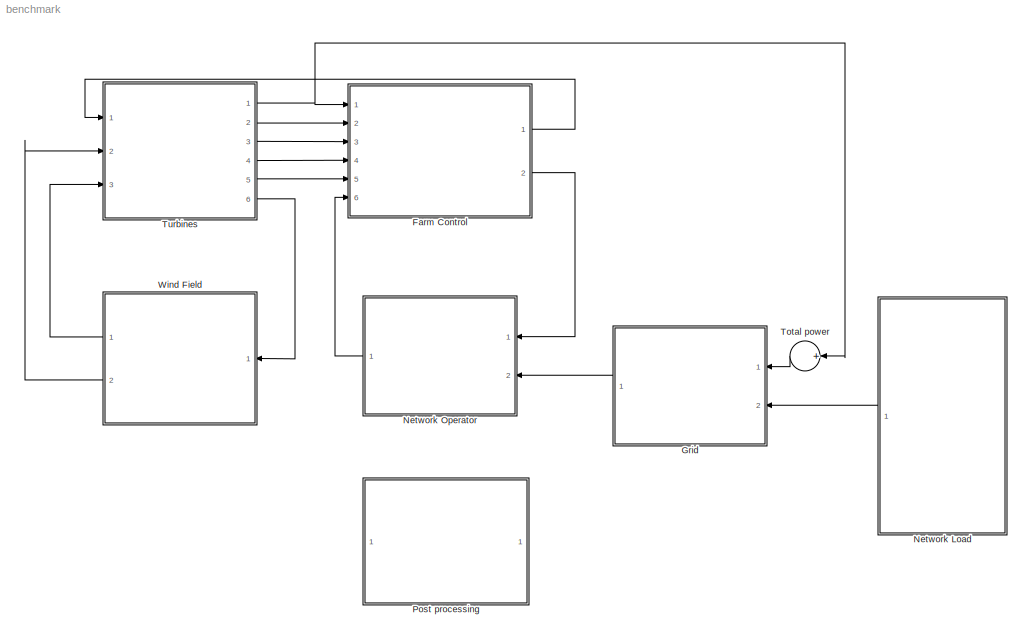
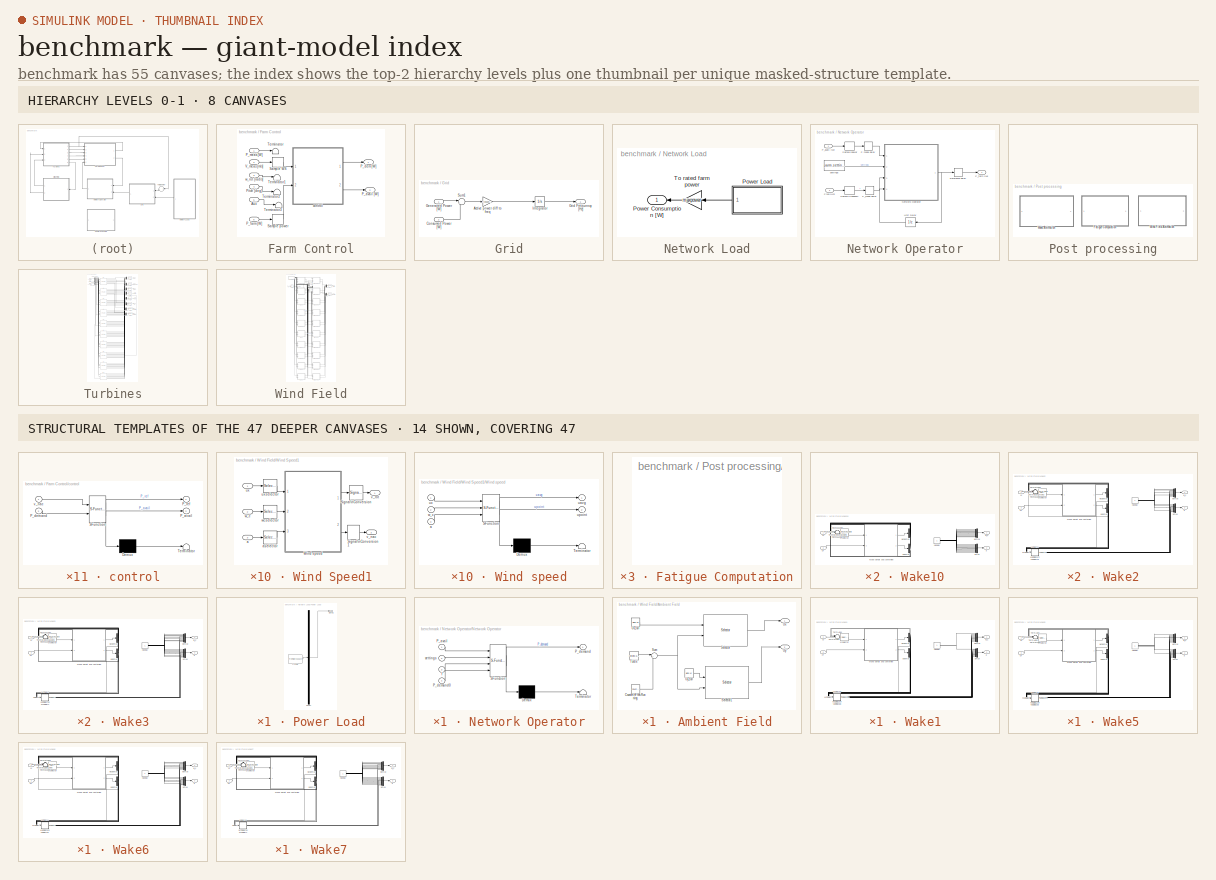
[diagram: thumbnail index - top-2 hierarchy levels (8 canvases) + 14 structural-template representatives of the remaining 47 canvases]
MODEL benchmark
KIND model
BLOCK [SubSystem] Farm Control
  Ports = [6, 2]
  RequestExecContextInheritance = off
  SID = 2
  UserData = DataTag0
  UserDataPersistent = on
BLOCK [Inport] Farm Control/ Aux
  IconDisplay = Port number
  Port = 5
  SID = 7
BLOCK [Outport] Farm Control/P_avail [W]
  IconDisplay = Port number
  Port = 2
  SID = 17
BLOCK [Outport] Farm Control/P_dem [W]
  IconDisplay = Port number
  SID = 16
BLOCK [Inport] Farm Control/P_farm [W]
  IconDisplay = Port number
  Port = 6
  SID = 8
BLOCK [Inport] Farm Control/P_meas [W]
  IconDisplay = Port number
  SID = 3
BLOCK [Inport] Farm Control/Pitch [deg]
  IconDisplay = Port number
  Port = 4
  SID = 6
BLOCK [ZeroOrderHold] Farm Control/Sample WS
  SID = 9
  SampleTime = CTs
BLOCK [ZeroOrderHold] Farm Control/Sample power
  SID = 10
  SampleTime = CTs
BLOCK [Terminator] Farm Control/Terminator
  SID = 11
BLOCK [Terminator] Farm Control/Terminator1
  SID = 12
BLOCK [Terminator] Farm Control/Terminator2
  SID = 13
BLOCK [Terminator] Farm Control/Terminator3
  SID = 14
BLOCK [Inport] Farm Control/V_meas [m//s]
  IconDisplay = Port number
  Port = 2
  SID = 4
BLOCK [SubSystem] Farm Control/control
  ErrorFcn = Stateflow.Translate.translate
  PermitHierarchicalResolution = ExplicitOnly
  Ports = [2, 2]
  RequestExecContextInheritance = off
  SFBlockType = MATLAB Function
  SID = 15
  TreatAsAtomicUnit = on
BLOCK [Demux] Farm Control/control/ Demux 
  Outputs = 1
  Ports = [1, 1]
  SID = 15::13
BLOCK [S-Function] Farm Control/control/ SFunction 
  EnableBusSupport = off
  FunctionName = sf_sfun
  Parameters = parm
  PortCounts = [2 3]
  Ports = [2, 3]
  SFcnIsStateOwnerBlock = off
  SFunctionDeploymentMode = off
  SID = 15::12
  Tag = Stateflow S-Function 21
BLOCK [Terminator] Farm Control/control/ Terminator 
  SID = 15::14
BLOCK [Outport] Farm Control/control/P_avail
  IconDisplay = Port number
  Port = 2
  SID = 15::7
BLOCK [Inport] Farm Control/control/P_demand
  IconDisplay = Port number
  Port = 2
  SID = 15::2
BLOCK [Outport] Farm Control/control/P_ref
  IconDisplay = Port number
  SID = 15::6
BLOCK [Inport] Farm Control/control/v_nac
  IconDisplay = Port number
  SID = 15::1
BLOCK [Inport] Farm Control/w_rot [rad//s]
  IconDisplay = Port number
  Port = 3
  SID = 5
BLOCK [SubSystem] Grid
  Ports = [2, 1]
  RequestExecContextInheritance = off
  SID = 18
BLOCK [Gain] Grid/Active power diff to freq
  Gain = frequencygain
  OutDataTypeStr = Inherit: Inherit via internal rule
  ParamDataTypeStr = Inherit: Inherit via internal rule
  SID = 21
  SaturateOnIntegerOverflow = off
BLOCK [Inport] Grid/Consumed Power [W]
  IconDisplay = Port number
  Port = 2
  SID = 20
BLOCK [Inport] Grid/Generated Power [W]
  IconDisplay = Port number
  SID = 19
BLOCK [Outport] Grid/Grid Frequency [Hz]
  IconDisplay = Port number
  SID = 24
BLOCK [Integrator] Grid/Integrator
  InitialCondition = 50
  LimitOutput = on
  LowerSaturationLimit = 0
  Ports = [1, 1]
  SID = 22
  UpperSaturationLimit = 100
BLOCK [Sum] Grid/Sum1
  IconShape = round
  InputSameDT = off
  Inputs = |+-
  OutDataTypeStr = Inherit: Inherit via internal rule
  Ports = [2, 1]
  SID = 23
  SaturateOnIntegerOverflow = off
BLOCK [SubSystem] Network Load
  Ports = [0, 1]
  RequestExecContextInheritance = off
  SID = 25
BLOCK [Outport] Network Load/Power Consumption [W]
  IconDisplay = Port number
  SID = 28
BLOCK [SubSystem] Network Load/Power Load
  ClipboardFcn = sigbuilder_block('clipboard');
  CloseFcn = sigbuilder_block('close');
  ContinueFcn = sigbuilder_block('continue')
  CopyFcn = sigbuilder_block('copy');
  DeleteFcn = sigbuilder_block('delete');
  LoadFcn = sigbuilder_block('load');
  MaskHideContents = on
  ModelCloseFcn = sigbuilder_block('modelClose');
  NameChangeFcn = sigbuilder_block('namechange');
  OpenFcn = sigbuilder_block('open',[437.6 199.2 550.4 400 ]);
  PauseFcn = sigbuilder_block('pause')
  Ports = [0, 1]
  PreSaveFcn = sigbuilder_block('preSave');
  RequestExecContextInheritance = off
  SID = 26
  StartFcn = sigbuilder_block('start');
  StopFcn = sigbuilder_block('stop');
  Tag = STV Subsys
BLOCK [Demux] Network Load/Power Load/Demux
  Outputs = 1
  Ports = [1, 1]
  SID = 26:1
  Tag = STV Demux
BLOCK [FromWorkspace] Network Load/Power Load/FromWs
  SID = 26:2
  SampleTime = 0
  SigBuilderData = DataTag1
  Tag = STV FromWs
  VariableName = tuvar
  VnvData = DataTag2
  ZeroCross = on
BLOCK [Outport] Network Load/Power Load/Signal 1
  IconDisplay = Port number
  SID = 26:3
  Tag = STV Outport
BLOCK [Gain] Network Load/To rated farm power
  Gain = maxpower
  OutDataTypeStr = Inherit: Inherit via internal rule
  ParamDataTypeStr = Inherit: Inherit via internal rule
  SID = 27
  SaturateOnIntegerOverflow = off
BLOCK [SubSystem] Network Operator
  Ports = [2, 1]
  RequestExecContextInheritance = off
  SID = 29
BLOCK [TransportDelay] Network Operator/F_meas delay
  DelayTime = parm.delay
  Ports = [1, 1]
  SID = 32
BLOCK [Inport] Network Operator/Freq [Hz]
  IconDisplay = Port number
  Port = 2
  SID = 31
BLOCK [SubSystem] Network Operator/Network Operator
  ErrorFcn = Stateflow.Translate.translate
  PermitHierarchicalResolution = ExplicitOnly
  Ports = [4, 1]
  RequestExecContextInheritance = off
  SFBlockType = MATLAB Function
  SID = 33
  TreatAsAtomicUnit = on
BLOCK [Demux] Network Operator/Network Operator/ Demux 
  Outputs = 1
  Ports = [1, 1]
  SID = 33::14
BLOCK [S-Function] Network Operator/Network Operator/ SFunction 
  EnableBusSupport = off
  FunctionName = sf_sfun
  Parameters = parm
  PortCounts = [4 2]
  Ports = [4, 2]
  SFcnIsStateOwnerBlock = off
  SFunctionDeploymentMode = off
  SID = 33::13
  Tag = Stateflow S-Function 22
BLOCK [Terminator] Network Operator/Network Operator/ Terminator 
  SID = 33::15
BLOCK [Inport] Network Operator/Network Operator/P_avail
  IconDisplay = Port number
  SID = 33::1
BLOCK [Outport] Network Operator/Network Operator/P_demand
  IconDisplay = Port number
  SID = 33::8
BLOCK [Inport] Network Operator/Network Operator/P_demand0
  IconDisplay = Port number
  Port = 4
  SID = 33::4
BLOCK [Inport] Network Operator/Network Operator/f
  IconDisplay = Port number
  Port = 3
  SID = 33::3
BLOCK [Inport] Network Operator/Network Operator/settings
  IconDisplay = Port number
  Port = 2
  SID = 33::2
BLOCK [TransportDelay] Network Operator/P meas delay
  DelayTime = parm.delay
  Ports = [1, 1]
  SID = 34
BLOCK [Inport] Network Operator/P_avail [W]
  IconDisplay = Port number
  SID = 30
BLOCK [Outport] Network Operator/P_farm [W]
  IconDisplay = Port number
  SID = 40
BLOCK [TransportDelay] Network Operator/Reference delay
  DelayTime = .01
  Ports = [1, 1]
  SID = 35
BLOCK [ZeroOrderHold] Network Operator/Sample frequency
  SID = 36
  SampleTime = parm.Ts
BLOCK [ZeroOrderHold] Network Operator/Sample power
  SID = 37
  SampleTime = parm.Ts
BLOCK [UnitDelay] Network Operator/Unit Delay
  HasFrameUpgradeWarning = on
  SID = 38
  SampleTime = parm.Ts
BLOCK [Constant] Network Operator/settings
  OutDataTypeStr = double
  SID = 39
  SampleTime = parm.Ts
  Value = parm.settings
BLOCK [SubSystem] Post processing
  Ports = []
  RequestExecContextInheritance = off
  SID = 41
BLOCK [SubSystem] Post processing/Fatigue Computation
  OpenFcn = fatigue=fatiguegui(logsout);
  Ports = []
  RequestExecContextInheritance = off
  SID = 42
BLOCK [SubSystem] Post processing/Wake Animation
  OpenFcn = sys=bdroot(gcb);             \ncreate_wakeanim(sys,logsout);
  Ports = []
  RequestExecContextInheritance = off
  SID = 43
BLOCK [SubSystem] Post processing/Wind Field Animation
  OpenFcn = sys=bdroot(gcb);\nwindanim(sys,logsout);
  Ports = []
  RequestExecContextInheritance = off
  SID = 44
BLOCK [Sum] Total power
  InputSameDT = off
  Inputs = +
  OutDataTypeStr = Inherit: Inherit via internal rule
  Ports = [1, 1]
  SID = 45
  SaturateOnIntegerOverflow = off
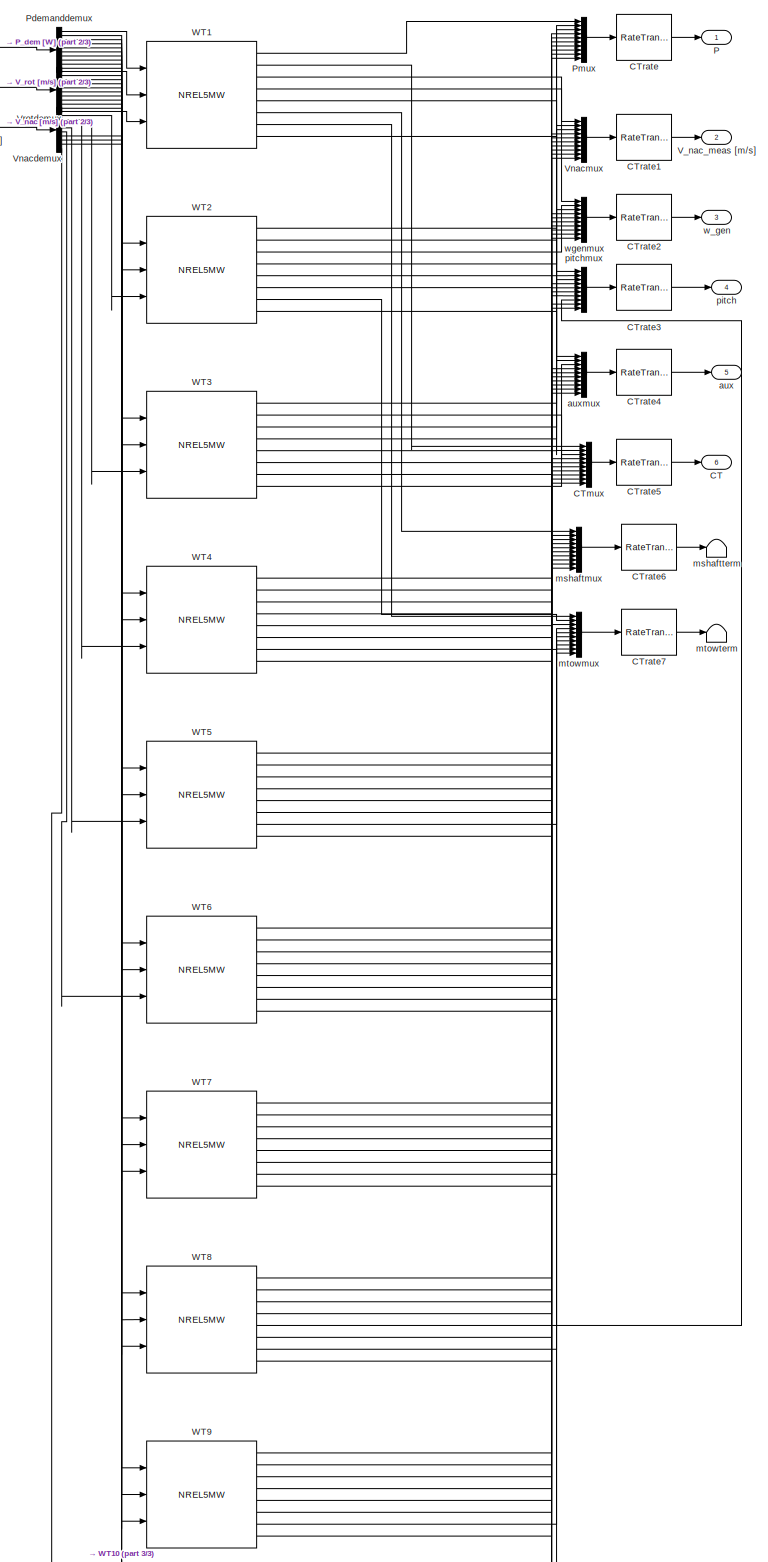
[diagram: Turbines - part 1/3, most of the canvas]
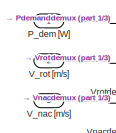
[diagram: Turbines - part 2/3, top left region]
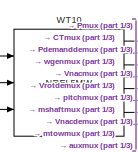
[diagram: Turbines - part 3/3, bottom left region]
BLOCK [SubSystem] Turbines
  LoadFcn = p=get_param(gcb,'UserData');                                                                                                                                            \n%If not compatible                                                                                                                                                      \n                                                            ...<+1133ch>
  Ports = [3, 6]
  RequestExecContextInheritance = off
  SID = 46
  UserData = DataTag3
  UserDataPersistent = on
BLOCK [Outport] Turbines/CT
  IconDisplay = Port number
  Port = 6
  SID = 76
BLOCK [Mux] Turbines/CTmux
  DisplayOption = bar
  Inputs = 10
  Ports = [10, 1]
  SID = 50
BLOCK [RateTransition] Turbines/CTrate
  Deterministic = off
  OutPortSampleTime = TTs
  SID = 51
BLOCK [RateTransition] Turbines/CTrate1
  Deterministic = off
  OutPortSampleTime = TTs
  SID = 52
BLOCK [RateTransition] Turbines/CTrate2
  Deterministic = off
  OutPortSampleTime = TTs
  SID = 53
BLOCK [RateTransition] Turbines/CTrate3
  Deterministic = off
  OutPortSampleTime = TTs
  SID = 54
BLOCK [RateTransition] Turbines/CTrate4
  Deterministic = off
  OutPortSampleTime = TTs
  SID = 55
BLOCK [RateTransition] Turbines/CTrate5
  Deterministic = off
  OutPortSampleTime = TTs
  SID = 56
BLOCK [RateTransition] Turbines/CTrate6
  Deterministic = off
  OutPortSampleTime = TTs
  SID = 57
BLOCK [RateTransition] Turbines/CTrate7
  Deterministic = off
  OutPortSampleTime = TTs
  SID = 58
BLOCK [Outport] Turbines/P
  IconDisplay = Port number
  SID = 71
BLOCK [Inport] Turbines/P_dem [W]
  IconDisplay = Port number
  SID = 47
BLOCK [Demux] Turbines/Pdemanddemux
  DisplayOption = bar
  Outputs = 10
  Ports = [1, 10]
  SID = 59
BLOCK [Mux] Turbines/Pmux
  DisplayOption = bar
  Inputs = 10
  Ports = [10, 1]
  SID = 60
BLOCK [Inport] Turbines/V_nac [m//s]
  IconDisplay = Port number
  Port = 3
  SID = 49
BLOCK [Outport] Turbines/V_nac_meas [m//s]
  IconDisplay = Port number
  Port = 2
  SID = 72
BLOCK [Inport] Turbines/V_rot [m//s]
  IconDisplay = Port number
  Port = 2
  SID = 48
BLOCK [Demux] Turbines/Vnacdemux
  DisplayOption = bar
  Outputs = 10
  Ports = [1, 10]
  SID = 61
BLOCK [Mux] Turbines/Vnacmux
  DisplayOption = bar
  Inputs = 10
  Ports = [10, 1]
  SID = 62
BLOCK [Demux] Turbines/Vrotdemux
  DisplayOption = bar
  Outputs = 10
  Ports = [1, 10]
  SID = 63
BLOCK [Reference] Turbines/WT1  REF=libturbines/NREL5MW  (lib defined in mdl_90190a676d21, slx_8b4198d95370)
  Ports = [3, 8]
  SID = 99
  SourceBlock = libturbines/NREL5MW
  SourceType = Wind Turbine
  UserData = DataTag4
  UserDataPersistent = on
  auto = off
  beta_ini = 0
  torq_ini = 0
  w_gen_ini = 50
BLOCK [Reference] Turbines/WT10  REF=libturbines/NREL5MW  (lib defined in mdl_90190a676d21, slx_8b4198d95370)
  Ports = [3, 8]
  SID = 108
  SourceBlock = libturbines/NREL5MW
  SourceType = Wind Turbine
  UserData = DataTag5
  UserDataPersistent = on
  auto = off
  beta_ini = 0
  torq_ini = 0
  w_gen_ini = 50
BLOCK [Reference] Turbines/WT2  REF=libturbines/NREL5MW  (lib defined in mdl_90190a676d21, slx_8b4198d95370)
  Ports = [3, 8]
  SID = 100
  SourceBlock = libturbines/NREL5MW
  SourceType = Wind Turbine
  UserData = DataTag6
  UserDataPersistent = on
  auto = off
  beta_ini = 0
  torq_ini = 0
  w_gen_ini = 50
BLOCK [Reference] Turbines/WT3  REF=libturbines/NREL5MW  (lib defined in mdl_90190a676d21, slx_8b4198d95370)
  Ports = [3, 8]
  SID = 101
  SourceBlock = libturbines/NREL5MW
  SourceType = Wind Turbine
  UserData = DataTag7
  UserDataPersistent = on
  auto = off
  beta_ini = 0
  torq_ini = 0
  w_gen_ini = 50
BLOCK [Reference] Turbines/WT4  REF=libturbines/NREL5MW  (lib defined in mdl_90190a676d21, slx_8b4198d95370)
  Ports = [3, 8]
  SID = 102
  SourceBlock = libturbines/NREL5MW
  SourceType = Wind Turbine
  UserData = DataTag8
  UserDataPersistent = on
  auto = off
  beta_ini = 0
  torq_ini = 0
  w_gen_ini = 50
BLOCK [Reference] Turbines/WT5  REF=libturbines/NREL5MW  (lib defined in mdl_90190a676d21, slx_8b4198d95370)
  Ports = [3, 8]
  SID = 103
  SourceBlock = libturbines/NREL5MW
  SourceType = Wind Turbine
  UserData = DataTag9
  UserDataPersistent = on
  auto = off
  beta_ini = 0
  torq_ini = 0
  w_gen_ini = 50
BLOCK [Reference] Turbines/WT6  REF=libturbines/NREL5MW  (lib defined in mdl_90190a676d21, slx_8b4198d95370)
  Ports = [3, 8]
  SID = 104
  SourceBlock = libturbines/NREL5MW
  SourceType = Wind Turbine
  UserData = DataTag10
  UserDataPersistent = on
  auto = off
  beta_ini = 0
  torq_ini = 0
  w_gen_ini = 50
BLOCK [Reference] Turbines/WT7  REF=libturbines/NREL5MW  (lib defined in mdl_90190a676d21, slx_8b4198d95370)
  Ports = [3, 8]
  SID = 105
  SourceBlock = libturbines/NREL5MW
  SourceType = Wind Turbine
  UserData = DataTag11
  UserDataPersistent = on
  auto = off
  beta_ini = 0
  torq_ini = 0
  w_gen_ini = 50
BLOCK [Reference] Turbines/WT8  REF=libturbines/NREL5MW  (lib defined in mdl_90190a676d21, slx_8b4198d95370)
  Ports = [3, 8]
  SID = 106
  SourceBlock = libturbines/NREL5MW
  SourceType = Wind Turbine
  UserData = DataTag12
  UserDataPersistent = on
  auto = off
  beta_ini = 0
  torq_ini = 0
  w_gen_ini = 50
BLOCK [Reference] Turbines/WT9  REF=libturbines/NREL5MW  (lib defined in mdl_90190a676d21, slx_8b4198d95370)
  Ports = [3, 8]
  SID = 107
  SourceBlock = libturbines/NREL5MW
  SourceType = Wind Turbine
  UserData = DataTag13
  UserDataPersistent = on
  auto = off
  beta_ini = 0
  torq_ini = 0
  w_gen_ini = 50
BLOCK [Outport] Turbines/aux
  IconDisplay = Port number
  Port = 5
  SID = 75
BLOCK [Mux] Turbines/auxmux
  DisplayOption = bar
  Inputs = 10
  Ports = [10, 1]
  SID = 64
BLOCK [Mux] Turbines/mshaftmux
  DisplayOption = bar
  Inputs = 10
  Ports = [10, 1]
  SID = 65
BLOCK [Terminator] Turbines/mshaftterm
  SID = 66
BLOCK [Mux] Turbines/mtowmux
  DisplayOption = bar
  Inputs = 10
  Ports = [10, 1]
  SID = 67
BLOCK [Terminator] Turbines/mtowterm
  SID = 68
BLOCK [Outport] Turbines/pitch
  IconDisplay = Port number
  Port = 4
  SID = 74
BLOCK [Mux] Turbines/pitchmux
  DisplayOption = bar
  Inputs = 10
  Ports = [10, 1]
  SID = 69
BLOCK [Outport] Turbines/w_gen
  IconDisplay = Port number
  Port = 3
  SID = 73
BLOCK [Mux] Turbines/wgenmux
  DisplayOption = bar
  Inputs = 10
  Ports = [10, 1]
  SID = 70
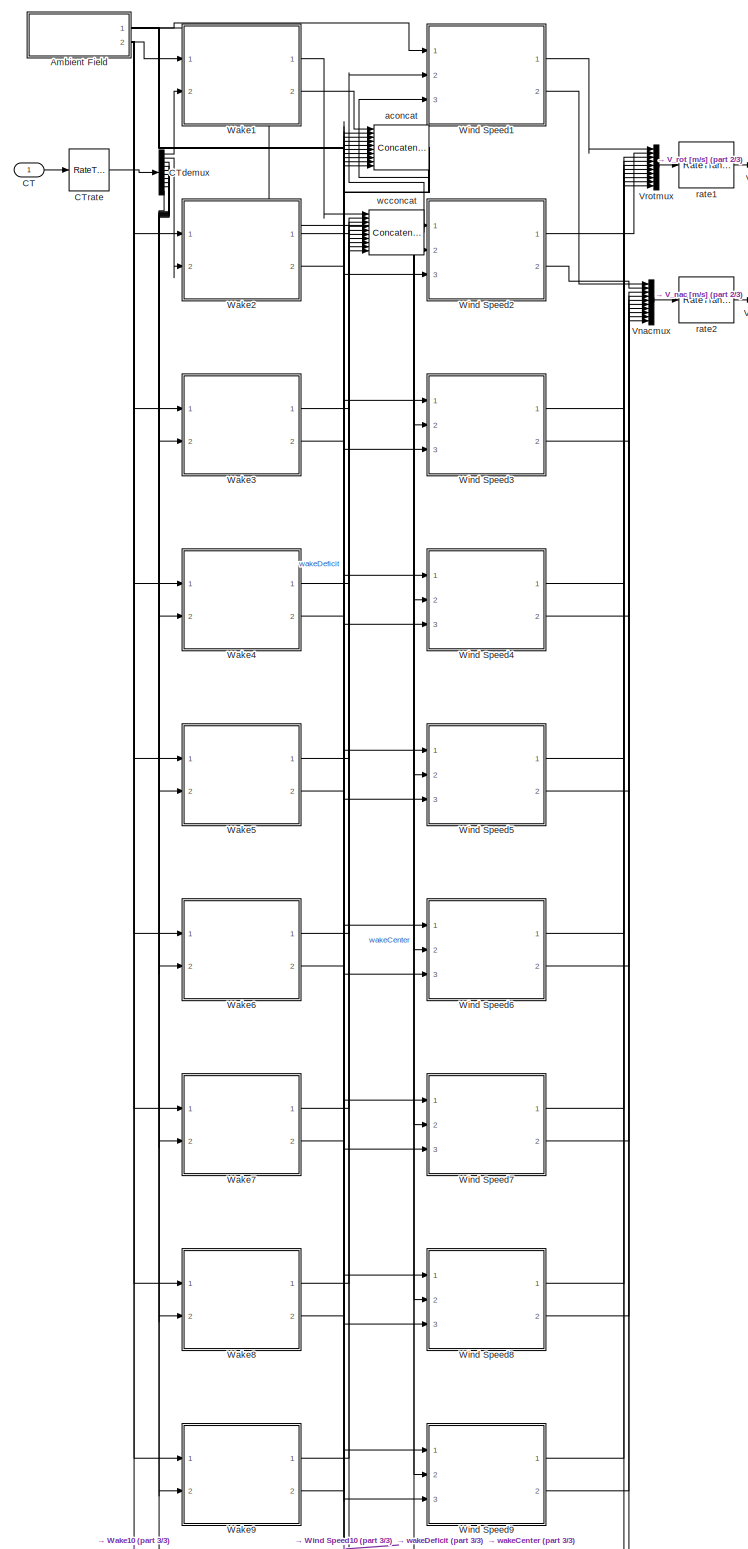
[diagram: Wind Field - part 1/3, most of the canvas]
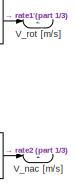
[diagram: Wind Field - part 2/3, top right region]
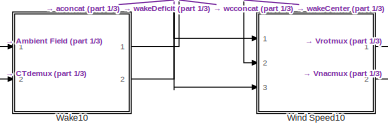
[diagram: Wind Field - part 3/3, bottom center region]
BLOCK [SubSystem] Wind Field
  OpenFcn = [wfile,wpath,wfidx]=uigetfile('*.mat','Select a Wind Data File');                                                                                                                                                                                                                                                                                              \nif isequal(wfile,0) || isequal(wpath,0)        ...<+15547ch>
  Ports = [1, 2]
  RequestExecContextInheritance = off
  SID = 77
BLOCK [SubSystem] Wind Field/Ambient Field
  Ports = [0, 2]
  RequestExecContextInheritance = off
  SID = 79
  UserData = DataTag14
  UserDataPersistent = on
BLOCK [Reference] Wind Field/Ambient Field/Counter\nFree-Running  REF=simulink/Sources/Counter\nFree-Running
  NumBits = 32
  Ports = [0, 1]
  SID = 80
  SourceBlock = simulink/Sources/Counter\nFree-Running
  SourceProductBaseCode = SL
  SourceProductName = Simulink
  SourceType = Counter Free-Running
  tsamp = wind.Ts
BLOCK [Selector] Wind Field/Ambient Field/Selector
  IndexOptions = Select all,Index vector (port)
  Indices = [1 3],1
  InputPortWidth = 3
  NumberOfDimensions = 2
  OutputSizes = 1,1
  Ports = [2, 1]
  SID = 81
BLOCK [Selector] Wind Field/Ambient Field/Selector1
  IndexOptions = Select all,Index vector (port)
  Indices = [1 3],1
  InputPortWidth = 3
  NumberOfDimensions = 2
  OutputSizes = 1,1
  Ports = [2, 1]
  SID = 82
BLOCK [Sum] Wind Field/Ambient Field/Sum
  IconShape = round
  InputSameDT = off
  Inputs = |++
  OutDataTypeStr = Inherit: Inherit via internal rule
  Ports = [2, 1]
  SID = 83
  SaturateOnIntegerOverflow = off
BLOCK [Constant] Wind Field/Ambient Field/Turb x
  SID = 84
  Value = ceil(wind.grid.xsize/wind.grid.size)-wind.xgrids
BLOCK [Outport] Wind Field/Ambient Field/Ux
  IconDisplay = Port number
  SID = 87
BLOCK [Constant] Wind Field/Ambient Field/Ux_full
  SID = 85
  Value = wind.Ux
BLOCK [Outport] Wind Field/Ambient Field/Uy
  IconDisplay = Port number
  Port = 2
  SID = 88
BLOCK [Constant] Wind Field/Ambient Field/Uy_full
  SID = 86
  Value = wind.Uy
BLOCK [Inport] Wind Field/CT
  IconDisplay = Port number
  SID = 78
BLOCK [Demux] Wind Field/CTdemux
  DisplayOption = bar
  Outputs = 10
  Ports = [1, 10]
  SID = 89
BLOCK [RateTransition] Wind Field/CTrate
  Deterministic = off
  OutPortSampleTime = 1
  SID = 90
BLOCK [Outport] Wind Field/V_nac [m//s]
  IconDisplay = Port number
  SID = 97
BLOCK [Outport] Wind Field/V_rot [m//s]
  IconDisplay = Port number
  Port = 2
  SID = 98
BLOCK [Mux] Wind Field/Vnacmux
  DisplayOption = bar
  Inputs = 10
  Ports = [10, 1]
  SID = 91
BLOCK [Mux] Wind Field/Vrotmux
  DisplayOption = bar
  Inputs = 10
  Ports = [10, 1]
  SID = 92
BLOCK [SubSystem] Wind Field/Wake1
  Ports = [2, 2]
  RequestExecContextInheritance = off
  SID = 109
  UserData = DataTag15
  UserDataPersistent = on
BLOCK [Inport] Wind Field/Wake1/CT
  IconDisplay = Port number
  Port = 2
  SID = 111
BLOCK [Constant] Wind Field/Wake1/Nodelay
  SID = 112
BLOCK [Terminator] Wind Field/Wake1/TermAde1
  SID = 133
BLOCK [Terminator] Wind Field/Wake1/TermWcde1
  SID = 134
BLOCK [Delay] Wind Field/Wake1/WCDelay10
  DelayLength = 120
  InitialCondition = 1000
  InputPortMap = u0
  Ports = [1, 1]
  SID = 152
  SampleTime = 1
BLOCK [Delay] Wind Field/Wake1/WCDelay2
  DelayLength = 40
  InitialCondition = 1000
  InputPortMap = u0
  Ports = [1, 1]
  SID = 136
  SampleTime = 1
BLOCK [Delay] Wind Field/Wake1/WCDelay3
  DelayLength = 80
  InitialCondition = 1000
  InputPortMap = u0
  Ports = [1, 1]
  SID = 138
  SampleTime = 1
BLOCK [Delay] Wind Field/Wake1/WCDelay4
  DelayLength = 120
  InitialCondition = 1000
  InputPortMap = u0
  Ports = [1, 1]
  SID = 140
  SampleTime = 1
BLOCK [Delay] Wind Field/Wake1/WCDelay5
  DelayLength = 20
  InitialCondition = 1000
  InputPortMap = u0
  Ports = [1, 1]
  SID = 142
  SampleTime = 1
BLOCK [Delay] Wind Field/Wake1/WCDelay6
  DelayLength = 60
  InitialCondition = 1000
  InputPortMap = u0
  Ports = [1, 1]
  SID = 144
  SampleTime = 1
BLOCK [Delay] Wind Field/Wake1/WCDelay7
  DelayLength = 100
  InitialCondition = 1000
  InputPortMap = u0
  Ports = [1, 1]
  SID = 146
  SampleTime = 1
BLOCK [Delay] Wind Field/Wake1/WCDelay8
  DelayLength = 40
  InitialCondition = 1000
  InputPortMap = u0
  Ports = [1, 1]
  SID = 148
  SampleTime = 1
BLOCK [Delay] Wind Field/Wake1/WCDelay9
  DelayLength = 80
  InitialCondition = 1000
  InputPortMap = u0
  Ports = [1, 1]
  SID = 150
  SampleTime = 1
BLOCK [SubSystem] Wind Field/Wake1/Wake deficit and centerline
  ErrorFcn = Stateflow.Translate.translate
  PermitHierarchicalResolution = ExplicitOnly
  Ports = [2, 2]
  RequestExecContextInheritance = off
  SFBlockType = MATLAB Function
  SID = 113
  TreatAsAtomicUnit = on
BLOCK [Demux] Wind Field/Wake1/Wake deficit and centerline/ Demux 
  Outputs = 1
  Ports = [1, 1]
  SID = 113::82
BLOCK [S-Function] Wind Field/Wake1/Wake deficit and centerline/ SFunction 
  EnableBusSupport = off
  FunctionName = sf_sfun
  Parameters = p
  PortCounts = [2 3]
  Ports = [2, 3]
  SFcnIsStateOwnerBlock = off
  SFunctionDeploymentMode = off
  SID = 113::81
  Tag = Stateflow S-Function 3
BLOCK [Terminator] Wind Field/Wake1/Wake deficit and centerline/ Terminator 
  SID = 113::83
BLOCK [Inport] Wind Field/Wake1/Wake deficit and centerline/CT
  IconDisplay = Port number
  Port = 2
  SID = 113::2
BLOCK [Outport] Wind Field/Wake1/Wake deficit and centerline/a
  IconDisplay = Port number
  Port = 2
  SID = 113::7
BLOCK [Inport] Wind Field/Wake1/Wake deficit and centerline/uy
  IconDisplay = Port number
  SID = 113::1
BLOCK [Outport] Wind Field/Wake1/Wake deficit and centerline/w_c
  IconDisplay = Port number
  SID = 113::6
BLOCK [Outport] Wind Field/Wake1/a
  IconDisplay = Port number
  Port = 2
  SID = 120
BLOCK [Delay] Wind Field/Wake1/aDelay10
  DelayLength = 120
  InitialCondition = 1
  InputPortMap = u0
  Ports = [1, 1]
  SID = 151
  SampleTime = 1
BLOCK [Delay] Wind Field/Wake1/aDelay2
  DelayLength = 40
  InitialCondition = 1
  InputPortMap = u0
  Ports = [1, 1]
  SID = 135
  SampleTime = 1
BLOCK [Delay] Wind Field/Wake1/aDelay3
  DelayLength = 80
  InitialCondition = 1
  InputPortMap = u0
  Ports = [1, 1]
  SID = 137
  SampleTime = 1
BLOCK [Delay] Wind Field/Wake1/aDelay4
  DelayLength = 120
  InitialCondition = 1
  InputPortMap = u0
  Ports = [1, 1]
  SID = 139
  SampleTime = 1
BLOCK [Delay] Wind Field/Wake1/aDelay5
  DelayLength = 20
  InitialCondition = 1
  InputPortMap = u0
  Ports = [1, 1]
  SID = 141
  SampleTime = 1
BLOCK [Delay] Wind Field/Wake1/aDelay6
  DelayLength = 60
  InitialCondition = 1
  InputPortMap = u0
  Ports = [1, 1]
  SID = 143
  SampleTime = 1
BLOCK [Delay] Wind Field/Wake1/aDelay7
  DelayLength = 100
  InitialCondition = 1
  InputPortMap = u0
  Ports = [1, 1]
  SID = 145
  SampleTime = 1
BLOCK [Delay] Wind Field/Wake1/aDelay8
  DelayLength = 40
  InitialCondition = 1
  InputPortMap = u0
  Ports = [1, 1]
  SID = 147
  SampleTime = 1
BLOCK [Delay] Wind Field/Wake1/aDelay9
  DelayLength = 80
  InitialCondition = 1
  InputPortMap = u0
  Ports = [1, 1]
  SID = 149
  SampleTime = 1
BLOCK [Demux] Wind Field/Wake1/ademux
  DisplayOption = bar
  Outputs = 10
  Ports = [1, 10]
  SID = 114
BLOCK [Mux] Wind Field/Wake1/amux
  DisplayOption = bar
  Inputs = 10
  Ports = [10, 1]
  SID = 115
BLOCK [Inport] Wind Field/Wake1/uy
  IconDisplay = Port number
  SID = 110
BLOCK [Selector] Wind Field/Wake1/uyselector
  IndexOptions = Select all,Index vector (dialog)
  Indices = [1 3],p.wt.num
  InputPortWidth = 3
  NumberOfDimensions = 2
  OutputSizes = 1,1
  Ports = [1, 1]
  SID = 116
BLOCK [Outport] Wind Field/Wake1/w_c
  IconDisplay = Port number
  SID = 119
BLOCK [Demux] Wind Field/Wake1/wcdemux
  DisplayOption = bar
  Outputs = 10
  Ports = [1, 10]
  SID = 117
BLOCK [Mux] Wind Field/Wake1/wcmux
  DisplayOption = bar
  Inputs = 10
  Ports = [10, 1]
  SID = 118
BLOCK [SubSystem] Wind Field/Wake10
  Ports = [2, 2]
  RequestExecContextInheritance = off
  SID = 505
  UserData = DataTag16
  UserDataPersistent = on
BLOCK [Inport] Wind Field/Wake10/CT
  IconDisplay = Port number
  Port = 2
  SID = 507
BLOCK [Constant] Wind Field/Wake10/Nodelay
  SID = 508
BLOCK [Terminator] Wind Field/Wake10/TermAde1
  SID = 529
BLOCK [Terminator] Wind Field/Wake10/TermAde10
  SID = 547
BLOCK [Terminator] Wind Field/Wake10/TermAde2
  SID = 531
BLOCK [Terminator] Wind Field/Wake10/TermAde3
  SID = 533
BLOCK [Terminator] Wind Field/Wake10/TermAde4
  SID = 535
BLOCK [Terminator] Wind Field/Wake10/TermAde5
  SID = 537
BLOCK [Terminator] Wind Field/Wake10/TermAde6
  SID = 539
BLOCK [Terminator] Wind Field/Wake10/TermAde7
  SID = 541
BLOCK [Terminator] Wind Field/Wake10/TermAde8
  SID = 543
BLOCK [Terminator] Wind Field/Wake10/TermAde9
  SID = 545
BLOCK [Terminator] Wind Field/Wake10/TermWcde1
  SID = 530
BLOCK [Terminator] Wind Field/Wake10/TermWcde10
  SID = 548
BLOCK [Terminator] Wind Field/Wake10/TermWcde2
  SID = 532
BLOCK [Terminator] Wind Field/Wake10/TermWcde3
  SID = 534
BLOCK [Terminator] Wind Field/Wake10/TermWcde4
  SID = 536
BLOCK [Terminator] Wind Field/Wake10/TermWcde5
  SID = 538
BLOCK [Terminator] Wind Field/Wake10/TermWcde6
  SID = 540
BLOCK [Terminator] Wind Field/Wake10/TermWcde7
  SID = 542
BLOCK [Terminator] Wind Field/Wake10/TermWcde8
  SID = 544
BLOCK [Terminator] Wind Field/Wake10/TermWcde9
  SID = 546
BLOCK [SubSystem] Wind Field/Wake10/Wake deficit and centerline
  ErrorFcn = Stateflow.Translate.translate
  PermitHierarchicalResolution = ExplicitOnly
  Ports = [2, 2]
  RequestExecContextInheritance = off
  SFBlockType = MATLAB Function
  SID = 509
  TreatAsAtomicUnit = on
BLOCK [Demux] Wind Field/Wake10/Wake deficit and centerline/ Demux 
  Outputs = 1
  Ports = [1, 1]
  SID = 509::82
BLOCK [S-Function] Wind Field/Wake10/Wake deficit and centerline/ SFunction 
  EnableBusSupport = off
  FunctionName = sf_sfun
  Parameters = p
  PortCounts = [2 3]
  Ports = [2, 3]
  SFcnIsStateOwnerBlock = off
  SFunctionDeploymentMode = off
  SID = 509::81
  Tag = Stateflow S-Function 19
BLOCK [Terminator] Wind Field/Wake10/Wake deficit and centerline/ Terminator 
  SID = 509::83
BLOCK [Inport] Wind Field/Wake10/Wake deficit and centerline/CT
  IconDisplay = Port number
  Port = 2
  SID = 509::2
BLOCK [Outport] Wind Field/Wake10/Wake deficit and centerline/a
  IconDisplay = Port number
  Port = 2
  SID = 509::7
BLOCK [Inport] Wind Field/Wake10/Wake deficit and centerline/uy
  IconDisplay = Port number
  SID = 509::1
BLOCK [Outport] Wind Field/Wake10/Wake deficit and centerline/w_c
  IconDisplay = Port number
  SID = 509::6
BLOCK [Outport] Wind Field/Wake10/a
  IconDisplay = Port number
  Port = 2
  SID = 516
BLOCK [Demux] Wind Field/Wake10/ademux
  DisplayOption = bar
  Outputs = 10
  Ports = [1, 10]
  SID = 510
BLOCK [Mux] Wind Field/Wake10/amux
  DisplayOption = bar
  Inputs = 10
  Ports = [10, 1]
  SID = 511
BLOCK [Inport] Wind Field/Wake10/uy
  IconDisplay = Port number
  SID = 506
BLOCK [Selector] Wind Field/Wake10/uyselector
  IndexOptions = Select all,Index vector (dialog)
  Indices = [1 3],p.wt.num
  InputPortWidth = 3
  NumberOfDimensions = 2
  OutputSizes = 1,1
  Ports = [1, 1]
  SID = 512
BLOCK [Outport] Wind Field/Wake10/w_c
  IconDisplay = Port number
  SID = 515
BLOCK [Demux] Wind Field/Wake10/wcdemux
  DisplayOption = bar
  Outputs = 10
  Ports = [1, 10]
  SID = 513
BLOCK [Mux] Wind Field/Wake10/wcmux
  DisplayOption = bar
  Inputs = 10
  Ports = [10, 1]
  SID = 514
BLOCK [SubSystem] Wind Field/Wake2
  Ports = [2, 2]
  RequestExecContextInheritance = off
  SID = 153
  UserData = DataTag17
  UserDataPersistent = on
BLOCK [Inport] Wind Field/Wake2/CT
  IconDisplay = Port number
  Port = 2
  SID = 155
BLOCK [Constant] Wind Field/Wake2/Nodelay
  SID = 156
BLOCK [Terminator] Wind Field/Wake2/TermAde1
  SID = 177
BLOCK [Terminator] Wind Field/Wake2/TermAde2
  SID = 179
BLOCK [Terminator] Wind Field/Wake2/TermAde5
  SID = 185
BLOCK [Terminator] Wind Field/Wake2/TermAde8
  SID = 191
BLOCK [Terminator] Wind Field/Wake2/TermWcde1
  SID = 178
BLOCK [Terminator] Wind Field/Wake2/TermWcde2
  SID = 180
BLOCK [Terminator] Wind Field/Wake2/TermWcde5
  SID = 186
BLOCK [Terminator] Wind Field/Wake2/TermWcde8
  SID = 192
BLOCK [Delay] Wind Field/Wake2/WCDelay10
  DelayLength = 80
  InitialCondition = 1000
  InputPortMap = u0
  Ports = [1, 1]
  SID = 196
  SampleTime = 1
BLOCK [Delay] Wind Field/Wake2/WCDelay3
  DelayLength = 40
  InitialCondition = 1000
  InputPortMap = u0
  Ports = [1, 1]
  SID = 182
  SampleTime = 1
BLOCK [Delay] Wind Field/Wake2/WCDelay4
  DelayLength = 80
  InitialCondition = 1000
  InputPortMap = u0
  Ports = [1, 1]
  SID = 184
  SampleTime = 1
BLOCK [Delay] Wind Field/Wake2/WCDelay6
  DelayLength = 20
  InitialCondition = 1000
  InputPortMap = u0
  Ports = [1, 1]
  SID = 188
  SampleTime = 1
BLOCK [Delay] Wind Field/Wake2/WCDelay7
  DelayLength = 60
  InitialCondition = 1000
  InputPortMap = u0
  Ports = [1, 1]
  SID = 190
  SampleTime = 1
BLOCK [Delay] Wind Field/Wake2/WCDelay9
  DelayLength = 40
  InitialCondition = 1000
  InputPortMap = u0
  Ports = [1, 1]
  SID = 194
  SampleTime = 1
BLOCK [SubSystem] Wind Field/Wake2/Wake deficit and centerline
  ErrorFcn = Stateflow.Translate.translate
  PermitHierarchicalResolution = ExplicitOnly
  Ports = [2, 2]
  RequestExecContextInheritance = off
  SFBlockType = MATLAB Function
  SID = 157
  TreatAsAtomicUnit = on
BLOCK [Demux] Wind Field/Wake2/Wake deficit and centerline/ Demux 
  Outputs = 1
  Ports = [1, 1]
  SID = 157::82
BLOCK [S-Function] Wind Field/Wake2/Wake deficit and centerline/ SFunction 
  EnableBusSupport = off
  FunctionName = sf_sfun
  Parameters = p
  PortCounts = [2 3]
  Ports = [2, 3]
  SFcnIsStateOwnerBlock = off
  SFunctionDeploymentMode = off
  SID = 157::81
  Tag = Stateflow S-Function 1
BLOCK [Terminator] Wind Field/Wake2/Wake deficit and centerline/ Terminator 
  SID = 157::83
BLOCK [Inport] Wind Field/Wake2/Wake deficit and centerline/CT
  IconDisplay = Port number
  Port = 2
  SID = 157::2
BLOCK [Outport] Wind Field/Wake2/Wake deficit and centerline/a
  IconDisplay = Port number
  Port = 2
  SID = 157::7
BLOCK [Inport] Wind Field/Wake2/Wake deficit and centerline/uy
  IconDisplay = Port number
  SID = 157::1
BLOCK [Outport] Wind Field/Wake2/Wake deficit and centerline/w_c
  IconDisplay = Port number
  SID = 157::6
BLOCK [Outport] Wind Field/Wake2/a
  IconDisplay = Port number
  Port = 2
  SID = 164
BLOCK [Delay] Wind Field/Wake2/aDelay10
  DelayLength = 80
  InitialCondition = 1
  InputPortMap = u0
  Ports = [1, 1]
  SID = 195
  SampleTime = 1
BLOCK [Delay] Wind Field/Wake2/aDelay3
  DelayLength = 40
  InitialCondition = 1
  InputPortMap = u0
  Ports = [1, 1]
  SID = 181
  SampleTime = 1
BLOCK [Delay] Wind Field/Wake2/aDelay4
  DelayLength = 80
  InitialCondition = 1
  InputPortMap = u0
  Ports = [1, 1]
  SID = 183
  SampleTime = 1
BLOCK [Delay] Wind Field/Wake2/aDelay6
  DelayLength = 20
  InitialCondition = 1
  InputPortMap = u0
  Ports = [1, 1]
  SID = 187
  SampleTime = 1
BLOCK [Delay] Wind Field/Wake2/aDelay7
  DelayLength = 60
  InitialCondition = 1
  InputPortMap = u0
  Ports = [1, 1]
  SID = 189
  SampleTime = 1
BLOCK [Delay] Wind Field/Wake2/aDelay9
  DelayLength = 40
  InitialCondition = 1
  InputPortMap = u0
  Ports = [1, 1]
  SID = 193
  SampleTime = 1
BLOCK [Demux] Wind Field/Wake2/ademux
  DisplayOption = bar
  Outputs = 10
  Ports = [1, 10]
  SID = 158
BLOCK [Mux] Wind Field/Wake2/amux
  DisplayOption = bar
  Inputs = 10
  Ports = [10, 1]
  SID = 159
BLOCK [Inport] Wind Field/Wake2/uy
  IconDisplay = Port number
  SID = 154
BLOCK [Selector] Wind Field/Wake2/uyselector
  IndexOptions = Select all,Index vector (dialog)
  Indices = [1 3],p.wt.num
  InputPortWidth = 3
  NumberOfDimensions = 2
  OutputSizes = 1,1
  Ports = [1, 1]
  SID = 160
BLOCK [Outport] Wind Field/Wake2/w_c
  IconDisplay = Port number
  SID = 163
BLOCK [Demux] Wind Field/Wake2/wcdemux
  DisplayOption = bar
  Outputs = 10
  Ports = [1, 10]
  SID = 161
BLOCK [Mux] Wind Field/Wake2/wcmux
  DisplayOption = bar
  Inputs = 10
  Ports = [10, 1]
  SID = 162
BLOCK [SubSystem] Wind Field/Wake3
  Ports = [2, 2]
  RequestExecContextInheritance = off
  SID = 197
  UserData = DataTag18
  UserDataPersistent = on
BLOCK [Inport] Wind Field/Wake3/CT
  IconDisplay = Port number
  Port = 2
  SID = 199
BLOCK [Constant] Wind Field/Wake3/Nodelay
  SID = 200
BLOCK [Terminator] Wind Field/Wake3/TermAde1
  SID = 221
BLOCK [Terminator] Wind Field/Wake3/TermAde2
  SID = 223
BLOCK [Terminator] Wind Field/Wake3/TermAde3
  SID = 225
BLOCK [Terminator] Wind Field/Wake3/TermAde5
  SID = 229
BLOCK [Terminator] Wind Field/Wake3/TermAde6
  SID = 231
BLOCK [Terminator] Wind Field/Wake3/TermAde8
  SID = 235
BLOCK [Terminator] Wind Field/Wake3/TermAde9
  SID = 237
BLOCK [Terminator] Wind Field/Wake3/TermWcde1
  SID = 222
BLOCK [Terminator] Wind Field/Wake3/TermWcde2
  SID = 224
BLOCK [Terminator] Wind Field/Wake3/TermWcde3
  SID = 226
BLOCK [Terminator] Wind Field/Wake3/TermWcde5
  SID = 230
BLOCK [Terminator] Wind Field/Wake3/TermWcde6
  SID = 232
BLOCK [Terminator] Wind Field/Wake3/TermWcde8
  SID = 236
BLOCK [Terminator] Wind Field/Wake3/TermWcde9
  SID = 238
BLOCK [Delay] Wind Field/Wake3/WCDelay10
  DelayLength = 40
  InitialCondition = 1000
  InputPortMap = u0
  Ports = [1, 1]
  SID = 240
  SampleTime = 1
BLOCK [Delay] Wind Field/Wake3/WCDelay4
  DelayLength = 40
  InitialCondition = 1000
  InputPortMap = u0
  Ports = [1, 1]
  SID = 228
  SampleTime = 1
BLOCK [Delay] Wind Field/Wake3/WCDelay7
  DelayLength = 20
  InitialCondition = 1000
  InputPortMap = u0
  Ports = [1, 1]
  SID = 234
  SampleTime = 1
BLOCK [SubSystem] Wind Field/Wake3/Wake deficit and centerline
  ErrorFcn = Stateflow.Translate.translate
  PermitHierarchicalResolution = ExplicitOnly
  Ports = [2, 2]
  RequestExecContextInheritance = off
  SFBlockType = MATLAB Function
  SID = 201
  TreatAsAtomicUnit = on
BLOCK [Demux] Wind Field/Wake3/Wake deficit and centerline/ Demux 
  Outputs = 1
  Ports = [1, 1]
  SID = 201::82
BLOCK [S-Function] Wind Field/Wake3/Wake deficit and centerline/ SFunction 
  EnableBusSupport = off
  FunctionName = sf_sfun
  Parameters = p
  PortCounts = [2 3]
  Ports = [2, 3]
  SFcnIsStateOwnerBlock = off
  SFunctionDeploymentMode = off
  SID = 201::81
  Tag = Stateflow S-Function 5
BLOCK [Terminator] Wind Field/Wake3/Wake deficit and centerline/ Terminator 
  SID = 201::83
BLOCK [Inport] Wind Field/Wake3/Wake deficit and centerline/CT
  IconDisplay = Port number
  Port = 2
  SID = 201::2
BLOCK [Outport] Wind Field/Wake3/Wake deficit and centerline/a
  IconDisplay = Port number
  Port = 2
  SID = 201::7
BLOCK [Inport] Wind Field/Wake3/Wake deficit and centerline/uy
  IconDisplay = Port number
  SID = 201::1
BLOCK [Outport] Wind Field/Wake3/Wake deficit and centerline/w_c
  IconDisplay = Port number
  SID = 201::6
BLOCK [Outport] Wind Field/Wake3/a
  IconDisplay = Port number
  Port = 2
  SID = 208
BLOCK [Delay] Wind Field/Wake3/aDelay10
  DelayLength = 40
  InitialCondition = 1
  InputPortMap = u0
  Ports = [1, 1]
  SID = 239
  SampleTime = 1
BLOCK [Delay] Wind Field/Wake3/aDelay4
  DelayLength = 40
  InitialCondition = 1
  InputPortMap = u0
  Ports = [1, 1]
  SID = 227
  SampleTime = 1
BLOCK [Delay] Wind Field/Wake3/aDelay7
  DelayLength = 20
  InitialCondition = 1
  InputPortMap = u0
  Ports = [1, 1]
  SID = 233
  SampleTime = 1
BLOCK [Demux] Wind Field/Wake3/ademux
  DisplayOption = bar
  Outputs = 10
  Ports = [1, 10]
  SID = 202
BLOCK [Mux] Wind Field/Wake3/amux
  DisplayOption = bar
  Inputs = 10
  Ports = [10, 1]
  SID = 203
BLOCK [Inport] Wind Field/Wake3/uy
  IconDisplay = Port number
  SID = 198
BLOCK [Selector] Wind Field/Wake3/uyselector
  IndexOptions = Select all,Index vector (dialog)
  Indices = [1 3],p.wt.num
  InputPortWidth = 3
  NumberOfDimensions = 2
  OutputSizes = 1,1
  Ports = [1, 1]
  SID = 204
BLOCK [Outport] Wind Field/Wake3/w_c
  IconDisplay = Port number
  SID = 207
BLOCK [Demux] Wind Field/Wake3/wcdemux
  DisplayOption = bar
  Outputs = 10
  Ports = [1, 10]
  SID = 205
BLOCK [Mux] Wind Field/Wake3/wcmux
  DisplayOption = bar
  Inputs = 10
  Ports = [10, 1]
  SID = 206
BLOCK [SubSystem] Wind Field/Wake4
  Ports = [2, 2]
  RequestExecContextInheritance = off
  SID = 241
  UserData = DataTag19
  UserDataPersistent = on
BLOCK [Inport] Wind Field/Wake4/CT
  IconDisplay = Port number
  Port = 2
  SID = 243
BLOCK [Constant] Wind Field/Wake4/Nodelay
  SID = 244
BLOCK [Terminator] Wind Field/Wake4/TermAde1
  SID = 265
BLOCK [Terminator] Wind Field/Wake4/TermAde10
  SID = 283
BLOCK [Terminator] Wind Field/Wake4/TermAde2
  SID = 267
BLOCK [Terminator] Wind Field/Wake4/TermAde3
  SID = 269
BLOCK [Terminator] Wind Field/Wake4/TermAde4
  SID = 271
BLOCK [Terminator] Wind Field/Wake4/TermAde5
  SID = 273
BLOCK [Terminator] Wind Field/Wake4/TermAde6
  SID = 275
BLOCK [Terminator] Wind Field/Wake4/TermAde7
  SID = 277
BLOCK [Terminator] Wind Field/Wake4/TermAde8
  SID = 279
BLOCK [Terminator] Wind Field/Wake4/TermAde9
  SID = 281
BLOCK [Terminator] Wind Field/Wake4/TermWcde1
  SID = 266
BLOCK [Terminator] Wind Field/Wake4/TermWcde10
  SID = 284
BLOCK [Terminator] Wind Field/Wake4/TermWcde2
  SID = 268
BLOCK [Terminator] Wind Field/Wake4/TermWcde3
  SID = 270
BLOCK [Terminator] Wind Field/Wake4/TermWcde4
  SID = 272
BLOCK [Terminator] Wind Field/Wake4/TermWcde5
  SID = 274
BLOCK [Terminator] Wind Field/Wake4/TermWcde6
  SID = 276
BLOCK [Terminator] Wind Field/Wake4/TermWcde7
  SID = 278
BLOCK [Terminator] Wind Field/Wake4/TermWcde8
  SID = 280
BLOCK [Terminator] Wind Field/Wake4/TermWcde9
  SID = 282
BLOCK [SubSystem] Wind Field/Wake4/Wake deficit and centerline
  ErrorFcn = Stateflow.Translate.translate
  PermitHierarchicalResolution = ExplicitOnly
  Ports = [2, 2]
  RequestExecContextInheritance = off
  SFBlockType = MATLAB Function
  SID = 245
  TreatAsAtomicUnit = on
BLOCK [Demux] Wind Field/Wake4/Wake deficit and centerline/ Demux 
  Outputs = 1
  Ports = [1, 1]
  SID = 245::82
BLOCK [S-Function] Wind Field/Wake4/Wake deficit and centerline/ SFunction 
  EnableBusSupport = off
  FunctionName = sf_sfun
  Parameters = p
  PortCounts = [2 3]
  Ports = [2, 3]
  SFcnIsStateOwnerBlock = off
  SFunctionDeploymentMode = off
  SID = 245::81
  Tag = Stateflow S-Function 7
BLOCK [Terminator] Wind Field/Wake4/Wake deficit and centerline/ Terminator 
  SID = 245::83
BLOCK [Inport] Wind Field/Wake4/Wake deficit and centerline/CT
  IconDisplay = Port number
  Port = 2
  SID = 245::2
BLOCK [Outport] Wind Field/Wake4/Wake deficit and centerline/a
  IconDisplay = Port number
  Port = 2
  SID = 245::7
BLOCK [Inport] Wind Field/Wake4/Wake deficit and centerline/uy
  IconDisplay = Port number
  SID = 245::1
BLOCK [Outport] Wind Field/Wake4/Wake deficit and centerline/w_c
  IconDisplay = Port number
  SID = 245::6
BLOCK [Outport] Wind Field/Wake4/a
  IconDisplay = Port number
  Port = 2
  SID = 252
BLOCK [Demux] Wind Field/Wake4/ademux
  DisplayOption = bar
  Outputs = 10
  Ports = [1, 10]
  SID = 246
BLOCK [Mux] Wind Field/Wake4/amux
  DisplayOption = bar
  Inputs = 10
  Ports = [10, 1]
  SID = 247
BLOCK [Inport] Wind Field/Wake4/uy
  IconDisplay = Port number
  SID = 242
BLOCK [Selector] Wind Field/Wake4/uyselector
  IndexOptions = Select all,Index vector (dialog)
  Indices = [1 3],p.wt.num
  InputPortWidth = 3
  NumberOfDimensions = 2
  OutputSizes = 1,1
  Ports = [1, 1]
  SID = 248
BLOCK [Outport] Wind Field/Wake4/w_c
  IconDisplay = Port number
  SID = 251
BLOCK [Demux] Wind Field/Wake4/wcdemux
  DisplayOption = bar
  Outputs = 10
  Ports = [1, 10]
  SID = 249
BLOCK [Mux] Wind Field/Wake4/wcmux
  DisplayOption = bar
  Inputs = 10
  Ports = [10, 1]
  SID = 250
BLOCK [SubSystem] Wind Field/Wake5
  Ports = [2, 2]
  RequestExecContextInheritance = off
  SID = 285
  UserData = DataTag20
  UserDataPersistent = on
BLOCK [Inport] Wind Field/Wake5/CT
  IconDisplay = Port number
  Port = 2
  SID = 287
BLOCK [Constant] Wind Field/Wake5/Nodelay
  SID = 288
BLOCK [Terminator] Wind Field/Wake5/TermAde1
  SID = 309
BLOCK [Terminator] Wind Field/Wake5/TermAde5
  SID = 317
BLOCK [Terminator] Wind Field/Wake5/TermWcde1
  SID = 310
BLOCK [Terminator] Wind Field/Wake5/TermWcde5
  SID = 318
BLOCK [Delay] Wind Field/Wake5/WCDelay10
  DelayLength = 100
  InitialCondition = 1500
  InputPortMap = u0
  Ports = [1, 1]
  SID = 328
  SampleTime = 1
BLOCK [Delay] Wind Field/Wake5/WCDelay2
  DelayLength = 20
  InitialCondition = 1500
  InputPortMap = u0
  Ports = [1, 1]
  SID = 312
  SampleTime = 1
BLOCK [Delay] Wind Field/Wake5/WCDelay3
  DelayLength = 60
  InitialCondition = 1500
  InputPortMap = u0
  Ports = [1, 1]
  SID = 314
  SampleTime = 1
BLOCK [Delay] Wind Field/Wake5/WCDelay4
  DelayLength = 100
  InitialCondition = 1500
  InputPortMap = u0
  Ports = [1, 1]
  SID = 316
  SampleTime = 1
BLOCK [Delay] Wind Field/Wake5/WCDelay6
  DelayLength = 40
  InitialCondition = 1500
  InputPortMap = u0
  Ports = [1, 1]
  SID = 320
  SampleTime = 1
BLOCK [Delay] Wind Field/Wake5/WCDelay7
  DelayLength = 80
  InitialCondition = 1500
  InputPortMap = u0
  Ports = [1, 1]
  SID = 322
  SampleTime = 1
BLOCK [Delay] Wind Field/Wake5/WCDelay8
  DelayLength = 20
  InitialCondition = 1500
  InputPortMap = u0
  Ports = [1, 1]
  SID = 324
  SampleTime = 1
BLOCK [Delay] Wind Field/Wake5/WCDelay9
  DelayLength = 60
  InitialCondition = 1500
  InputPortMap = u0
  Ports = [1, 1]
  SID = 326
  SampleTime = 1
BLOCK [SubSystem] Wind Field/Wake5/Wake deficit and centerline
  ErrorFcn = Stateflow.Translate.translate
  PermitHierarchicalResolution = ExplicitOnly
  Ports = [2, 2]
  RequestExecContextInheritance = off
  SFBlockType = MATLAB Function
  SID = 289
  TreatAsAtomicUnit = on
BLOCK [Demux] Wind Field/Wake5/Wake deficit and centerline/ Demux 
  Outputs = 1
  Ports = [1, 1]
  SID = 289::82
BLOCK [S-Function] Wind Field/Wake5/Wake deficit and centerline/ SFunction 
  EnableBusSupport = off
  FunctionName = sf_sfun
  Parameters = p
  PortCounts = [2 3]
  Ports = [2, 3]
  SFcnIsStateOwnerBlock = off
  SFunctionDeploymentMode = off
  SID = 289::81
  Tag = Stateflow S-Function 9
BLOCK [Terminator] Wind Field/Wake5/Wake deficit and centerline/ Terminator 
  SID = 289::83
BLOCK [Inport] Wind Field/Wake5/Wake deficit and centerline/CT
  IconDisplay = Port number
  Port = 2
  SID = 289::2
BLOCK [Outport] Wind Field/Wake5/Wake deficit and centerline/a
  IconDisplay = Port number
  Port = 2
  SID = 289::7
BLOCK [Inport] Wind Field/Wake5/Wake deficit and centerline/uy
  IconDisplay = Port number
  SID = 289::1
BLOCK [Outport] Wind Field/Wake5/Wake deficit and centerline/w_c
  IconDisplay = Port number
  SID = 289::6
BLOCK [Outport] Wind Field/Wake5/a
  IconDisplay = Port number
  Port = 2
  SID = 296
BLOCK [Delay] Wind Field/Wake5/aDelay10
  DelayLength = 100
  InitialCondition = 1
  InputPortMap = u0
  Ports = [1, 1]
  SID = 327
  SampleTime = 1
BLOCK [Delay] Wind Field/Wake5/aDelay2
  DelayLength = 20
  InitialCondition = 1
  InputPortMap = u0
  Ports = [1, 1]
  SID = 311
  SampleTime = 1
BLOCK [Delay] Wind Field/Wake5/aDelay3
  DelayLength = 60
  InitialCondition = 1
  InputPortMap = u0
  Ports = [1, 1]
  SID = 313
  SampleTime = 1
BLOCK [Delay] Wind Field/Wake5/aDelay4
  DelayLength = 100
  InitialCondition = 1
  InputPortMap = u0
  Ports = [1, 1]
  SID = 315
  SampleTime = 1
BLOCK [Delay] Wind Field/Wake5/aDelay6
  DelayLength = 40
  InitialCondition = 1
  InputPortMap = u0
  Ports = [1, 1]
  SID = 319
  SampleTime = 1
BLOCK [Delay] Wind Field/Wake5/aDelay7
  DelayLength = 80
  InitialCondition = 1
  InputPortMap = u0
  Ports = [1, 1]
  SID = 321
  SampleTime = 1
BLOCK [Delay] Wind Field/Wake5/aDelay8
  DelayLength = 20
  InitialCondition = 1
  InputPortMap = u0
  Ports = [1, 1]
  SID = 323
  SampleTime = 1
BLOCK [Delay] Wind Field/Wake5/aDelay9
  DelayLength = 60
  InitialCondition = 1
  InputPortMap = u0
  Ports = [1, 1]
  SID = 325
  SampleTime = 1
BLOCK [Demux] Wind Field/Wake5/ademux
  DisplayOption = bar
  Outputs = 10
  Ports = [1, 10]
  SID = 290
BLOCK [Mux] Wind Field/Wake5/amux
  DisplayOption = bar
  Inputs = 10
  Ports = [10, 1]
  SID = 291
BLOCK [Inport] Wind Field/Wake5/uy
  IconDisplay = Port number
  SID = 286
BLOCK [Selector] Wind Field/Wake5/uyselector
  IndexOptions = Select all,Index vector (dialog)
  Indices = [1 3],p.wt.num
  InputPortWidth = 3
  NumberOfDimensions = 2
  OutputSizes = 1,1
  Ports = [1, 1]
  SID = 292
BLOCK [Outport] Wind Field/Wake5/w_c
  IconDisplay = Port number
  SID = 295
BLOCK [Demux] Wind Field/Wake5/wcdemux
  DisplayOption = bar
  Outputs = 10
  Ports = [1, 10]
  SID = 293
BLOCK [Mux] Wind Field/Wake5/wcmux
  DisplayOption = bar
  Inputs = 10
  Ports = [10, 1]
  SID = 294
BLOCK [SubSystem] Wind Field/Wake6
  Ports = [2, 2]
  RequestExecContextInheritance = off
  SID = 329
  UserData = DataTag21
  UserDataPersistent = on
BLOCK [Inport] Wind Field/Wake6/CT
  IconDisplay = Port number
  Port = 2
  SID = 331
BLOCK [Constant] Wind Field/Wake6/Nodelay
  SID = 332
BLOCK [Terminator] Wind Field/Wake6/TermAde1
  SID = 353
BLOCK [Terminator] Wind Field/Wake6/TermAde2
  SID = 355
BLOCK [Terminator] Wind Field/Wake6/TermAde5
  SID = 361
BLOCK [Terminator] Wind Field/Wake6/TermAde6
  SID = 363
BLOCK [Terminator] Wind Field/Wake6/TermAde8
  SID = 367
BLOCK [Terminator] Wind Field/Wake6/TermWcde1
  SID = 354
BLOCK [Terminator] Wind Field/Wake6/TermWcde2
  SID = 356
BLOCK [Terminator] Wind Field/Wake6/TermWcde5
  SID = 362
BLOCK [Terminator] Wind Field/Wake6/TermWcde6
  SID = 364
BLOCK [Terminator] Wind Field/Wake6/TermWcde8
  SID = 368
BLOCK [Delay] Wind Field/Wake6/WCDelay10
  DelayLength = 60
  InitialCondition = 1500
  InputPortMap = u0
  Ports = [1, 1]
  SID = 372
  SampleTime = 1
BLOCK [Delay] Wind Field/Wake6/WCDelay3
  DelayLength = 20
  InitialCondition = 1500
  InputPortMap = u0
  Ports = [1, 1]
  SID = 358
  SampleTime = 1
BLOCK [Delay] Wind Field/Wake6/WCDelay4
  DelayLength = 60
  InitialCondition = 1500
  InputPortMap = u0
  Ports = [1, 1]
  SID = 360
  SampleTime = 1
BLOCK [Delay] Wind Field/Wake6/WCDelay7
  DelayLength = 40
  InitialCondition = 1500
  InputPortMap = u0
  Ports = [1, 1]
  SID = 366
  SampleTime = 1
BLOCK [Delay] Wind Field/Wake6/WCDelay9
  DelayLength = 20
  InitialCondition = 1500
  InputPortMap = u0
  Ports = [1, 1]
  SID = 370
  SampleTime = 1
BLOCK [SubSystem] Wind Field/Wake6/Wake deficit and centerline
  ErrorFcn = Stateflow.Translate.translate
  PermitHierarchicalResolution = ExplicitOnly
  Ports = [2, 2]
  RequestExecContextInheritance = off
  SFBlockType = MATLAB Function
  SID = 333
  TreatAsAtomicUnit = on
BLOCK [Demux] Wind Field/Wake6/Wake deficit and centerline/ Demux 
  Outputs = 1
  Ports = [1, 1]
  SID = 333::82
BLOCK [S-Function] Wind Field/Wake6/Wake deficit and centerline/ SFunction 
  EnableBusSupport = off
  FunctionName = sf_sfun
  Parameters = p
  PortCounts = [2 3]
  Ports = [2, 3]
  SFcnIsStateOwnerBlock = off
  SFunctionDeploymentMode = off
  SID = 333::81
  Tag = Stateflow S-Function 11
BLOCK [Terminator] Wind Field/Wake6/Wake deficit and centerline/ Terminator 
  SID = 333::83
BLOCK [Inport] Wind Field/Wake6/Wake deficit and centerline/CT
  IconDisplay = Port number
  Port = 2
  SID = 333::2
BLOCK [Outport] Wind Field/Wake6/Wake deficit and centerline/a
  IconDisplay = Port number
  Port = 2
  SID = 333::7
BLOCK [Inport] Wind Field/Wake6/Wake deficit and centerline/uy
  IconDisplay = Port number
  SID = 333::1
BLOCK [Outport] Wind Field/Wake6/Wake deficit and centerline/w_c
  IconDisplay = Port number
  SID = 333::6
BLOCK [Outport] Wind Field/Wake6/a
  IconDisplay = Port number
  Port = 2
  SID = 340
BLOCK [Delay] Wind Field/Wake6/aDelay10
  DelayLength = 60
  InitialCondition = 1
  InputPortMap = u0
  Ports = [1, 1]
  SID = 371
  SampleTime = 1
BLOCK [Delay] Wind Field/Wake6/aDelay3
  DelayLength = 20
  InitialCondition = 1
  InputPortMap = u0
  Ports = [1, 1]
  SID = 357
  SampleTime = 1
BLOCK [Delay] Wind Field/Wake6/aDelay4
  DelayLength = 60
  InitialCondition = 1
  InputPortMap = u0
  Ports = [1, 1]
  SID = 359
  SampleTime = 1
BLOCK [Delay] Wind Field/Wake6/aDelay7
  DelayLength = 40
  InitialCondition = 1
  InputPortMap = u0
  Ports = [1, 1]
  SID = 365
  SampleTime = 1
BLOCK [Delay] Wind Field/Wake6/aDelay9
  DelayLength = 20
  InitialCondition = 1
  InputPortMap = u0
  Ports = [1, 1]
  SID = 369
  SampleTime = 1
BLOCK [Demux] Wind Field/Wake6/ademux
  DisplayOption = bar
  Outputs = 10
  Ports = [1, 10]
  SID = 334
BLOCK [Mux] Wind Field/Wake6/amux
  DisplayOption = bar
  Inputs = 10
  Ports = [10, 1]
  SID = 335
BLOCK [Inport] Wind Field/Wake6/uy
  IconDisplay = Port number
  SID = 330
BLOCK [Selector] Wind Field/Wake6/uyselector
  IndexOptions = Select all,Index vector (dialog)
  Indices = [1 3],p.wt.num
  InputPortWidth = 3
  NumberOfDimensions = 2
  OutputSizes = 1,1
  Ports = [1, 1]
  SID = 336
BLOCK [Outport] Wind Field/Wake6/w_c
  IconDisplay = Port number
  SID = 339
BLOCK [Demux] Wind Field/Wake6/wcdemux
  DisplayOption = bar
  Outputs = 10
  Ports = [1, 10]
  SID = 337
BLOCK [Mux] Wind Field/Wake6/wcmux
  DisplayOption = bar
  Inputs = 10
  Ports = [10, 1]
  SID = 338
BLOCK [SubSystem] Wind Field/Wake7
  Ports = [2, 2]
  RequestExecContextInheritance = off
  SID = 373
  UserData = DataTag22
  UserDataPersistent = on
BLOCK [Inport] Wind Field/Wake7/CT
  IconDisplay = Port number
  Port = 2
  SID = 375
BLOCK [Constant] Wind Field/Wake7/Nodelay
  SID = 376
BLOCK [Terminator] Wind Field/Wake7/TermAde1
  SID = 397
BLOCK [Terminator] Wind Field/Wake7/TermAde2
  SID = 399
BLOCK [Terminator] Wind Field/Wake7/TermAde3
  SID = 401
BLOCK [Terminator] Wind Field/Wake7/TermAde5
  SID = 405
BLOCK [Terminator] Wind Field/Wake7/TermAde6
  SID = 407
BLOCK [Terminator] Wind Field/Wake7/TermAde7
  SID = 409
BLOCK [Terminator] Wind Field/Wake7/TermAde8
  SID = 411
BLOCK [Terminator] Wind Field/Wake7/TermAde9
  SID = 413
BLOCK [Terminator] Wind Field/Wake7/TermWcde1
  SID = 398
BLOCK [Terminator] Wind Field/Wake7/TermWcde2
  SID = 400
BLOCK [Terminator] Wind Field/Wake7/TermWcde3
  SID = 402
BLOCK [Terminator] Wind Field/Wake7/TermWcde5
  SID = 406
BLOCK [Terminator] Wind Field/Wake7/TermWcde6
  SID = 408
BLOCK [Terminator] Wind Field/Wake7/TermWcde7
  SID = 410
BLOCK [Terminator] Wind Field/Wake7/TermWcde8
  SID = 412
BLOCK [Terminator] Wind Field/Wake7/TermWcde9
  SID = 414
BLOCK [Delay] Wind Field/Wake7/WCDelay10
  DelayLength = 20
  InitialCondition = 1500
  InputPortMap = u0
  Ports = [1, 1]
  SID = 416
  SampleTime = 1
BLOCK [Delay] Wind Field/Wake7/WCDelay4
  DelayLength = 20
  InitialCondition = 1500
  InputPortMap = u0
  Ports = [1, 1]
  SID = 404
  SampleTime = 1
BLOCK [SubSystem] Wind Field/Wake7/Wake deficit and centerline
  ErrorFcn = Stateflow.Translate.translate
  PermitHierarchicalResolution = ExplicitOnly
  Ports = [2, 2]
  RequestExecContextInheritance = off
  SFBlockType = MATLAB Function
  SID = 377
  TreatAsAtomicUnit = on
BLOCK [Demux] Wind Field/Wake7/Wake deficit and centerline/ Demux 
  Outputs = 1
  Ports = [1, 1]
  SID = 377::82
BLOCK [S-Function] Wind Field/Wake7/Wake deficit and centerline/ SFunction 
  EnableBusSupport = off
  FunctionName = sf_sfun
  Parameters = p
  PortCounts = [2 3]
  Ports = [2, 3]
  SFcnIsStateOwnerBlock = off
  SFunctionDeploymentMode = off
  SID = 377::81
  Tag = Stateflow S-Function 13
BLOCK [Terminator] Wind Field/Wake7/Wake deficit and centerline/ Terminator 
  SID = 377::83
BLOCK [Inport] Wind Field/Wake7/Wake deficit and centerline/CT
  IconDisplay = Port number
  Port = 2
  SID = 377::2
BLOCK [Outport] Wind Field/Wake7/Wake deficit and centerline/a
  IconDisplay = Port number
  Port = 2
  SID = 377::7
BLOCK [Inport] Wind Field/Wake7/Wake deficit and centerline/uy
  IconDisplay = Port number
  SID = 377::1
BLOCK [Outport] Wind Field/Wake7/Wake deficit and centerline/w_c
  IconDisplay = Port number
  SID = 377::6
BLOCK [Outport] Wind Field/Wake7/a
  IconDisplay = Port number
  Port = 2
  SID = 384
BLOCK [Delay] Wind Field/Wake7/aDelay10
  DelayLength = 20
  InitialCondition = 1
  InputPortMap = u0
  Ports = [1, 1]
  SID = 415
  SampleTime = 1
BLOCK [Delay] Wind Field/Wake7/aDelay4
  DelayLength = 20
  InitialCondition = 1
  InputPortMap = u0
  Ports = [1, 1]
  SID = 403
  SampleTime = 1
BLOCK [Demux] Wind Field/Wake7/ademux
  DisplayOption = bar
  Outputs = 10
  Ports = [1, 10]
  SID = 378
BLOCK [Mux] Wind Field/Wake7/amux
  DisplayOption = bar
  Inputs = 10
  Ports = [10, 1]
  SID = 379
BLOCK [Inport] Wind Field/Wake7/uy
  IconDisplay = Port number
  SID = 374
BLOCK [Selector] Wind Field/Wake7/uyselector
  IndexOptions = Select all,Index vector (dialog)
  Indices = [1 3],p.wt.num
  InputPortWidth = 3
  NumberOfDimensions = 2
  OutputSizes = 1,1
  Ports = [1, 1]
  SID = 380
BLOCK [Outport] Wind Field/Wake7/w_c
  IconDisplay = Port number
  SID = 383
BLOCK [Demux] Wind Field/Wake7/wcdemux
  DisplayOption = bar
  Outputs = 10
  Ports = [1, 10]
  SID = 381
BLOCK [Mux] Wind Field/Wake7/wcmux
  DisplayOption = bar
  Inputs = 10
  Ports = [10, 1]
  SID = 382
BLOCK [SubSystem] Wind Field/Wake8
  Ports = [2, 2]
  RequestExecContextInheritance = off
  SID = 417
  UserData = DataTag23
  UserDataPersistent = on
BLOCK [Inport] Wind Field/Wake8/CT
  IconDisplay = Port number
  Port = 2
  SID = 419
BLOCK [Constant] Wind Field/Wake8/Nodelay
  SID = 420
BLOCK [Terminator] Wind Field/Wake8/TermAde1
  SID = 441
BLOCK [Terminator] Wind Field/Wake8/TermAde2
  SID = 443
BLOCK [Terminator] Wind Field/Wake8/TermAde5
  SID = 449
BLOCK [Terminator] Wind Field/Wake8/TermAde8
  SID = 455
BLOCK [Terminator] Wind Field/Wake8/TermWcde1
  SID = 442
BLOCK [Terminator] Wind Field/Wake8/TermWcde2
  SID = 444
BLOCK [Terminator] Wind Field/Wake8/TermWcde5
  SID = 450
BLOCK [Terminator] Wind Field/Wake8/TermWcde8
  SID = 456
BLOCK [Delay] Wind Field/Wake8/WCDelay10
  DelayLength = 80
  InitialCondition = 2000
  InputPortMap = u0
  Ports = [1, 1]
  SID = 460
  SampleTime = 1
BLOCK [Delay] Wind Field/Wake8/WCDelay3
  DelayLength = 40
  InitialCondition = 2000
  InputPortMap = u0
  Ports = [1, 1]
  SID = 446
  SampleTime = 1
BLOCK [Delay] Wind Field/Wake8/WCDelay4
  DelayLength = 80
  InitialCondition = 2000
  InputPortMap = u0
  Ports = [1, 1]
  SID = 448
  SampleTime = 1
BLOCK [Delay] Wind Field/Wake8/WCDelay6
  DelayLength = 20
  InitialCondition = 2000
  InputPortMap = u0
  Ports = [1, 1]
  SID = 452
  SampleTime = 1
BLOCK [Delay] Wind Field/Wake8/WCDelay7
  DelayLength = 60
  InitialCondition = 2000
  InputPortMap = u0
  Ports = [1, 1]
  SID = 454
  SampleTime = 1
BLOCK [Delay] Wind Field/Wake8/WCDelay9
  DelayLength = 40
  InitialCondition = 2000
  InputPortMap = u0
  Ports = [1, 1]
  SID = 458
  SampleTime = 1
BLOCK [SubSystem] Wind Field/Wake8/Wake deficit and centerline
  ErrorFcn = Stateflow.Translate.translate
  PermitHierarchicalResolution = ExplicitOnly
  Ports = [2, 2]
  RequestExecContextInheritance = off
  SFBlockType = MATLAB Function
  SID = 421
  TreatAsAtomicUnit = on
BLOCK [Demux] Wind Field/Wake8/Wake deficit and centerline/ Demux 
  Outputs = 1
  Ports = [1, 1]
  SID = 421::82
BLOCK [S-Function] Wind Field/Wake8/Wake deficit and centerline/ SFunction 
  EnableBusSupport = off
  FunctionName = sf_sfun
  Parameters = p
  PortCounts = [2 3]
  Ports = [2, 3]
  SFcnIsStateOwnerBlock = off
  SFunctionDeploymentMode = off
  SID = 421::81
  Tag = Stateflow S-Function 15
BLOCK [Terminator] Wind Field/Wake8/Wake deficit and centerline/ Terminator 
  SID = 421::83
BLOCK [Inport] Wind Field/Wake8/Wake deficit and centerline/CT
  IconDisplay = Port number
  Port = 2
  SID = 421::2
BLOCK [Outport] Wind Field/Wake8/Wake deficit and centerline/a
  IconDisplay = Port number
  Port = 2
  SID = 421::7
BLOCK [Inport] Wind Field/Wake8/Wake deficit and centerline/uy
  IconDisplay = Port number
  SID = 421::1
BLOCK [Outport] Wind Field/Wake8/Wake deficit and centerline/w_c
  IconDisplay = Port number
  SID = 421::6
BLOCK [Outport] Wind Field/Wake8/a
  IconDisplay = Port number
  Port = 2
  SID = 428
BLOCK [Delay] Wind Field/Wake8/aDelay10
  DelayLength = 80
  InitialCondition = 1
  InputPortMap = u0
  Ports = [1, 1]
  SID = 459
  SampleTime = 1
BLOCK [Delay] Wind Field/Wake8/aDelay3
  DelayLength = 40
  InitialCondition = 1
  InputPortMap = u0
  Ports = [1, 1]
  SID = 445
  SampleTime = 1
BLOCK [Delay] Wind Field/Wake8/aDelay4
  DelayLength = 80
  InitialCondition = 1
  InputPortMap = u0
  Ports = [1, 1]
  SID = 447
  SampleTime = 1
BLOCK [Delay] Wind Field/Wake8/aDelay6
  DelayLength = 20
  InitialCondition = 1
  InputPortMap = u0
  Ports = [1, 1]
  SID = 451
  SampleTime = 1
BLOCK [Delay] Wind Field/Wake8/aDelay7
  DelayLength = 60
  InitialCondition = 1
  InputPortMap = u0
  Ports = [1, 1]
  SID = 453
  SampleTime = 1
BLOCK [Delay] Wind Field/Wake8/aDelay9
  DelayLength = 40
  InitialCondition = 1
  InputPortMap = u0
  Ports = [1, 1]
  SID = 457
  SampleTime = 1
BLOCK [Demux] Wind Field/Wake8/ademux
  DisplayOption = bar
  Outputs = 10
  Ports = [1, 10]
  SID = 422
BLOCK [Mux] Wind Field/Wake8/amux
  DisplayOption = bar
  Inputs = 10
  Ports = [10, 1]
  SID = 423
BLOCK [Inport] Wind Field/Wake8/uy
  IconDisplay = Port number
  SID = 418
BLOCK [Selector] Wind Field/Wake8/uyselector
  IndexOptions = Select all,Index vector (dialog)
  Indices = [1 3],p.wt.num
  InputPortWidth = 3
  NumberOfDimensions = 2
  OutputSizes = 1,1
  Ports = [1, 1]
  SID = 424
BLOCK [Outport] Wind Field/Wake8/w_c
  IconDisplay = Port number
  SID = 427
BLOCK [Demux] Wind Field/Wake8/wcdemux
  DisplayOption = bar
  Outputs = 10
  Ports = [1, 10]
  SID = 425
BLOCK [Mux] Wind Field/Wake8/wcmux
  DisplayOption = bar
  Inputs = 10
  Ports = [10, 1]
  SID = 426
BLOCK [SubSystem] Wind Field/Wake9
  Ports = [2, 2]
  RequestExecContextInheritance = off
  SID = 461
  UserData = DataTag24
  UserDataPersistent = on
BLOCK [Inport] Wind Field/Wake9/CT
  IconDisplay = Port number
  Port = 2
  SID = 463
BLOCK [Constant] Wind Field/Wake9/Nodelay
  SID = 464
BLOCK [Terminator] Wind Field/Wake9/TermAde1
  SID = 485
BLOCK [Terminator] Wind Field/Wake9/TermAde2
  SID = 487
BLOCK [Terminator] Wind Field/Wake9/TermAde3
  SID = 489
BLOCK [Terminator] Wind Field/Wake9/TermAde5
  SID = 493
BLOCK [Terminator] Wind Field/Wake9/TermAde6
  SID = 495
BLOCK [Terminator] Wind Field/Wake9/TermAde8
  SID = 499
BLOCK [Terminator] Wind Field/Wake9/TermAde9
  SID = 501
BLOCK [Terminator] Wind Field/Wake9/TermWcde1
  SID = 486
BLOCK [Terminator] Wind Field/Wake9/TermWcde2
  SID = 488
BLOCK [Terminator] Wind Field/Wake9/TermWcde3
  SID = 490
BLOCK [Terminator] Wind Field/Wake9/TermWcde5
  SID = 494
BLOCK [Terminator] Wind Field/Wake9/TermWcde6
  SID = 496
BLOCK [Terminator] Wind Field/Wake9/TermWcde8
  SID = 500
BLOCK [Terminator] Wind Field/Wake9/TermWcde9
  SID = 502
BLOCK [Delay] Wind Field/Wake9/WCDelay10
  DelayLength = 40
  InitialCondition = 2000
  InputPortMap = u0
  Ports = [1, 1]
  SID = 504
  SampleTime = 1
BLOCK [Delay] Wind Field/Wake9/WCDelay4
  DelayLength = 40
  InitialCondition = 2000
  InputPortMap = u0
  Ports = [1, 1]
  SID = 492
  SampleTime = 1
BLOCK [Delay] Wind Field/Wake9/WCDelay7
  DelayLength = 20
  InitialCondition = 2000
  InputPortMap = u0
  Ports = [1, 1]
  SID = 498
  SampleTime = 1
BLOCK [SubSystem] Wind Field/Wake9/Wake deficit and centerline
  ErrorFcn = Stateflow.Translate.translate
  PermitHierarchicalResolution = ExplicitOnly
  Ports = [2, 2]
  RequestExecContextInheritance = off
  SFBlockType = MATLAB Function
  SID = 465
  TreatAsAtomicUnit = on
BLOCK [Demux] Wind Field/Wake9/Wake deficit and centerline/ Demux 
  Outputs = 1
  Ports = [1, 1]
  SID = 465::82
BLOCK [S-Function] Wind Field/Wake9/Wake deficit and centerline/ SFunction 
  EnableBusSupport = off
  FunctionName = sf_sfun
  Parameters = p
  PortCounts = [2 3]
  Ports = [2, 3]
  SFcnIsStateOwnerBlock = off
  SFunctionDeploymentMode = off
  SID = 465::81
  Tag = Stateflow S-Function 17
BLOCK [Terminator] Wind Field/Wake9/Wake deficit and centerline/ Terminator 
  SID = 465::83
BLOCK [Inport] Wind Field/Wake9/Wake deficit and centerline/CT
  IconDisplay = Port number
  Port = 2
  SID = 465::2
BLOCK [Outport] Wind Field/Wake9/Wake deficit and centerline/a
  IconDisplay = Port number
  Port = 2
  SID = 465::7
BLOCK [Inport] Wind Field/Wake9/Wake deficit and centerline/uy
  IconDisplay = Port number
  SID = 465::1
BLOCK [Outport] Wind Field/Wake9/Wake deficit and centerline/w_c
  IconDisplay = Port number
  SID = 465::6
BLOCK [Outport] Wind Field/Wake9/a
  IconDisplay = Port number
  Port = 2
  SID = 472
BLOCK [Delay] Wind Field/Wake9/aDelay10
  DelayLength = 40
  InitialCondition = 1
  InputPortMap = u0
  Ports = [1, 1]
  SID = 503
  SampleTime = 1
BLOCK [Delay] Wind Field/Wake9/aDelay4
  DelayLength = 40
  InitialCondition = 1
  InputPortMap = u0
  Ports = [1, 1]
  SID = 491
  SampleTime = 1
BLOCK [Delay] Wind Field/Wake9/aDelay7
  DelayLength = 20
  InitialCondition = 1
  InputPortMap = u0
  Ports = [1, 1]
  SID = 497
  SampleTime = 1
BLOCK [Demux] Wind Field/Wake9/ademux
  DisplayOption = bar
  Outputs = 10
  Ports = [1, 10]
  SID = 466
BLOCK [Mux] Wind Field/Wake9/amux
  DisplayOption = bar
  Inputs = 10
  Ports = [10, 1]
  SID = 467
BLOCK [Inport] Wind Field/Wake9/uy
  IconDisplay = Port number
  SID = 462
BLOCK [Selector] Wind Field/Wake9/uyselector
  IndexOptions = Select all,Index vector (dialog)
  Indices = [1 3],p.wt.num
  InputPortWidth = 3
  NumberOfDimensions = 2
  OutputSizes = 1,1
  Ports = [1, 1]
  SID = 468
BLOCK [Outport] Wind Field/Wake9/w_c
  IconDisplay = Port number
  SID = 471
BLOCK [Demux] Wind Field/Wake9/wcdemux
  DisplayOption = bar
  Outputs = 10
  Ports = [1, 10]
  SID = 469
BLOCK [Mux] Wind Field/Wake9/wcmux
  DisplayOption = bar
  Inputs = 10
  Ports = [10, 1]
  SID = 470
BLOCK [SubSystem] Wind Field/Wind Speed1
  Ports = [3, 2]
  RequestExecContextInheritance = off
  SID = 121
  UserData = DataTag25
  UserDataPersistent = on
BLOCK [SignalConversion] Wind Field/Wind Speed1/Signal\nConversion
  ConversionOutput = Contiguous copy
  OverrideOpt = off
  SID = 125
BLOCK [SignalConversion] Wind Field/Wind Speed1/Signal\nConversion1
  ConversionOutput = Contiguous copy
  OverrideOpt = off
  SID = 126
BLOCK [SubSystem] Wind Field/Wind Speed1/Wind speed
  ErrorFcn = Stateflow.Translate.translate
  PermitHierarchicalResolution = ExplicitOnly
  Ports = [3, 2]
  RequestExecContextInheritance = off
  SFBlockType = MATLAB Function
  SID = 127
  TreatAsAtomicUnit = on
BLOCK [Demux] Wind Field/Wind Speed1/Wind speed/ Demux 
  Outputs = 1
  Ports = [1, 1]
  SID = 127::82
BLOCK [S-Function] Wind Field/Wind Speed1/Wind speed/ SFunction 
  EnableBusSupport = off
  FunctionName = sf_sfun
  Parameters = p
  PortCounts = [3 3]
  Ports = [3, 3]
  SFcnIsStateOwnerBlock = off
  SFunctionDeploymentMode = off
  SID = 127::81
  Tag = Stateflow S-Function 4
BLOCK [Terminator] Wind Field/Wind Speed1/Wind speed/ Terminator 
  SID = 127::83
BLOCK [Inport] Wind Field/Wind Speed1/Wind speed/a
  IconDisplay = Port number
  Port = 3
  SID = 127::3
BLOCK [Outport] Wind Field/Wind Speed1/Wind speed/uavg
  IconDisplay = Port number
  SID = 127::7
BLOCK [Outport] Wind Field/Wind Speed1/Wind speed/upoint
  IconDisplay = Port number
  Port = 2
  SID = 127::8
BLOCK [Inport] Wind Field/Wind Speed1/Wind speed/ux
  IconDisplay = Port number
  SID = 127::1
BLOCK [Inport] Wind Field/Wind Speed1/Wind speed/w_c
  IconDisplay = Port number
  Port = 2
  SID = 127::2
BLOCK [Inport] Wind Field/Wind Speed1/a
  IconDisplay = Port number
  Port = 3
  SID = 124
BLOCK [Selector] Wind Field/Wind Speed1/aselector
  IndexOptions = Index vector (dialog),Select all
  Indices = p.wt.num,p.wt.num
  InputPortWidth = 3
  NumberOfDimensions = 2
  OutputSizes = 1,1
  Ports = [1, 1]
  SID = 128
BLOCK [Inport] Wind Field/Wind Speed1/ux
  IconDisplay = Port number
  SID = 122
BLOCK [Selector] Wind Field/Wind Speed1/uxselector
  IndexOptions = Select all,Index vector (dialog)
  Indices = [1 3],p.wt.num
  InputPortWidth = 3
  NumberOfDimensions = 2
  OutputSizes = 1,1
  Ports = [1, 1]
  SID = 129
BLOCK [Outport] Wind Field/Wind Speed1/v_nac
  IconDisplay = Port number
  Port = 2
  SID = 132
BLOCK [Outport] Wind Field/Wind Speed1/v_rot
  IconDisplay = Port number
  SID = 131
BLOCK [Inport] Wind Field/Wind Speed1/w_c
  IconDisplay = Port number
  Port = 2
  SID = 123
BLOCK [Selector] Wind Field/Wind Speed1/wcselector
  IndexOptions = Index vector (dialog),Select all
  Indices = p.wt.num,p.wt.num
  InputPortWidth = 3
  NumberOfDimensions = 2
  OutputSizes = 1,1
  Ports = [1, 1]
  SID = 130
BLOCK [SubSystem] Wind Field/Wind Speed10
  Ports = [3, 2]
  RequestExecContextInheritance = off
  SID = 517
  UserData = DataTag26
  UserDataPersistent = on
BLOCK [SignalConversion] Wind Field/Wind Speed10/Signal\nConversion
  ConversionOutput = Contiguous copy
  OverrideOpt = off
  SID = 521
BLOCK [SignalConversion] Wind Field/Wind Speed10/Signal\nConversion1
  ConversionOutput = Contiguous copy
  OverrideOpt = off
  SID = 522
BLOCK [SubSystem] Wind Field/Wind Speed10/Wind speed
  ErrorFcn = Stateflow.Translate.translate
  PermitHierarchicalResolution = ExplicitOnly
  Ports = [3, 2]
  RequestExecContextInheritance = off
  SFBlockType = MATLAB Function
  SID = 523
  TreatAsAtomicUnit = on
BLOCK [Demux] Wind Field/Wind Speed10/Wind speed/ Demux 
  Outputs = 1
  Ports = [1, 1]
  SID = 523::82
BLOCK [S-Function] Wind Field/Wind Speed10/Wind speed/ SFunction 
  EnableBusSupport = off
  FunctionName = sf_sfun
  Parameters = p
  PortCounts = [3 3]
  Ports = [3, 3]
  SFcnIsStateOwnerBlock = off
  SFunctionDeploymentMode = off
  SID = 523::81
  Tag = Stateflow S-Function 20
BLOCK [Terminator] Wind Field/Wind Speed10/Wind speed/ Terminator 
  SID = 523::83
BLOCK [Inport] Wind Field/Wind Speed10/Wind speed/a
  IconDisplay = Port number
  Port = 3
  SID = 523::3
BLOCK [Outport] Wind Field/Wind Speed10/Wind speed/uavg
  IconDisplay = Port number
  SID = 523::7
BLOCK [Outport] Wind Field/Wind Speed10/Wind speed/upoint
  IconDisplay = Port number
  Port = 2
  SID = 523::8
BLOCK [Inport] Wind Field/Wind Speed10/Wind speed/ux
  IconDisplay = Port number
  SID = 523::1
BLOCK [Inport] Wind Field/Wind Speed10/Wind speed/w_c
  IconDisplay = Port number
  Port = 2
  SID = 523::2
BLOCK [Inport] Wind Field/Wind Speed10/a
  IconDisplay = Port number
  Port = 3
  SID = 520
BLOCK [Selector] Wind Field/Wind Speed10/aselector
  IndexOptions = Index vector (dialog),Select all
  Indices = p.wt.num,p.wt.num
  InputPortWidth = 3
  NumberOfDimensions = 2
  OutputSizes = 1,1
  Ports = [1, 1]
  SID = 524
BLOCK [Inport] Wind Field/Wind Speed10/ux
  IconDisplay = Port number
  SID = 518
BLOCK [Selector] Wind Field/Wind Speed10/uxselector
  IndexOptions = Select all,Index vector (dialog)
  Indices = [1 3],p.wt.num
  InputPortWidth = 3
  NumberOfDimensions = 2
  OutputSizes = 1,1
  Ports = [1, 1]
  SID = 525
BLOCK [Outport] Wind Field/Wind Speed10/v_nac
  IconDisplay = Port number
  Port = 2
  SID = 528
BLOCK [Outport] Wind Field/Wind Speed10/v_rot
  IconDisplay = Port number
  SID = 527
BLOCK [Inport] Wind Field/Wind Speed10/w_c
  IconDisplay = Port number
  Port = 2
  SID = 519
BLOCK [Selector] Wind Field/Wind Speed10/wcselector
  IndexOptions = Index vector (dialog),Select all
  Indices = p.wt.num,p.wt.num
  InputPortWidth = 3
  NumberOfDimensions = 2
  OutputSizes = 1,1
  Ports = [1, 1]
  SID = 526
BLOCK [SubSystem] Wind Field/Wind Speed2
  Ports = [3, 2]
  RequestExecContextInheritance = off
  SID = 165
  UserData = DataTag27
  UserDataPersistent = on
BLOCK [SignalConversion] Wind Field/Wind Speed2/Signal\nConversion
  ConversionOutput = Contiguous copy
  OverrideOpt = off
  SID = 169
BLOCK [SignalConversion] Wind Field/Wind Speed2/Signal\nConversion1
  ConversionOutput = Contiguous copy
  OverrideOpt = off
  SID = 170
BLOCK [SubSystem] Wind Field/Wind Speed2/Wind speed
  ErrorFcn = Stateflow.Translate.translate
  PermitHierarchicalResolution = ExplicitOnly
  Ports = [3, 2]
  RequestExecContextInheritance = off
  SFBlockType = MATLAB Function
  SID = 171
  TreatAsAtomicUnit = on
BLOCK [Demux] Wind Field/Wind Speed2/Wind speed/ Demux 
  Outputs = 1
  Ports = [1, 1]
  SID = 171::82
BLOCK [S-Function] Wind Field/Wind Speed2/Wind speed/ SFunction 
  EnableBusSupport = off
  FunctionName = sf_sfun
  Parameters = p
  PortCounts = [3 3]
  Ports = [3, 3]
  SFcnIsStateOwnerBlock = off
  SFunctionDeploymentMode = off
  SID = 171::81
  Tag = Stateflow S-Function 2
BLOCK [Terminator] Wind Field/Wind Speed2/Wind speed/ Terminator 
  SID = 171::83
BLOCK [Inport] Wind Field/Wind Speed2/Wind speed/a
  IconDisplay = Port number
  Port = 3
  SID = 171::3
BLOCK [Outport] Wind Field/Wind Speed2/Wind speed/uavg
  IconDisplay = Port number
  SID = 171::7
BLOCK [Outport] Wind Field/Wind Speed2/Wind speed/upoint
  IconDisplay = Port number
  Port = 2
  SID = 171::8
BLOCK [Inport] Wind Field/Wind Speed2/Wind speed/ux
  IconDisplay = Port number
  SID = 171::1
BLOCK [Inport] Wind Field/Wind Speed2/Wind speed/w_c
  IconDisplay = Port number
  Port = 2
  SID = 171::2
BLOCK [Inport] Wind Field/Wind Speed2/a
  IconDisplay = Port number
  Port = 3
  SID = 168
BLOCK [Selector] Wind Field/Wind Speed2/aselector
  IndexOptions = Index vector (dialog),Select all
  Indices = p.wt.num,p.wt.num
  InputPortWidth = 3
  NumberOfDimensions = 2
  OutputSizes = 1,1
  Ports = [1, 1]
  SID = 172
BLOCK [Inport] Wind Field/Wind Speed2/ux
  IconDisplay = Port number
  SID = 166
BLOCK [Selector] Wind Field/Wind Speed2/uxselector
  IndexOptions = Select all,Index vector (dialog)
  Indices = [1 3],p.wt.num
  InputPortWidth = 3
  NumberOfDimensions = 2
  OutputSizes = 1,1
  Ports = [1, 1]
  SID = 173
BLOCK [Outport] Wind Field/Wind Speed2/v_nac
  IconDisplay = Port number
  Port = 2
  SID = 176
BLOCK [Outport] Wind Field/Wind Speed2/v_rot
  IconDisplay = Port number
  SID = 175
BLOCK [Inport] Wind Field/Wind Speed2/w_c
  IconDisplay = Port number
  Port = 2
  SID = 167
BLOCK [Selector] Wind Field/Wind Speed2/wcselector
  IndexOptions = Index vector (dialog),Select all
  Indices = p.wt.num,p.wt.num
  InputPortWidth = 3
  NumberOfDimensions = 2
  OutputSizes = 1,1
  Ports = [1, 1]
  SID = 174
BLOCK [SubSystem] Wind Field/Wind Speed3
  Ports = [3, 2]
  RequestExecContextInheritance = off
  SID = 209
  UserData = DataTag28
  UserDataPersistent = on
BLOCK [SignalConversion] Wind Field/Wind Speed3/Signal\nConversion
  ConversionOutput = Contiguous copy
  OverrideOpt = off
  SID = 213
BLOCK [SignalConversion] Wind Field/Wind Speed3/Signal\nConversion1
  ConversionOutput = Contiguous copy
  OverrideOpt = off
  SID = 214
BLOCK [SubSystem] Wind Field/Wind Speed3/Wind speed
  ErrorFcn = Stateflow.Translate.translate
  PermitHierarchicalResolution = ExplicitOnly
  Ports = [3, 2]
  RequestExecContextInheritance = off
  SFBlockType = MATLAB Function
  SID = 215
  TreatAsAtomicUnit = on
BLOCK [Demux] Wind Field/Wind Speed3/Wind speed/ Demux 
  Outputs = 1
  Ports = [1, 1]
  SID = 215::82
BLOCK [S-Function] Wind Field/Wind Speed3/Wind speed/ SFunction 
  EnableBusSupport = off
  FunctionName = sf_sfun
  Parameters = p
  PortCounts = [3 3]
  Ports = [3, 3]
  SFcnIsStateOwnerBlock = off
  SFunctionDeploymentMode = off
  SID = 215::81
  Tag = Stateflow S-Function 6
BLOCK [Terminator] Wind Field/Wind Speed3/Wind speed/ Terminator 
  SID = 215::83
BLOCK [Inport] Wind Field/Wind Speed3/Wind speed/a
  IconDisplay = Port number
  Port = 3
  SID = 215::3
BLOCK [Outport] Wind Field/Wind Speed3/Wind speed/uavg
  IconDisplay = Port number
  SID = 215::7
BLOCK [Outport] Wind Field/Wind Speed3/Wind speed/upoint
  IconDisplay = Port number
  Port = 2
  SID = 215::8
BLOCK [Inport] Wind Field/Wind Speed3/Wind speed/ux
  IconDisplay = Port number
  SID = 215::1
BLOCK [Inport] Wind Field/Wind Speed3/Wind speed/w_c
  IconDisplay = Port number
  Port = 2
  SID = 215::2
BLOCK [Inport] Wind Field/Wind Speed3/a
  IconDisplay = Port number
  Port = 3
  SID = 212
BLOCK [Selector] Wind Field/Wind Speed3/aselector
  IndexOptions = Index vector (dialog),Select all
  Indices = p.wt.num,p.wt.num
  InputPortWidth = 3
  NumberOfDimensions = 2
  OutputSizes = 1,1
  Ports = [1, 1]
  SID = 216
BLOCK [Inport] Wind Field/Wind Speed3/ux
  IconDisplay = Port number
  SID = 210
BLOCK [Selector] Wind Field/Wind Speed3/uxselector
  IndexOptions = Select all,Index vector (dialog)
  Indices = [1 3],p.wt.num
  InputPortWidth = 3
  NumberOfDimensions = 2
  OutputSizes = 1,1
  Ports = [1, 1]
  SID = 217
BLOCK [Outport] Wind Field/Wind Speed3/v_nac
  IconDisplay = Port number
  Port = 2
  SID = 220
BLOCK [Outport] Wind Field/Wind Speed3/v_rot
  IconDisplay = Port number
  SID = 219
BLOCK [Inport] Wind Field/Wind Speed3/w_c
  IconDisplay = Port number
  Port = 2
  SID = 211
BLOCK [Selector] Wind Field/Wind Speed3/wcselector
  IndexOptions = Index vector (dialog),Select all
  Indices = p.wt.num,p.wt.num
  InputPortWidth = 3
  NumberOfDimensions = 2
  OutputSizes = 1,1
  Ports = [1, 1]
  SID = 218
BLOCK [SubSystem] Wind Field/Wind Speed4
  Ports = [3, 2]
  RequestExecContextInheritance = off
  SID = 253
  UserData = DataTag29
  UserDataPersistent = on
BLOCK [SignalConversion] Wind Field/Wind Speed4/Signal\nConversion
  ConversionOutput = Contiguous copy
  OverrideOpt = off
  SID = 257
BLOCK [SignalConversion] Wind Field/Wind Speed4/Signal\nConversion1
  ConversionOutput = Contiguous copy
  OverrideOpt = off
  SID = 258
BLOCK [SubSystem] Wind Field/Wind Speed4/Wind speed
  ErrorFcn = Stateflow.Translate.translate
  PermitHierarchicalResolution = ExplicitOnly
  Ports = [3, 2]
  RequestExecContextInheritance = off
  SFBlockType = MATLAB Function
  SID = 259
  TreatAsAtomicUnit = on
BLOCK [Demux] Wind Field/Wind Speed4/Wind speed/ Demux 
  Outputs = 1
  Ports = [1, 1]
  SID = 259::82
BLOCK [S-Function] Wind Field/Wind Speed4/Wind speed/ SFunction 
  EnableBusSupport = off
  FunctionName = sf_sfun
  Parameters = p
  PortCounts = [3 3]
  Ports = [3, 3]
  SFcnIsStateOwnerBlock = off
  SFunctionDeploymentMode = off
  SID = 259::81
  Tag = Stateflow S-Function 8
BLOCK [Terminator] Wind Field/Wind Speed4/Wind speed/ Terminator 
  SID = 259::83
BLOCK [Inport] Wind Field/Wind Speed4/Wind speed/a
  IconDisplay = Port number
  Port = 3
  SID = 259::3
BLOCK [Outport] Wind Field/Wind Speed4/Wind speed/uavg
  IconDisplay = Port number
  SID = 259::7
BLOCK [Outport] Wind Field/Wind Speed4/Wind speed/upoint
  IconDisplay = Port number
  Port = 2
  SID = 259::8
BLOCK [Inport] Wind Field/Wind Speed4/Wind speed/ux
  IconDisplay = Port number
  SID = 259::1
BLOCK [Inport] Wind Field/Wind Speed4/Wind speed/w_c
  IconDisplay = Port number
  Port = 2
  SID = 259::2
BLOCK [Inport] Wind Field/Wind Speed4/a
  IconDisplay = Port number
  Port = 3
  SID = 256
BLOCK [Selector] Wind Field/Wind Speed4/aselector
  IndexOptions = Index vector (dialog),Select all
  Indices = p.wt.num,p.wt.num
  InputPortWidth = 3
  NumberOfDimensions = 2
  OutputSizes = 1,1
  Ports = [1, 1]
  SID = 260
BLOCK [Inport] Wind Field/Wind Speed4/ux
  IconDisplay = Port number
  SID = 254
BLOCK [Selector] Wind Field/Wind Speed4/uxselector
  IndexOptions = Select all,Index vector (dialog)
  Indices = [1 3],p.wt.num
  InputPortWidth = 3
  NumberOfDimensions = 2
  OutputSizes = 1,1
  Ports = [1, 1]
  SID = 261
BLOCK [Outport] Wind Field/Wind Speed4/v_nac
  IconDisplay = Port number
  Port = 2
  SID = 264
BLOCK [Outport] Wind Field/Wind Speed4/v_rot
  IconDisplay = Port number
  SID = 263
BLOCK [Inport] Wind Field/Wind Speed4/w_c
  IconDisplay = Port number
  Port = 2
  SID = 255
BLOCK [Selector] Wind Field/Wind Speed4/wcselector
  IndexOptions = Index vector (dialog),Select all
  Indices = p.wt.num,p.wt.num
  InputPortWidth = 3
  NumberOfDimensions = 2
  OutputSizes = 1,1
  Ports = [1, 1]
  SID = 262
BLOCK [SubSystem] Wind Field/Wind Speed5
  Ports = [3, 2]
  RequestExecContextInheritance = off
  SID = 297
  UserData = DataTag30
  UserDataPersistent = on
BLOCK [SignalConversion] Wind Field/Wind Speed5/Signal\nConversion
  ConversionOutput = Contiguous copy
  OverrideOpt = off
  SID = 301
BLOCK [SignalConversion] Wind Field/Wind Speed5/Signal\nConversion1
  ConversionOutput = Contiguous copy
  OverrideOpt = off
  SID = 302
BLOCK [SubSystem] Wind Field/Wind Speed5/Wind speed
  ErrorFcn = Stateflow.Translate.translate
  PermitHierarchicalResolution = ExplicitOnly
  Ports = [3, 2]
  RequestExecContextInheritance = off
  SFBlockType = MATLAB Function
  SID = 303
  TreatAsAtomicUnit = on
BLOCK [Demux] Wind Field/Wind Speed5/Wind speed/ Demux 
  Outputs = 1
  Ports = [1, 1]
  SID = 303::82
BLOCK [S-Function] Wind Field/Wind Speed5/Wind speed/ SFunction 
  EnableBusSupport = off
  FunctionName = sf_sfun
  Parameters = p
  PortCounts = [3 3]
  Ports = [3, 3]
  SFcnIsStateOwnerBlock = off
  SFunctionDeploymentMode = off
  SID = 303::81
  Tag = Stateflow S-Function 10
BLOCK [Terminator] Wind Field/Wind Speed5/Wind speed/ Terminator 
  SID = 303::83
BLOCK [Inport] Wind Field/Wind Speed5/Wind speed/a
  IconDisplay = Port number
  Port = 3
  SID = 303::3
BLOCK [Outport] Wind Field/Wind Speed5/Wind speed/uavg
  IconDisplay = Port number
  SID = 303::7
BLOCK [Outport] Wind Field/Wind Speed5/Wind speed/upoint
  IconDisplay = Port number
  Port = 2
  SID = 303::8
BLOCK [Inport] Wind Field/Wind Speed5/Wind speed/ux
  IconDisplay = Port number
  SID = 303::1
BLOCK [Inport] Wind Field/Wind Speed5/Wind speed/w_c
  IconDisplay = Port number
  Port = 2
  SID = 303::2
BLOCK [Inport] Wind Field/Wind Speed5/a
  IconDisplay = Port number
  Port = 3
  SID = 300
BLOCK [Selector] Wind Field/Wind Speed5/aselector
  IndexOptions = Index vector (dialog),Select all
  Indices = p.wt.num,p.wt.num
  InputPortWidth = 3
  NumberOfDimensions = 2
  OutputSizes = 1,1
  Ports = [1, 1]
  SID = 304
BLOCK [Inport] Wind Field/Wind Speed5/ux
  IconDisplay = Port number
  SID = 298
BLOCK [Selector] Wind Field/Wind Speed5/uxselector
  IndexOptions = Select all,Index vector (dialog)
  Indices = [1 3],p.wt.num
  InputPortWidth = 3
  NumberOfDimensions = 2
  OutputSizes = 1,1
  Ports = [1, 1]
  SID = 305
BLOCK [Outport] Wind Field/Wind Speed5/v_nac
  IconDisplay = Port number
  Port = 2
  SID = 308
BLOCK [Outport] Wind Field/Wind Speed5/v_rot
  IconDisplay = Port number
  SID = 307
BLOCK [Inport] Wind Field/Wind Speed5/w_c
  IconDisplay = Port number
  Port = 2
  SID = 299
BLOCK [Selector] Wind Field/Wind Speed5/wcselector
  IndexOptions = Index vector (dialog),Select all
  Indices = p.wt.num,p.wt.num
  InputPortWidth = 3
  NumberOfDimensions = 2
  OutputSizes = 1,1
  Ports = [1, 1]
  SID = 306
BLOCK [SubSystem] Wind Field/Wind Speed6
  Ports = [3, 2]
  RequestExecContextInheritance = off
  SID = 341
  UserData = DataTag31
  UserDataPersistent = on
BLOCK [SignalConversion] Wind Field/Wind Speed6/Signal\nConversion
  ConversionOutput = Contiguous copy
  OverrideOpt = off
  SID = 345
BLOCK [SignalConversion] Wind Field/Wind Speed6/Signal\nConversion1
  ConversionOutput = Contiguous copy
  OverrideOpt = off
  SID = 346
BLOCK [SubSystem] Wind Field/Wind Speed6/Wind speed
  ErrorFcn = Stateflow.Translate.translate
  PermitHierarchicalResolution = ExplicitOnly
  Ports = [3, 2]
  RequestExecContextInheritance = off
  SFBlockType = MATLAB Function
  SID = 347
  TreatAsAtomicUnit = on
BLOCK [Demux] Wind Field/Wind Speed6/Wind speed/ Demux 
  Outputs = 1
  Ports = [1, 1]
  SID = 347::82
BLOCK [S-Function] Wind Field/Wind Speed6/Wind speed/ SFunction 
  EnableBusSupport = off
  FunctionName = sf_sfun
  Parameters = p
  PortCounts = [3 3]
  Ports = [3, 3]
  SFcnIsStateOwnerBlock = off
  SFunctionDeploymentMode = off
  SID = 347::81
  Tag = Stateflow S-Function 12
BLOCK [Terminator] Wind Field/Wind Speed6/Wind speed/ Terminator 
  SID = 347::83
BLOCK [Inport] Wind Field/Wind Speed6/Wind speed/a
  IconDisplay = Port number
  Port = 3
  SID = 347::3
BLOCK [Outport] Wind Field/Wind Speed6/Wind speed/uavg
  IconDisplay = Port number
  SID = 347::7
BLOCK [Outport] Wind Field/Wind Speed6/Wind speed/upoint
  IconDisplay = Port number
  Port = 2
  SID = 347::8
BLOCK [Inport] Wind Field/Wind Speed6/Wind speed/ux
  IconDisplay = Port number
  SID = 347::1
BLOCK [Inport] Wind Field/Wind Speed6/Wind speed/w_c
  IconDisplay = Port number
  Port = 2
  SID = 347::2
BLOCK [Inport] Wind Field/Wind Speed6/a
  IconDisplay = Port number
  Port = 3
  SID = 344
BLOCK [Selector] Wind Field/Wind Speed6/aselector
  IndexOptions = Index vector (dialog),Select all
  Indices = p.wt.num,p.wt.num
  InputPortWidth = 3
  NumberOfDimensions = 2
  OutputSizes = 1,1
  Ports = [1, 1]
  SID = 348
BLOCK [Inport] Wind Field/Wind Speed6/ux
  IconDisplay = Port number
  SID = 342
BLOCK [Selector] Wind Field/Wind Speed6/uxselector
  IndexOptions = Select all,Index vector (dialog)
  Indices = [1 3],p.wt.num
  InputPortWidth = 3
  NumberOfDimensions = 2
  OutputSizes = 1,1
  Ports = [1, 1]
  SID = 349
BLOCK [Outport] Wind Field/Wind Speed6/v_nac
  IconDisplay = Port number
  Port = 2
  SID = 352
BLOCK [Outport] Wind Field/Wind Speed6/v_rot
  IconDisplay = Port number
  SID = 351
BLOCK [Inport] Wind Field/Wind Speed6/w_c
  IconDisplay = Port number
  Port = 2
  SID = 343
BLOCK [Selector] Wind Field/Wind Speed6/wcselector
  IndexOptions = Index vector (dialog),Select all
  Indices = p.wt.num,p.wt.num
  InputPortWidth = 3
  NumberOfDimensions = 2
  OutputSizes = 1,1
  Ports = [1, 1]
  SID = 350
BLOCK [SubSystem] Wind Field/Wind Speed7
  Ports = [3, 2]
  RequestExecContextInheritance = off
  SID = 385
  UserData = DataTag32
  UserDataPersistent = on
BLOCK [SignalConversion] Wind Field/Wind Speed7/Signal\nConversion
  ConversionOutput = Contiguous copy
  OverrideOpt = off
  SID = 389
BLOCK [SignalConversion] Wind Field/Wind Speed7/Signal\nConversion1
  ConversionOutput = Contiguous copy
  OverrideOpt = off
  SID = 390
BLOCK [SubSystem] Wind Field/Wind Speed7/Wind speed
  ErrorFcn = Stateflow.Translate.translate
  PermitHierarchicalResolution = ExplicitOnly
  Ports = [3, 2]
  RequestExecContextInheritance = off
  SFBlockType = MATLAB Function
  SID = 391
  TreatAsAtomicUnit = on
BLOCK [Demux] Wind Field/Wind Speed7/Wind speed/ Demux 
  Outputs = 1
  Ports = [1, 1]
  SID = 391::82
BLOCK [S-Function] Wind Field/Wind Speed7/Wind speed/ SFunction 
  EnableBusSupport = off
  FunctionName = sf_sfun
  Parameters = p
  PortCounts = [3 3]
  Ports = [3, 3]
  SFcnIsStateOwnerBlock = off
  SFunctionDeploymentMode = off
  SID = 391::81
  Tag = Stateflow S-Function 14
BLOCK [Terminator] Wind Field/Wind Speed7/Wind speed/ Terminator 
  SID = 391::83
BLOCK [Inport] Wind Field/Wind Speed7/Wind speed/a
  IconDisplay = Port number
  Port = 3
  SID = 391::3
BLOCK [Outport] Wind Field/Wind Speed7/Wind speed/uavg
  IconDisplay = Port number
  SID = 391::7
BLOCK [Outport] Wind Field/Wind Speed7/Wind speed/upoint
  IconDisplay = Port number
  Port = 2
  SID = 391::8
BLOCK [Inport] Wind Field/Wind Speed7/Wind speed/ux
  IconDisplay = Port number
  SID = 391::1
BLOCK [Inport] Wind Field/Wind Speed7/Wind speed/w_c
  IconDisplay = Port number
  Port = 2
  SID = 391::2
BLOCK [Inport] Wind Field/Wind Speed7/a
  IconDisplay = Port number
  Port = 3
  SID = 388
BLOCK [Selector] Wind Field/Wind Speed7/aselector
  IndexOptions = Index vector (dialog),Select all
  Indices = p.wt.num,p.wt.num
  InputPortWidth = 3
  NumberOfDimensions = 2
  OutputSizes = 1,1
  Ports = [1, 1]
  SID = 392
BLOCK [Inport] Wind Field/Wind Speed7/ux
  IconDisplay = Port number
  SID = 386
BLOCK [Selector] Wind Field/Wind Speed7/uxselector
  IndexOptions = Select all,Index vector (dialog)
  Indices = [1 3],p.wt.num
  InputPortWidth = 3
  NumberOfDimensions = 2
  OutputSizes = 1,1
  Ports = [1, 1]
  SID = 393
BLOCK [Outport] Wind Field/Wind Speed7/v_nac
  IconDisplay = Port number
  Port = 2
  SID = 396
BLOCK [Outport] Wind Field/Wind Speed7/v_rot
  IconDisplay = Port number
  SID = 395
BLOCK [Inport] Wind Field/Wind Speed7/w_c
  IconDisplay = Port number
  Port = 2
  SID = 387
BLOCK [Selector] Wind Field/Wind Speed7/wcselector
  IndexOptions = Index vector (dialog),Select all
  Indices = p.wt.num,p.wt.num
  InputPortWidth = 3
  NumberOfDimensions = 2
  OutputSizes = 1,1
  Ports = [1, 1]
  SID = 394
BLOCK [SubSystem] Wind Field/Wind Speed8
  Ports = [3, 2]
  RequestExecContextInheritance = off
  SID = 429
  UserData = DataTag33
  UserDataPersistent = on
BLOCK [SignalConversion] Wind Field/Wind Speed8/Signal\nConversion
  ConversionOutput = Contiguous copy
  OverrideOpt = off
  SID = 433
BLOCK [SignalConversion] Wind Field/Wind Speed8/Signal\nConversion1
  ConversionOutput = Contiguous copy
  OverrideOpt = off
  SID = 434
BLOCK [SubSystem] Wind Field/Wind Speed8/Wind speed
  ErrorFcn = Stateflow.Translate.translate
  PermitHierarchicalResolution = ExplicitOnly
  Ports = [3, 2]
  RequestExecContextInheritance = off
  SFBlockType = MATLAB Function
  SID = 435
  TreatAsAtomicUnit = on
BLOCK [Demux] Wind Field/Wind Speed8/Wind speed/ Demux 
  Outputs = 1
  Ports = [1, 1]
  SID = 435::82
BLOCK [S-Function] Wind Field/Wind Speed8/Wind speed/ SFunction 
  EnableBusSupport = off
  FunctionName = sf_sfun
  Parameters = p
  PortCounts = [3 3]
  Ports = [3, 3]
  SFcnIsStateOwnerBlock = off
  SFunctionDeploymentMode = off
  SID = 435::81
  Tag = Stateflow S-Function 16
BLOCK [Terminator] Wind Field/Wind Speed8/Wind speed/ Terminator 
  SID = 435::83
BLOCK [Inport] Wind Field/Wind Speed8/Wind speed/a
  IconDisplay = Port number
  Port = 3
  SID = 435::3
BLOCK [Outport] Wind Field/Wind Speed8/Wind speed/uavg
  IconDisplay = Port number
  SID = 435::7
BLOCK [Outport] Wind Field/Wind Speed8/Wind speed/upoint
  IconDisplay = Port number
  Port = 2
  SID = 435::8
BLOCK [Inport] Wind Field/Wind Speed8/Wind speed/ux
  IconDisplay = Port number
  SID = 435::1
BLOCK [Inport] Wind Field/Wind Speed8/Wind speed/w_c
  IconDisplay = Port number
  Port = 2
  SID = 435::2
BLOCK [Inport] Wind Field/Wind Speed8/a
  IconDisplay = Port number
  Port = 3
  SID = 432
BLOCK [Selector] Wind Field/Wind Speed8/aselector
  IndexOptions = Index vector (dialog),Select all
  Indices = p.wt.num,p.wt.num
  InputPortWidth = 3
  NumberOfDimensions = 2
  OutputSizes = 1,1
  Ports = [1, 1]
  SID = 436
BLOCK [Inport] Wind Field/Wind Speed8/ux
  IconDisplay = Port number
  SID = 430
BLOCK [Selector] Wind Field/Wind Speed8/uxselector
  IndexOptions = Select all,Index vector (dialog)
  Indices = [1 3],p.wt.num
  InputPortWidth = 3
  NumberOfDimensions = 2
  OutputSizes = 1,1
  Ports = [1, 1]
  SID = 437
BLOCK [Outport] Wind Field/Wind Speed8/v_nac
  IconDisplay = Port number
  Port = 2
  SID = 440
BLOCK [Outport] Wind Field/Wind Speed8/v_rot
  IconDisplay = Port number
  SID = 439
BLOCK [Inport] Wind Field/Wind Speed8/w_c
  IconDisplay = Port number
  Port = 2
  SID = 431
BLOCK [Selector] Wind Field/Wind Speed8/wcselector
  IndexOptions = Index vector (dialog),Select all
  Indices = p.wt.num,p.wt.num
  InputPortWidth = 3
  NumberOfDimensions = 2
  OutputSizes = 1,1
  Ports = [1, 1]
  SID = 438
BLOCK [SubSystem] Wind Field/Wind Speed9
  Ports = [3, 2]
  RequestExecContextInheritance = off
  SID = 473
  UserData = DataTag34
  UserDataPersistent = on
BLOCK [SignalConversion] Wind Field/Wind Speed9/Signal\nConversion
  ConversionOutput = Contiguous copy
  OverrideOpt = off
  SID = 477
BLOCK [SignalConversion] Wind Field/Wind Speed9/Signal\nConversion1
  ConversionOutput = Contiguous copy
  OverrideOpt = off
  SID = 478
BLOCK [SubSystem] Wind Field/Wind Speed9/Wind speed
  ErrorFcn = Stateflow.Translate.translate
  PermitHierarchicalResolution = ExplicitOnly
  Ports = [3, 2]
  RequestExecContextInheritance = off
  SFBlockType = MATLAB Function
  SID = 479
  TreatAsAtomicUnit = on
BLOCK [Demux] Wind Field/Wind Speed9/Wind speed/ Demux 
  Outputs = 1
  Ports = [1, 1]
  SID = 479::82
BLOCK [S-Function] Wind Field/Wind Speed9/Wind speed/ SFunction 
  EnableBusSupport = off
  FunctionName = sf_sfun
  Parameters = p
  PortCounts = [3 3]
  Ports = [3, 3]
  SFcnIsStateOwnerBlock = off
  SFunctionDeploymentMode = off
  SID = 479::81
  Tag = Stateflow S-Function 18
BLOCK [Terminator] Wind Field/Wind Speed9/Wind speed/ Terminator 
  SID = 479::83
BLOCK [Inport] Wind Field/Wind Speed9/Wind speed/a
  IconDisplay = Port number
  Port = 3
  SID = 479::3
BLOCK [Outport] Wind Field/Wind Speed9/Wind speed/uavg
  IconDisplay = Port number
  SID = 479::7
BLOCK [Outport] Wind Field/Wind Speed9/Wind speed/upoint
  IconDisplay = Port number
  Port = 2
  SID = 479::8
BLOCK [Inport] Wind Field/Wind Speed9/Wind speed/ux
  IconDisplay = Port number
  SID = 479::1
BLOCK [Inport] Wind Field/Wind Speed9/Wind speed/w_c
  IconDisplay = Port number
  Port = 2
  SID = 479::2
BLOCK [Inport] Wind Field/Wind Speed9/a
  IconDisplay = Port number
  Port = 3
  SID = 476
BLOCK [Selector] Wind Field/Wind Speed9/aselector
  IndexOptions = Index vector (dialog),Select all
  Indices = p.wt.num,p.wt.num
  InputPortWidth = 3
  NumberOfDimensions = 2
  OutputSizes = 1,1
  Ports = [1, 1]
  SID = 480
BLOCK [Inport] Wind Field/Wind Speed9/ux
  IconDisplay = Port number
  SID = 474
BLOCK [Selector] Wind Field/Wind Speed9/uxselector
  IndexOptions = Select all,Index vector (dialog)
  Indices = [1 3],p.wt.num
  InputPortWidth = 3
  NumberOfDimensions = 2
  OutputSizes = 1,1
  Ports = [1, 1]
  SID = 481
BLOCK [Outport] Wind Field/Wind Speed9/v_nac
  IconDisplay = Port number
  Port = 2
  SID = 484
BLOCK [Outport] Wind Field/Wind Speed9/v_rot
  IconDisplay = Port number
  SID = 483
BLOCK [Inport] Wind Field/Wind Speed9/w_c
  IconDisplay = Port number
  Port = 2
  SID = 475
BLOCK [Selector] Wind Field/Wind Speed9/wcselector
  IndexOptions = Index vector (dialog),Select all
  Indices = p.wt.num,p.wt.num
  InputPortWidth = 3
  NumberOfDimensions = 2
  OutputSizes = 1,1
  Ports = [1, 1]
  SID = 482
BLOCK [Concatenate] Wind Field/aconcat
  ConcatenateDimension = 2
  Mode = Multidimensional array
  NumInputs = 10
  Ports = [10, 1]
  SID = 93
BLOCK [RateTransition] Wind Field/rate1
  Deterministic = off
  OutPortSampleTime = SWFTTs
  SID = 94
BLOCK [RateTransition] Wind Field/rate2
  Deterministic = off
  OutPortSampleTime = SWFTTs
  SID = 95
BLOCK [Concatenate] Wind Field/wcconcat
  ConcatenateDimension = 2
  Mode = Multidimensional array
  NumInputs = 10
  Ports = [10, 1]
  SID = 96
LINE Farm Control/ Aux:1 -> Farm Control/Terminator3:1
LINE Farm Control/P_farm [W]:1 -> Farm Control/Sample power:1
LINE Farm Control/P_meas [W]:1 -> Farm Control/Terminator:1
LINE Farm Control/Pitch [deg]:1 -> Farm Control/Terminator2:1
LINE Farm Control/Sample WS:1 -> Farm Control/control:1
LINE Farm Control/Sample power:1 -> Farm Control/control:2
LINE Farm Control/V_meas [m//s]:1 -> Farm Control/Sample WS:1
LINE Farm Control/control/ Demux :1 -> Farm Control/control/ Terminator :1
LINE Farm Control/control/ SFunction :1 -> Farm Control/control/ Demux :1
LINE Farm Control/control/ SFunction :2 -> Farm Control/control/P_ref:1
LINE Farm Control/control/ SFunction :3 -> Farm Control/control/P_avail:1
LINE Farm Control/control/P_demand:1 -> Farm Control/control/ SFunction :2
LINE Farm Control/control/v_nac:1 -> Farm Control/control/ SFunction :1
LINE Farm Control/control:1 -> Farm Control/P_dem [W]:1
LINE Farm Control/control:2 -> Farm Control/P_avail [W]:1
LINE Farm Control/w_rot [rad//s]:1 -> Farm Control/Terminator1:1
LINE Farm Control:1 -> Turbines:1
LINE Farm Control:2 -> Network Operator:1
LINE Grid/Active power diff to freq:1 -> Grid/Integrator:1
LINE Grid/Consumed Power [W]:1 -> Grid/Sum1:2
LINE Grid/Generated Power [W]:1 -> Grid/Sum1:1
LINE Grid/Integrator:1 -> Grid/Grid Frequency [Hz]:1
LINE Grid/Sum1:1 -> Grid/Active power diff to freq:1
LINE Grid:1 -> Network Operator:2
LINE Network Load/Power Load/Demux:1 -> Network Load/Power Load/Signal 1:1
LINE Network Load/Power Load/FromWs:1 -> Network Load/Power Load/Demux:1
LINE Network Load/Power Load:1 -> Network Load/To rated farm power:1
LINE Network Load/To rated farm power:1 -> Network Load/Power Consumption [W]:1
LINE Network Load:1 -> Grid:2
LINE Network Operator/F_meas delay:1 -> Network Operator/Network Operator:3
LINE Network Operator/Freq [Hz]:1 -> Network Operator/Sample frequency:1
LINE Network Operator/Network Operator/ Demux :1 -> Network Operator/Network Operator/ Terminator :1
LINE Network Operator/Network Operator/ SFunction :1 -> Network Operator/Network Operator/ Demux :1
LINE Network Operator/Network Operator/ SFunction :2 -> Network Operator/Network Operator/P_demand:1
LINE Network Operator/Network Operator/P_avail:1 -> Network Operator/Network Operator/ SFunction :1
LINE Network Operator/Network Operator/P_demand0:1 -> Network Operator/Network Operator/ SFunction :4
LINE Network Operator/Network Operator/f:1 -> Network Operator/Network Operator/ SFunction :3
LINE Network Operator/Network Operator/settings:1 -> Network Operator/Network Operator/ SFunction :2
NET Network Operator/Network Operator:1 -> Network Operator/Reference delay:1, Network Operator/Unit Delay:1
LINE Network Operator/P meas delay:1 -> Network Operator/Network Operator:1
LINE Network Operator/P_avail [W]:1 -> Network Operator/Sample power:1
LINE Network Operator/Reference delay:1 -> Network Operator/P_farm [W]:1
LINE Network Operator/Sample frequency:1 -> Network Operator/F_meas delay:1
LINE Network Operator/Sample power:1 -> Network Operator/P meas delay:1
LINE Network Operator/Unit Delay:1 -> Network Operator/Network Operator:4
LINE Network Operator/settings:1 -> Network Operator/Network Operator:2
LINE Network Operator:1 -> Farm Control:6
LINE Total power:1 -> Grid:1
LINE Turbines/CTmux:1 -> Turbines/CTrate5:1
LINE Turbines/CTrate1:1 -> Turbines/V_nac_meas [m//s]:1
LINE Turbines/CTrate2:1 -> Turbines/w_gen:1
LINE Turbines/CTrate3:1 -> Turbines/pitch:1
LINE Turbines/CTrate4:1 -> Turbines/aux:1
LINE Turbines/CTrate5:1 -> Turbines/CT:1
LINE Turbines/CTrate6:1 -> Turbines/mshaftterm:1
LINE Turbines/CTrate7:1 -> Turbines/mtowterm:1
LINE Turbines/CTrate:1 -> Turbines/P:1
LINE Turbines/P_dem [W]:1 -> Turbines/Pdemanddemux:1
LINE Turbines/Pdemanddemux:1 -> Turbines/WT1:1
LINE Turbines/Pdemanddemux:10 -> Turbines/WT10:1
LINE Turbines/Pdemanddemux:2 -> Turbines/WT2:1
LINE Turbines/Pdemanddemux:3 -> Turbines/WT3:1
LINE Turbines/Pdemanddemux:4 -> Turbines/WT4:1
LINE Turbines/Pdemanddemux:5 -> Turbines/WT5:1
LINE Turbines/Pdemanddemux:6 -> Turbines/WT6:1
LINE Turbines/Pdemanddemux:7 -> Turbines/WT7:1
LINE Turbines/Pdemanddemux:8 -> Turbines/WT8:1
LINE Turbines/Pdemanddemux:9 -> Turbines/WT9:1
LINE Turbines/Pmux:1 -> Turbines/CTrate:1
LINE Turbines/V_nac [m//s]:1 -> Turbines/Vnacdemux:1
LINE Turbines/V_rot [m//s]:1 -> Turbines/Vrotdemux:1
LINE Turbines/Vnacdemux:1 -> Turbines/WT1:3
LINE Turbines/Vnacdemux:10 -> Turbines/WT10:3
LINE Turbines/Vnacdemux:2 -> Turbines/WT2:3
LINE Turbines/Vnacdemux:3 -> Turbines/WT3:3
LINE Turbines/Vnacdemux:4 -> Turbines/WT4:3
LINE Turbines/Vnacdemux:5 -> Turbines/WT5:3
LINE Turbines/Vnacdemux:6 -> Turbines/WT6:3
LINE Turbines/Vnacdemux:7 -> Turbines/WT7:3
LINE Turbines/Vnacdemux:8 -> Turbines/WT8:3
LINE Turbines/Vnacdemux:9 -> Turbines/WT9:3
LINE Turbines/Vnacmux:1 -> Turbines/CTrate1:1
LINE Turbines/Vrotdemux:1 -> Turbines/WT1:2
LINE Turbines/Vrotdemux:10 -> Turbines/WT10:2
LINE Turbines/Vrotdemux:2 -> Turbines/WT2:2
LINE Turbines/Vrotdemux:3 -> Turbines/WT3:2
LINE Turbines/Vrotdemux:4 -> Turbines/WT4:2
LINE Turbines/Vrotdemux:5 -> Turbines/WT5:2
LINE Turbines/Vrotdemux:6 -> Turbines/WT6:2
LINE Turbines/Vrotdemux:7 -> Turbines/WT7:2
LINE Turbines/Vrotdemux:8 -> Turbines/WT8:2
LINE Turbines/Vrotdemux:9 -> Turbines/WT9:2
LINE Turbines/WT10:1 -> Turbines/Pmux:10
LINE Turbines/WT10:2 -> Turbines/CTmux:10
LINE Turbines/WT10:3 -> Turbines/wgenmux:10
LINE Turbines/WT10:4 -> Turbines/Vnacmux:10
LINE Turbines/WT10:5 -> Turbines/pitchmux:10
LINE Turbines/WT10:6 -> Turbines/mshaftmux:10
LINE Turbines/WT10:7 -> Turbines/mtowmux:10
LINE Turbines/WT10:8 -> Turbines/auxmux:10
LINE Turbines/WT1:1 -> Turbines/Pmux:1
LINE Turbines/WT1:2 -> Turbines/CTmux:1
LINE Turbines/WT1:3 -> Turbines/wgenmux:1
LINE Turbines/WT1:4 -> Turbines/Vnacmux:1
LINE Turbines/WT1:5 -> Turbines/pitchmux:1
LINE Turbines/WT1:6 -> Turbines/mshaftmux:1
LINE Turbines/WT1:7 -> Turbines/mtowmux:1
LINE Turbines/WT1:8 -> Turbines/auxmux:1
LINE Turbines/WT2:1 -> Turbines/Pmux:2
LINE Turbines/WT2:2 -> Turbines/CTmux:2
LINE Turbines/WT2:3 -> Turbines/wgenmux:2
LINE Turbines/WT2:4 -> Turbines/Vnacmux:2
LINE Turbines/WT2:5 -> Turbines/pitchmux:2
LINE Turbines/WT2:6 -> Turbines/mshaftmux:2
LINE Turbines/WT2:7 -> Turbines/mtowmux:2
LINE Turbines/WT2:8 -> Turbines/auxmux:2
LINE Turbines/WT3:1 -> Turbines/Pmux:3
LINE Turbines/WT3:2 -> Turbines/CTmux:3
LINE Turbines/WT3:3 -> Turbines/wgenmux:3
LINE Turbines/WT3:4 -> Turbines/Vnacmux:3
LINE Turbines/WT3:5 -> Turbines/pitchmux:3
LINE Turbines/WT3:6 -> Turbines/mshaftmux:3
LINE Turbines/WT3:7 -> Turbines/mtowmux:3
LINE Turbines/WT3:8 -> Turbines/auxmux:3
LINE Turbines/WT4:1 -> Turbines/Pmux:4
LINE Turbines/WT4:2 -> Turbines/CTmux:4
LINE Turbines/WT4:3 -> Turbines/wgenmux:4
LINE Turbines/WT4:4 -> Turbines/Vnacmux:4
LINE Turbines/WT4:5 -> Turbines/pitchmux:4
LINE Turbines/WT4:6 -> Turbines/mshaftmux:4
LINE Turbines/WT4:7 -> Turbines/mtowmux:4
LINE Turbines/WT4:8 -> Turbines/auxmux:4
LINE Turbines/WT5:1 -> Turbines/Pmux:5
LINE Turbines/WT5:2 -> Turbines/CTmux:5
LINE Turbines/WT5:3 -> Turbines/wgenmux:5
LINE Turbines/WT5:4 -> Turbines/Vnacmux:5
LINE Turbines/WT5:5 -> Turbines/pitchmux:5
LINE Turbines/WT5:6 -> Turbines/mshaftmux:5
LINE Turbines/WT5:7 -> Turbines/mtowmux:5
LINE Turbines/WT5:8 -> Turbines/auxmux:5
LINE Turbines/WT6:1 -> Turbines/Pmux:6
LINE Turbines/WT6:2 -> Turbines/CTmux:6
LINE Turbines/WT6:3 -> Turbines/wgenmux:6
LINE Turbines/WT6:4 -> Turbines/Vnacmux:6
LINE Turbines/WT6:5 -> Turbines/pitchmux:6
LINE Turbines/WT6:6 -> Turbines/mshaftmux:6
LINE Turbines/WT6:7 -> Turbines/mtowmux:6
LINE Turbines/WT6:8 -> Turbines/auxmux:6
LINE Turbines/WT7:1 -> Turbines/Pmux:7
LINE Turbines/WT7:2 -> Turbines/CTmux:7
LINE Turbines/WT7:3 -> Turbines/wgenmux:7
LINE Turbines/WT7:4 -> Turbines/Vnacmux:7
LINE Turbines/WT7:5 -> Turbines/pitchmux:7
LINE Turbines/WT7:6 -> Turbines/mshaftmux:7
LINE Turbines/WT7:7 -> Turbines/mtowmux:7
LINE Turbines/WT7:8 -> Turbines/auxmux:7
LINE Turbines/WT8:1 -> Turbines/Pmux:8
LINE Turbines/WT8:2 -> Turbines/CTmux:8
LINE Turbines/WT8:3 -> Turbines/wgenmux:8
LINE Turbines/WT8:4 -> Turbines/Vnacmux:8
LINE Turbines/WT8:5 -> Turbines/pitchmux:8
LINE Turbines/WT8:6 -> Turbines/mshaftmux:8
LINE Turbines/WT8:7 -> Turbines/mtowmux:8
LINE Turbines/WT8:8 -> Turbines/auxmux:8
LINE Turbines/WT9:1 -> Turbines/Pmux:9
LINE Turbines/WT9:2 -> Turbines/CTmux:9
LINE Turbines/WT9:3 -> Turbines/wgenmux:9
LINE Turbines/WT9:4 -> Turbines/Vnacmux:9
LINE Turbines/WT9:5 -> Turbines/pitchmux:9
LINE Turbines/WT9:6 -> Turbines/mshaftmux:9
LINE Turbines/WT9:7 -> Turbines/mtowmux:9
LINE Turbines/WT9:8 -> Turbines/auxmux:9
LINE Turbines/auxmux:1 -> Turbines/CTrate4:1
LINE Turbines/mshaftmux:1 -> Turbines/CTrate6:1
LINE Turbines/mtowmux:1 -> Turbines/CTrate7:1
LINE Turbines/pitchmux:1 -> Turbines/CTrate3:1
LINE Turbines/wgenmux:1 -> Turbines/CTrate2:1
NET Turbines:1 -> Farm Control:1, Total power:1
LINE Turbines:2 -> Farm Control:2
LINE Turbines:3 -> Farm Control:3
LINE Turbines:4 -> Farm Control:4
LINE Turbines:5 -> Farm Control:5
LINE Turbines:6 -> Wind Field:1
LINE Wind Field/Ambient Field/Counter\nFree-Running:1 -> Wind Field/Ambient Field/Sum:2
LINE Wind Field/Ambient Field/Selector1:1 -> Wind Field/Ambient Field/Uy:1
LINE Wind Field/Ambient Field/Selector:1 -> Wind Field/Ambient Field/Ux:1
NET Wind Field/Ambient Field/Sum:1 -> Wind Field/Ambient Field/Selector1:2, Wind Field/Ambient Field/Selector:2
LINE Wind Field/Ambient Field/Turb x:1 -> Wind Field/Ambient Field/Sum:1
LINE Wind Field/Ambient Field/Ux_full:1 -> Wind Field/Ambient Field/Selector:1
LINE Wind Field/Ambient Field/Uy_full:1 -> Wind Field/Ambient Field/Selector1:1
NET Wind Field/Ambient Field:1 -> Wind Field/Wind Speed10:1, Wind Field/Wind Speed1:1, Wind Field/Wind Speed2:1, Wind Field/Wind Speed3:1, Wind Field/Wind Speed4:1, Wind Field/Wind Speed5:1, Wind Field/Wind Speed6:1, Wind Field/Wind Speed7:1, Wind Field/Wind Speed8:1, Wind Field/Wind Speed9:1
NET Wind Field/Ambient Field:2 -> Wind Field/Wake10:1, Wind Field/Wake1:1, Wind Field/Wake2:1, Wind Field/Wake3:1, Wind Field/Wake4:1, Wind Field/Wake5:1, Wind Field/Wake6:1, Wind Field/Wake7:1, Wind Field/Wake8:1, Wind Field/Wake9:1
LINE Wind Field/CT:1 -> Wind Field/CTrate:1
LINE Wind Field/CTdemux:1 -> Wind Field/Wake1:2
LINE Wind Field/CTdemux:10 -> Wind Field/Wake10:2
LINE Wind Field/CTdemux:2 -> Wind Field/Wake2:2
LINE Wind Field/CTdemux:3 -> Wind Field/Wake3:2
LINE Wind Field/CTdemux:4 -> Wind Field/Wake4:2
LINE Wind Field/CTdemux:5 -> Wind Field/Wake5:2
LINE Wind Field/CTdemux:6 -> Wind Field/Wake6:2
LINE Wind Field/CTdemux:7 -> Wind Field/Wake7:2
LINE Wind Field/CTdemux:8 -> Wind Field/Wake8:2
LINE Wind Field/CTdemux:9 -> Wind Field/Wake9:2
LINE Wind Field/CTrate:1 -> Wind Field/CTdemux:1
LINE Wind Field/Vnacmux:1 -> Wind Field/rate2:1
LINE Wind Field/Vrotmux:1 -> Wind Field/rate1:1
LINE Wind Field/Wake1/CT:1 -> Wind Field/Wake1/Wake deficit and centerline:2
NET Wind Field/Wake1/Nodelay:1 -> Wind Field/Wake1/amux:1, Wind Field/Wake1/wcmux:1
LINE Wind Field/Wake1/WCDelay10:1 -> Wind Field/Wake1/wcmux:10
LINE Wind Field/Wake1/WCDelay2:1 -> Wind Field/Wake1/wcmux:2
LINE Wind Field/Wake1/WCDelay3:1 -> Wind Field/Wake1/wcmux:3
LINE Wind Field/Wake1/WCDelay4:1 -> Wind Field/Wake1/wcmux:4
LINE Wind Field/Wake1/WCDelay5:1 -> Wind Field/Wake1/wcmux:5
LINE Wind Field/Wake1/WCDelay6:1 -> Wind Field/Wake1/wcmux:6
LINE Wind Field/Wake1/WCDelay7:1 -> Wind Field/Wake1/wcmux:7
LINE Wind Field/Wake1/WCDelay8:1 -> Wind Field/Wake1/wcmux:8
LINE Wind Field/Wake1/WCDelay9:1 -> Wind Field/Wake1/wcmux:9
LINE Wind Field/Wake1/Wake deficit and centerline/ Demux :1 -> Wind Field/Wake1/Wake deficit and centerline/ Terminator :1
LINE Wind Field/Wake1/Wake deficit and centerline/ SFunction :1 -> Wind Field/Wake1/Wake deficit and centerline/ Demux :1
LINE Wind Field/Wake1/Wake deficit and centerline/ SFunction :2 -> Wind Field/Wake1/Wake deficit and centerline/w_c:1
LINE Wind Field/Wake1/Wake deficit and centerline/ SFunction :3 -> Wind Field/Wake1/Wake deficit and centerline/a:1
LINE Wind Field/Wake1/Wake deficit and centerline/CT:1 -> Wind Field/Wake1/Wake deficit and centerline/ SFunction :2
LINE Wind Field/Wake1/Wake deficit and centerline/uy:1 -> Wind Field/Wake1/Wake deficit and centerline/ SFunction :1
LINE Wind Field/Wake1/Wake deficit and centerline:1 -> Wind Field/Wake1/wcdemux:1
LINE Wind Field/Wake1/Wake deficit and centerline:2 -> Wind Field/Wake1/ademux:1
LINE Wind Field/Wake1/aDelay10:1 -> Wind Field/Wake1/amux:10
LINE Wind Field/Wake1/aDelay2:1 -> Wind Field/Wake1/amux:2
LINE Wind Field/Wake1/aDelay3:1 -> Wind Field/Wake1/amux:3
LINE Wind Field/Wake1/aDelay4:1 -> Wind Field/Wake1/amux:4
LINE Wind Field/Wake1/aDelay5:1 -> Wind Field/Wake1/amux:5
LINE Wind Field/Wake1/aDelay6:1 -> Wind Field/Wake1/amux:6
LINE Wind Field/Wake1/aDelay7:1 -> Wind Field/Wake1/amux:7
LINE Wind Field/Wake1/aDelay8:1 -> Wind Field/Wake1/amux:8
LINE Wind Field/Wake1/aDelay9:1 -> Wind Field/Wake1/amux:9
LINE Wind Field/Wake1/ademux:1 -> Wind Field/Wake1/TermAde1:1
LINE Wind Field/Wake1/ademux:10 -> Wind Field/Wake1/aDelay10:1
LINE Wind Field/Wake1/ademux:2 -> Wind Field/Wake1/aDelay2:1
LINE Wind Field/Wake1/ademux:3 -> Wind Field/Wake1/aDelay3:1
LINE Wind Field/Wake1/ademux:4 -> Wind Field/Wake1/aDelay4:1
LINE Wind Field/Wake1/ademux:5 -> Wind Field/Wake1/aDelay5:1
LINE Wind Field/Wake1/ademux:6 -> Wind Field/Wake1/aDelay6:1
LINE Wind Field/Wake1/ademux:7 -> Wind Field/Wake1/aDelay7:1
LINE Wind Field/Wake1/ademux:8 -> Wind Field/Wake1/aDelay8:1
LINE Wind Field/Wake1/ademux:9 -> Wind Field/Wake1/aDelay9:1
LINE Wind Field/Wake1/amux:1 -> Wind Field/Wake1/a:1
LINE Wind Field/Wake1/uy:1 -> Wind Field/Wake1/uyselector:1
LINE Wind Field/Wake1/uyselector:1 -> Wind Field/Wake1/Wake deficit and centerline:1
LINE Wind Field/Wake1/wcdemux:1 -> Wind Field/Wake1/TermWcde1:1
LINE Wind Field/Wake1/wcdemux:10 -> Wind Field/Wake1/WCDelay10:1
LINE Wind Field/Wake1/wcdemux:2 -> Wind Field/Wake1/WCDelay2:1
LINE Wind Field/Wake1/wcdemux:3 -> Wind Field/Wake1/WCDelay3:1
LINE Wind Field/Wake1/wcdemux:4 -> Wind Field/Wake1/WCDelay4:1
LINE Wind Field/Wake1/wcdemux:5 -> Wind Field/Wake1/WCDelay5:1
LINE Wind Field/Wake1/wcdemux:6 -> Wind Field/Wake1/WCDelay6:1
LINE Wind Field/Wake1/wcdemux:7 -> Wind Field/Wake1/WCDelay7:1
LINE Wind Field/Wake1/wcdemux:8 -> Wind Field/Wake1/WCDelay8:1
LINE Wind Field/Wake1/wcdemux:9 -> Wind Field/Wake1/WCDelay9:1
LINE Wind Field/Wake1/wcmux:1 -> Wind Field/Wake1/w_c:1
LINE Wind Field/Wake10/CT:1 -> Wind Field/Wake10/Wake deficit and centerline:2
NET Wind Field/Wake10/Nodelay:1 -> Wind Field/Wake10/amux:1, Wind Field/Wake10/amux:10, Wind Field/Wake10/amux:2, Wind Field/Wake10/amux:3, Wind Field/Wake10/amux:4, Wind Field/Wake10/amux:5, Wind Field/Wake10/amux:6, Wind Field/Wake10/amux:7, Wind Field/Wake10/amux:8, Wind Field/Wake10/amux:9, Wind Field/Wake10/wcmux:1, Wind Field/Wake10/wcmux:10, Wind Field/Wake10/wcmux:2, Wind Field/Wake10/wcmux:3, Wind Field/Wake10/wcmux:4, Wind Field/Wake10/wcmux:5, Wind Field/Wake10/wcmux:6, Wind Field/Wake10/wcmux:7, Wind Field/Wake10/wcmux:8, Wind Field/Wake10/wcmux:9
LINE Wind Field/Wake10/Wake deficit and centerline/ Demux :1 -> Wind Field/Wake10/Wake deficit and centerline/ Terminator :1
LINE Wind Field/Wake10/Wake deficit and centerline/ SFunction :1 -> Wind Field/Wake10/Wake deficit and centerline/ Demux :1
LINE Wind Field/Wake10/Wake deficit and centerline/ SFunction :2 -> Wind Field/Wake10/Wake deficit and centerline/w_c:1
LINE Wind Field/Wake10/Wake deficit and centerline/ SFunction :3 -> Wind Field/Wake10/Wake deficit and centerline/a:1
LINE Wind Field/Wake10/Wake deficit and centerline/CT:1 -> Wind Field/Wake10/Wake deficit and centerline/ SFunction :2
LINE Wind Field/Wake10/Wake deficit and centerline/uy:1 -> Wind Field/Wake10/Wake deficit and centerline/ SFunction :1
LINE Wind Field/Wake10/Wake deficit and centerline:1 -> Wind Field/Wake10/wcdemux:1
LINE Wind Field/Wake10/Wake deficit and centerline:2 -> Wind Field/Wake10/ademux:1
LINE Wind Field/Wake10/ademux:1 -> Wind Field/Wake10/TermAde1:1
LINE Wind Field/Wake10/ademux:10 -> Wind Field/Wake10/TermAde10:1
LINE Wind Field/Wake10/ademux:2 -> Wind Field/Wake10/TermAde2:1
LINE Wind Field/Wake10/ademux:3 -> Wind Field/Wake10/TermAde3:1
LINE Wind Field/Wake10/ademux:4 -> Wind Field/Wake10/TermAde4:1
LINE Wind Field/Wake10/ademux:5 -> Wind Field/Wake10/TermAde5:1
LINE Wind Field/Wake10/ademux:6 -> Wind Field/Wake10/TermAde6:1
LINE Wind Field/Wake10/ademux:7 -> Wind Field/Wake10/TermAde7:1
LINE Wind Field/Wake10/ademux:8 -> Wind Field/Wake10/TermAde8:1
LINE Wind Field/Wake10/ademux:9 -> Wind Field/Wake10/TermAde9:1
LINE Wind Field/Wake10/amux:1 -> Wind Field/Wake10/a:1
LINE Wind Field/Wake10/uy:1 -> Wind Field/Wake10/uyselector:1
LINE Wind Field/Wake10/uyselector:1 -> Wind Field/Wake10/Wake deficit and centerline:1
LINE Wind Field/Wake10/wcdemux:1 -> Wind Field/Wake10/TermWcde1:1
LINE Wind Field/Wake10/wcdemux:10 -> Wind Field/Wake10/TermWcde10:1
LINE Wind Field/Wake10/wcdemux:2 -> Wind Field/Wake10/TermWcde2:1
LINE Wind Field/Wake10/wcdemux:3 -> Wind Field/Wake10/TermWcde3:1
LINE Wind Field/Wake10/wcdemux:4 -> Wind Field/Wake10/TermWcde4:1
LINE Wind Field/Wake10/wcdemux:5 -> Wind Field/Wake10/TermWcde5:1
LINE Wind Field/Wake10/wcdemux:6 -> Wind Field/Wake10/TermWcde6:1
LINE Wind Field/Wake10/wcdemux:7 -> Wind Field/Wake10/TermWcde7:1
LINE Wind Field/Wake10/wcdemux:8 -> Wind Field/Wake10/TermWcde8:1
LINE Wind Field/Wake10/wcdemux:9 -> Wind Field/Wake10/TermWcde9:1
LINE Wind Field/Wake10/wcmux:1 -> Wind Field/Wake10/w_c:1
LINE Wind Field/Wake10:1 -> Wind Field/wcconcat:10
LINE Wind Field/Wake10:2 -> Wind Field/aconcat:10
LINE Wind Field/Wake1:1 -> Wind Field/wcconcat:1
LINE Wind Field/Wake1:2 -> Wind Field/aconcat:1
LINE Wind Field/Wake2/CT:1 -> Wind Field/Wake2/Wake deficit and centerline:2
NET Wind Field/Wake2/Nodelay:1 -> Wind Field/Wake2/amux:1, Wind Field/Wake2/amux:2, Wind Field/Wake2/amux:5, Wind Field/Wake2/amux:8, Wind Field/Wake2/wcmux:1, Wind Field/Wake2/wcmux:2, Wind Field/Wake2/wcmux:5, Wind Field/Wake2/wcmux:8
LINE Wind Field/Wake2/WCDelay10:1 -> Wind Field/Wake2/wcmux:10
LINE Wind Field/Wake2/WCDelay3:1 -> Wind Field/Wake2/wcmux:3
LINE Wind Field/Wake2/WCDelay4:1 -> Wind Field/Wake2/wcmux:4
LINE Wind Field/Wake2/WCDelay6:1 -> Wind Field/Wake2/wcmux:6
LINE Wind Field/Wake2/WCDelay7:1 -> Wind Field/Wake2/wcmux:7
LINE Wind Field/Wake2/WCDelay9:1 -> Wind Field/Wake2/wcmux:9
LINE Wind Field/Wake2/Wake deficit and centerline/ Demux :1 -> Wind Field/Wake2/Wake deficit and centerline/ Terminator :1
LINE Wind Field/Wake2/Wake deficit and centerline/ SFunction :1 -> Wind Field/Wake2/Wake deficit and centerline/ Demux :1
LINE Wind Field/Wake2/Wake deficit and centerline/ SFunction :2 -> Wind Field/Wake2/Wake deficit and centerline/w_c:1
LINE Wind Field/Wake2/Wake deficit and centerline/ SFunction :3 -> Wind Field/Wake2/Wake deficit and centerline/a:1
LINE Wind Field/Wake2/Wake deficit and centerline/CT:1 -> Wind Field/Wake2/Wake deficit and centerline/ SFunction :2
LINE Wind Field/Wake2/Wake deficit and centerline/uy:1 -> Wind Field/Wake2/Wake deficit and centerline/ SFunction :1
LINE Wind Field/Wake2/Wake deficit and centerline:1 -> Wind Field/Wake2/wcdemux:1
LINE Wind Field/Wake2/Wake deficit and centerline:2 -> Wind Field/Wake2/ademux:1
LINE Wind Field/Wake2/aDelay10:1 -> Wind Field/Wake2/amux:10
LINE Wind Field/Wake2/aDelay3:1 -> Wind Field/Wake2/amux:3
LINE Wind Field/Wake2/aDelay4:1 -> Wind Field/Wake2/amux:4
LINE Wind Field/Wake2/aDelay6:1 -> Wind Field/Wake2/amux:6
LINE Wind Field/Wake2/aDelay7:1 -> Wind Field/Wake2/amux:7
LINE Wind Field/Wake2/aDelay9:1 -> Wind Field/Wake2/amux:9
LINE Wind Field/Wake2/ademux:1 -> Wind Field/Wake2/TermAde1:1
LINE Wind Field/Wake2/ademux:10 -> Wind Field/Wake2/aDelay10:1
LINE Wind Field/Wake2/ademux:2 -> Wind Field/Wake2/TermAde2:1
LINE Wind Field/Wake2/ademux:3 -> Wind Field/Wake2/aDelay3:1
LINE Wind Field/Wake2/ademux:4 -> Wind Field/Wake2/aDelay4:1
LINE Wind Field/Wake2/ademux:5 -> Wind Field/Wake2/TermAde5:1
LINE Wind Field/Wake2/ademux:6 -> Wind Field/Wake2/aDelay6:1
LINE Wind Field/Wake2/ademux:7 -> Wind Field/Wake2/aDelay7:1
LINE Wind Field/Wake2/ademux:8 -> Wind Field/Wake2/TermAde8:1
LINE Wind Field/Wake2/ademux:9 -> Wind Field/Wake2/aDelay9:1
LINE Wind Field/Wake2/amux:1 -> Wind Field/Wake2/a:1
LINE Wind Field/Wake2/uy:1 -> Wind Field/Wake2/uyselector:1
LINE Wind Field/Wake2/uyselector:1 -> Wind Field/Wake2/Wake deficit and centerline:1
LINE Wind Field/Wake2/wcdemux:1 -> Wind Field/Wake2/TermWcde1:1
LINE Wind Field/Wake2/wcdemux:10 -> Wind Field/Wake2/WCDelay10:1
LINE Wind Field/Wake2/wcdemux:2 -> Wind Field/Wake2/TermWcde2:1
LINE Wind Field/Wake2/wcdemux:3 -> Wind Field/Wake2/WCDelay3:1
LINE Wind Field/Wake2/wcdemux:4 -> Wind Field/Wake2/WCDelay4:1
LINE Wind Field/Wake2/wcdemux:5 -> Wind Field/Wake2/TermWcde5:1
LINE Wind Field/Wake2/wcdemux:6 -> Wind Field/Wake2/WCDelay6:1
LINE Wind Field/Wake2/wcdemux:7 -> Wind Field/Wake2/WCDelay7:1
LINE Wind Field/Wake2/wcdemux:8 -> Wind Field/Wake2/TermWcde8:1
LINE Wind Field/Wake2/wcdemux:9 -> Wind Field/Wake2/WCDelay9:1
LINE Wind Field/Wake2/wcmux:1 -> Wind Field/Wake2/w_c:1
LINE Wind Field/Wake2:1 -> Wind Field/wcconcat:2
LINE Wind Field/Wake2:2 -> Wind Field/aconcat:2
LINE Wind Field/Wake3/CT:1 -> Wind Field/Wake3/Wake deficit and centerline:2
NET Wind Field/Wake3/Nodelay:1 -> Wind Field/Wake3/amux:1, Wind Field/Wake3/amux:2, Wind Field/Wake3/amux:3, Wind Field/Wake3/amux:5, Wind Field/Wake3/amux:6, Wind Field/Wake3/amux:8, Wind Field/Wake3/amux:9, Wind Field/Wake3/wcmux:1, Wind Field/Wake3/wcmux:2, Wind Field/Wake3/wcmux:3, Wind Field/Wake3/wcmux:5, Wind Field/Wake3/wcmux:6, Wind Field/Wake3/wcmux:8, Wind Field/Wake3/wcmux:9
LINE Wind Field/Wake3/WCDelay10:1 -> Wind Field/Wake3/wcmux:10
LINE Wind Field/Wake3/WCDelay4:1 -> Wind Field/Wake3/wcmux:4
LINE Wind Field/Wake3/WCDelay7:1 -> Wind Field/Wake3/wcmux:7
LINE Wind Field/Wake3/Wake deficit and centerline/ Demux :1 -> Wind Field/Wake3/Wake deficit and centerline/ Terminator :1
LINE Wind Field/Wake3/Wake deficit and centerline/ SFunction :1 -> Wind Field/Wake3/Wake deficit and centerline/ Demux :1
LINE Wind Field/Wake3/Wake deficit and centerline/ SFunction :2 -> Wind Field/Wake3/Wake deficit and centerline/w_c:1
LINE Wind Field/Wake3/Wake deficit and centerline/ SFunction :3 -> Wind Field/Wake3/Wake deficit and centerline/a:1
LINE Wind Field/Wake3/Wake deficit and centerline/CT:1 -> Wind Field/Wake3/Wake deficit and centerline/ SFunction :2
LINE Wind Field/Wake3/Wake deficit and centerline/uy:1 -> Wind Field/Wake3/Wake deficit and centerline/ SFunction :1
LINE Wind Field/Wake3/Wake deficit and centerline:1 -> Wind Field/Wake3/wcdemux:1
LINE Wind Field/Wake3/Wake deficit and centerline:2 -> Wind Field/Wake3/ademux:1
LINE Wind Field/Wake3/aDelay10:1 -> Wind Field/Wake3/amux:10
LINE Wind Field/Wake3/aDelay4:1 -> Wind Field/Wake3/amux:4
LINE Wind Field/Wake3/aDelay7:1 -> Wind Field/Wake3/amux:7
LINE Wind Field/Wake3/ademux:1 -> Wind Field/Wake3/TermAde1:1
LINE Wind Field/Wake3/ademux:10 -> Wind Field/Wake3/aDelay10:1
LINE Wind Field/Wake3/ademux:2 -> Wind Field/Wake3/TermAde2:1
LINE Wind Field/Wake3/ademux:3 -> Wind Field/Wake3/TermAde3:1
LINE Wind Field/Wake3/ademux:4 -> Wind Field/Wake3/aDelay4:1
LINE Wind Field/Wake3/ademux:5 -> Wind Field/Wake3/TermAde5:1
LINE Wind Field/Wake3/ademux:6 -> Wind Field/Wake3/TermAde6:1
LINE Wind Field/Wake3/ademux:7 -> Wind Field/Wake3/aDelay7:1
LINE Wind Field/Wake3/ademux:8 -> Wind Field/Wake3/TermAde8:1
LINE Wind Field/Wake3/ademux:9 -> Wind Field/Wake3/TermAde9:1
LINE Wind Field/Wake3/amux:1 -> Wind Field/Wake3/a:1
LINE Wind Field/Wake3/uy:1 -> Wind Field/Wake3/uyselector:1
LINE Wind Field/Wake3/uyselector:1 -> Wind Field/Wake3/Wake deficit and centerline:1
LINE Wind Field/Wake3/wcdemux:1 -> Wind Field/Wake3/TermWcde1:1
LINE Wind Field/Wake3/wcdemux:10 -> Wind Field/Wake3/WCDelay10:1
LINE Wind Field/Wake3/wcdemux:2 -> Wind Field/Wake3/TermWcde2:1
LINE Wind Field/Wake3/wcdemux:3 -> Wind Field/Wake3/TermWcde3:1
LINE Wind Field/Wake3/wcdemux:4 -> Wind Field/Wake3/WCDelay4:1
LINE Wind Field/Wake3/wcdemux:5 -> Wind Field/Wake3/TermWcde5:1
LINE Wind Field/Wake3/wcdemux:6 -> Wind Field/Wake3/TermWcde6:1
LINE Wind Field/Wake3/wcdemux:7 -> Wind Field/Wake3/WCDelay7:1
LINE Wind Field/Wake3/wcdemux:8 -> Wind Field/Wake3/TermWcde8:1
LINE Wind Field/Wake3/wcdemux:9 -> Wind Field/Wake3/TermWcde9:1
LINE Wind Field/Wake3/wcmux:1 -> Wind Field/Wake3/w_c:1
LINE Wind Field/Wake3:1 -> Wind Field/wcconcat:3
LINE Wind Field/Wake3:2 -> Wind Field/aconcat:3
LINE Wind Field/Wake4/CT:1 -> Wind Field/Wake4/Wake deficit and centerline:2
NET Wind Field/Wake4/Nodelay:1 -> Wind Field/Wake4/amux:1, Wind Field/Wake4/amux:10, Wind Field/Wake4/amux:2, Wind Field/Wake4/amux:3, Wind Field/Wake4/amux:4, Wind Field/Wake4/amux:5, Wind Field/Wake4/amux:6, Wind Field/Wake4/amux:7, Wind Field/Wake4/amux:8, Wind Field/Wake4/amux:9, Wind Field/Wake4/wcmux:1, Wind Field/Wake4/wcmux:10, Wind Field/Wake4/wcmux:2, Wind Field/Wake4/wcmux:3, Wind Field/Wake4/wcmux:4, Wind Field/Wake4/wcmux:5, Wind Field/Wake4/wcmux:6, Wind Field/Wake4/wcmux:7, Wind Field/Wake4/wcmux:8, Wind Field/Wake4/wcmux:9
LINE Wind Field/Wake4/Wake deficit and centerline/ Demux :1 -> Wind Field/Wake4/Wake deficit and centerline/ Terminator :1
LINE Wind Field/Wake4/Wake deficit and centerline/ SFunction :1 -> Wind Field/Wake4/Wake deficit and centerline/ Demux :1
LINE Wind Field/Wake4/Wake deficit and centerline/ SFunction :2 -> Wind Field/Wake4/Wake deficit and centerline/w_c:1
LINE Wind Field/Wake4/Wake deficit and centerline/ SFunction :3 -> Wind Field/Wake4/Wake deficit and centerline/a:1
LINE Wind Field/Wake4/Wake deficit and centerline/CT:1 -> Wind Field/Wake4/Wake deficit and centerline/ SFunction :2
LINE Wind Field/Wake4/Wake deficit and centerline/uy:1 -> Wind Field/Wake4/Wake deficit and centerline/ SFunction :1
LINE Wind Field/Wake4/Wake deficit and centerline:1 -> Wind Field/Wake4/wcdemux:1
LINE Wind Field/Wake4/Wake deficit and centerline:2 -> Wind Field/Wake4/ademux:1
LINE Wind Field/Wake4/ademux:1 -> Wind Field/Wake4/TermAde1:1
LINE Wind Field/Wake4/ademux:10 -> Wind Field/Wake4/TermAde10:1
LINE Wind Field/Wake4/ademux:2 -> Wind Field/Wake4/TermAde2:1
LINE Wind Field/Wake4/ademux:3 -> Wind Field/Wake4/TermAde3:1
LINE Wind Field/Wake4/ademux:4 -> Wind Field/Wake4/TermAde4:1
LINE Wind Field/Wake4/ademux:5 -> Wind Field/Wake4/TermAde5:1
LINE Wind Field/Wake4/ademux:6 -> Wind Field/Wake4/TermAde6:1
LINE Wind Field/Wake4/ademux:7 -> Wind Field/Wake4/TermAde7:1
LINE Wind Field/Wake4/ademux:8 -> Wind Field/Wake4/TermAde8:1
LINE Wind Field/Wake4/ademux:9 -> Wind Field/Wake4/TermAde9:1
LINE Wind Field/Wake4/amux:1 -> Wind Field/Wake4/a:1
LINE Wind Field/Wake4/uy:1 -> Wind Field/Wake4/uyselector:1
LINE Wind Field/Wake4/uyselector:1 -> Wind Field/Wake4/Wake deficit and centerline:1
LINE Wind Field/Wake4/wcdemux:1 -> Wind Field/Wake4/TermWcde1:1
LINE Wind Field/Wake4/wcdemux:10 -> Wind Field/Wake4/TermWcde10:1
LINE Wind Field/Wake4/wcdemux:2 -> Wind Field/Wake4/TermWcde2:1
LINE Wind Field/Wake4/wcdemux:3 -> Wind Field/Wake4/TermWcde3:1
LINE Wind Field/Wake4/wcdemux:4 -> Wind Field/Wake4/TermWcde4:1
LINE Wind Field/Wake4/wcdemux:5 -> Wind Field/Wake4/TermWcde5:1
LINE Wind Field/Wake4/wcdemux:6 -> Wind Field/Wake4/TermWcde6:1
LINE Wind Field/Wake4/wcdemux:7 -> Wind Field/Wake4/TermWcde7:1
LINE Wind Field/Wake4/wcdemux:8 -> Wind Field/Wake4/TermWcde8:1
LINE Wind Field/Wake4/wcdemux:9 -> Wind Field/Wake4/TermWcde9:1
LINE Wind Field/Wake4/wcmux:1 -> Wind Field/Wake4/w_c:1
LINE Wind Field/Wake4:1 -> Wind Field/wcconcat:4
LINE Wind Field/Wake4:2 -> Wind Field/aconcat:4
LINE Wind Field/Wake5/CT:1 -> Wind Field/Wake5/Wake deficit and centerline:2
NET Wind Field/Wake5/Nodelay:1 -> Wind Field/Wake5/amux:1, Wind Field/Wake5/amux:5, Wind Field/Wake5/wcmux:1, Wind Field/Wake5/wcmux:5
LINE Wind Field/Wake5/WCDelay10:1 -> Wind Field/Wake5/wcmux:10
LINE Wind Field/Wake5/WCDelay2:1 -> Wind Field/Wake5/wcmux:2
LINE Wind Field/Wake5/WCDelay3:1 -> Wind Field/Wake5/wcmux:3
LINE Wind Field/Wake5/WCDelay4:1 -> Wind Field/Wake5/wcmux:4
LINE Wind Field/Wake5/WCDelay6:1 -> Wind Field/Wake5/wcmux:6
LINE Wind Field/Wake5/WCDelay7:1 -> Wind Field/Wake5/wcmux:7
LINE Wind Field/Wake5/WCDelay8:1 -> Wind Field/Wake5/wcmux:8
LINE Wind Field/Wake5/WCDelay9:1 -> Wind Field/Wake5/wcmux:9
LINE Wind Field/Wake5/Wake deficit and centerline/ Demux :1 -> Wind Field/Wake5/Wake deficit and centerline/ Terminator :1
LINE Wind Field/Wake5/Wake deficit and centerline/ SFunction :1 -> Wind Field/Wake5/Wake deficit and centerline/ Demux :1
LINE Wind Field/Wake5/Wake deficit and centerline/ SFunction :2 -> Wind Field/Wake5/Wake deficit and centerline/w_c:1
LINE Wind Field/Wake5/Wake deficit and centerline/ SFunction :3 -> Wind Field/Wake5/Wake deficit and centerline/a:1
LINE Wind Field/Wake5/Wake deficit and centerline/CT:1 -> Wind Field/Wake5/Wake deficit and centerline/ SFunction :2
LINE Wind Field/Wake5/Wake deficit and centerline/uy:1 -> Wind Field/Wake5/Wake deficit and centerline/ SFunction :1
LINE Wind Field/Wake5/Wake deficit and centerline:1 -> Wind Field/Wake5/wcdemux:1
LINE Wind Field/Wake5/Wake deficit and centerline:2 -> Wind Field/Wake5/ademux:1
LINE Wind Field/Wake5/aDelay10:1 -> Wind Field/Wake5/amux:10
LINE Wind Field/Wake5/aDelay2:1 -> Wind Field/Wake5/amux:2
LINE Wind Field/Wake5/aDelay3:1 -> Wind Field/Wake5/amux:3
LINE Wind Field/Wake5/aDelay4:1 -> Wind Field/Wake5/amux:4
LINE Wind Field/Wake5/aDelay6:1 -> Wind Field/Wake5/amux:6
LINE Wind Field/Wake5/aDelay7:1 -> Wind Field/Wake5/amux:7
LINE Wind Field/Wake5/aDelay8:1 -> Wind Field/Wake5/amux:8
LINE Wind Field/Wake5/aDelay9:1 -> Wind Field/Wake5/amux:9
LINE Wind Field/Wake5/ademux:1 -> Wind Field/Wake5/TermAde1:1
LINE Wind Field/Wake5/ademux:10 -> Wind Field/Wake5/aDelay10:1
LINE Wind Field/Wake5/ademux:2 -> Wind Field/Wake5/aDelay2:1
LINE Wind Field/Wake5/ademux:3 -> Wind Field/Wake5/aDelay3:1
LINE Wind Field/Wake5/ademux:4 -> Wind Field/Wake5/aDelay4:1
LINE Wind Field/Wake5/ademux:5 -> Wind Field/Wake5/TermAde5:1
LINE Wind Field/Wake5/ademux:6 -> Wind Field/Wake5/aDelay6:1
LINE Wind Field/Wake5/ademux:7 -> Wind Field/Wake5/aDelay7:1
LINE Wind Field/Wake5/ademux:8 -> Wind Field/Wake5/aDelay8:1
LINE Wind Field/Wake5/ademux:9 -> Wind Field/Wake5/aDelay9:1
LINE Wind Field/Wake5/amux:1 -> Wind Field/Wake5/a:1
LINE Wind Field/Wake5/uy:1 -> Wind Field/Wake5/uyselector:1
LINE Wind Field/Wake5/uyselector:1 -> Wind Field/Wake5/Wake deficit and centerline:1
LINE Wind Field/Wake5/wcdemux:1 -> Wind Field/Wake5/TermWcde1:1
LINE Wind Field/Wake5/wcdemux:10 -> Wind Field/Wake5/WCDelay10:1
LINE Wind Field/Wake5/wcdemux:2 -> Wind Field/Wake5/WCDelay2:1
LINE Wind Field/Wake5/wcdemux:3 -> Wind Field/Wake5/WCDelay3:1
LINE Wind Field/Wake5/wcdemux:4 -> Wind Field/Wake5/WCDelay4:1
LINE Wind Field/Wake5/wcdemux:5 -> Wind Field/Wake5/TermWcde5:1
LINE Wind Field/Wake5/wcdemux:6 -> Wind Field/Wake5/WCDelay6:1
LINE Wind Field/Wake5/wcdemux:7 -> Wind Field/Wake5/WCDelay7:1
LINE Wind Field/Wake5/wcdemux:8 -> Wind Field/Wake5/WCDelay8:1
LINE Wind Field/Wake5/wcdemux:9 -> Wind Field/Wake5/WCDelay9:1
LINE Wind Field/Wake5/wcmux:1 -> Wind Field/Wake5/w_c:1
LINE Wind Field/Wake5:1 -> Wind Field/wcconcat:5
LINE Wind Field/Wake5:2 -> Wind Field/aconcat:5
LINE Wind Field/Wake6/CT:1 -> Wind Field/Wake6/Wake deficit and centerline:2
NET Wind Field/Wake6/Nodelay:1 -> Wind Field/Wake6/amux:1, Wind Field/Wake6/amux:2, Wind Field/Wake6/amux:5, Wind Field/Wake6/amux:6, Wind Field/Wake6/amux:8, Wind Field/Wake6/wcmux:1, Wind Field/Wake6/wcmux:2, Wind Field/Wake6/wcmux:5, Wind Field/Wake6/wcmux:6, Wind Field/Wake6/wcmux:8
LINE Wind Field/Wake6/WCDelay10:1 -> Wind Field/Wake6/wcmux:10
LINE Wind Field/Wake6/WCDelay3:1 -> Wind Field/Wake6/wcmux:3
LINE Wind Field/Wake6/WCDelay4:1 -> Wind Field/Wake6/wcmux:4
LINE Wind Field/Wake6/WCDelay7:1 -> Wind Field/Wake6/wcmux:7
LINE Wind Field/Wake6/WCDelay9:1 -> Wind Field/Wake6/wcmux:9
LINE Wind Field/Wake6/Wake deficit and centerline/ Demux :1 -> Wind Field/Wake6/Wake deficit and centerline/ Terminator :1
LINE Wind Field/Wake6/Wake deficit and centerline/ SFunction :1 -> Wind Field/Wake6/Wake deficit and centerline/ Demux :1
LINE Wind Field/Wake6/Wake deficit and centerline/ SFunction :2 -> Wind Field/Wake6/Wake deficit and centerline/w_c:1
LINE Wind Field/Wake6/Wake deficit and centerline/ SFunction :3 -> Wind Field/Wake6/Wake deficit and centerline/a:1
LINE Wind Field/Wake6/Wake deficit and centerline/CT:1 -> Wind Field/Wake6/Wake deficit and centerline/ SFunction :2
LINE Wind Field/Wake6/Wake deficit and centerline/uy:1 -> Wind Field/Wake6/Wake deficit and centerline/ SFunction :1
LINE Wind Field/Wake6/Wake deficit and centerline:1 -> Wind Field/Wake6/wcdemux:1
LINE Wind Field/Wake6/Wake deficit and centerline:2 -> Wind Field/Wake6/ademux:1
LINE Wind Field/Wake6/aDelay10:1 -> Wind Field/Wake6/amux:10
LINE Wind Field/Wake6/aDelay3:1 -> Wind Field/Wake6/amux:3
LINE Wind Field/Wake6/aDelay4:1 -> Wind Field/Wake6/amux:4
LINE Wind Field/Wake6/aDelay7:1 -> Wind Field/Wake6/amux:7
LINE Wind Field/Wake6/aDelay9:1 -> Wind Field/Wake6/amux:9
LINE Wind Field/Wake6/ademux:1 -> Wind Field/Wake6/TermAde1:1
LINE Wind Field/Wake6/ademux:10 -> Wind Field/Wake6/aDelay10:1
LINE Wind Field/Wake6/ademux:2 -> Wind Field/Wake6/TermAde2:1
LINE Wind Field/Wake6/ademux:3 -> Wind Field/Wake6/aDelay3:1
LINE Wind Field/Wake6/ademux:4 -> Wind Field/Wake6/aDelay4:1
LINE Wind Field/Wake6/ademux:5 -> Wind Field/Wake6/TermAde5:1
LINE Wind Field/Wake6/ademux:6 -> Wind Field/Wake6/TermAde6:1
LINE Wind Field/Wake6/ademux:7 -> Wind Field/Wake6/aDelay7:1
LINE Wind Field/Wake6/ademux:8 -> Wind Field/Wake6/TermAde8:1
LINE Wind Field/Wake6/ademux:9 -> Wind Field/Wake6/aDelay9:1
LINE Wind Field/Wake6/amux:1 -> Wind Field/Wake6/a:1
LINE Wind Field/Wake6/uy:1 -> Wind Field/Wake6/uyselector:1
LINE Wind Field/Wake6/uyselector:1 -> Wind Field/Wake6/Wake deficit and centerline:1
LINE Wind Field/Wake6/wcdemux:1 -> Wind Field/Wake6/TermWcde1:1
LINE Wind Field/Wake6/wcdemux:10 -> Wind Field/Wake6/WCDelay10:1
LINE Wind Field/Wake6/wcdemux:2 -> Wind Field/Wake6/TermWcde2:1
LINE Wind Field/Wake6/wcdemux:3 -> Wind Field/Wake6/WCDelay3:1
LINE Wind Field/Wake6/wcdemux:4 -> Wind Field/Wake6/WCDelay4:1
LINE Wind Field/Wake6/wcdemux:5 -> Wind Field/Wake6/TermWcde5:1
LINE Wind Field/Wake6/wcdemux:6 -> Wind Field/Wake6/TermWcde6:1
LINE Wind Field/Wake6/wcdemux:7 -> Wind Field/Wake6/WCDelay7:1
LINE Wind Field/Wake6/wcdemux:8 -> Wind Field/Wake6/TermWcde8:1
LINE Wind Field/Wake6/wcdemux:9 -> Wind Field/Wake6/WCDelay9:1
LINE Wind Field/Wake6/wcmux:1 -> Wind Field/Wake6/w_c:1
LINE Wind Field/Wake6:1 -> Wind Field/wcconcat:6
LINE Wind Field/Wake6:2 -> Wind Field/aconcat:6
LINE Wind Field/Wake7/CT:1 -> Wind Field/Wake7/Wake deficit and centerline:2
NET Wind Field/Wake7/Nodelay:1 -> Wind Field/Wake7/amux:1, Wind Field/Wake7/amux:2, Wind Field/Wake7/amux:3, Wind Field/Wake7/amux:5, Wind Field/Wake7/amux:6, Wind Field/Wake7/amux:7, Wind Field/Wake7/amux:8, Wind Field/Wake7/amux:9, Wind Field/Wake7/wcmux:1, Wind Field/Wake7/wcmux:2, Wind Field/Wake7/wcmux:3, Wind Field/Wake7/wcmux:5, Wind Field/Wake7/wcmux:6, Wind Field/Wake7/wcmux:7, Wind Field/Wake7/wcmux:8, Wind Field/Wake7/wcmux:9
LINE Wind Field/Wake7/WCDelay10:1 -> Wind Field/Wake7/wcmux:10
LINE Wind Field/Wake7/WCDelay4:1 -> Wind Field/Wake7/wcmux:4
LINE Wind Field/Wake7/Wake deficit and centerline/ Demux :1 -> Wind Field/Wake7/Wake deficit and centerline/ Terminator :1
LINE Wind Field/Wake7/Wake deficit and centerline/ SFunction :1 -> Wind Field/Wake7/Wake deficit and centerline/ Demux :1
LINE Wind Field/Wake7/Wake deficit and centerline/ SFunction :2 -> Wind Field/Wake7/Wake deficit and centerline/w_c:1
LINE Wind Field/Wake7/Wake deficit and centerline/ SFunction :3 -> Wind Field/Wake7/Wake deficit and centerline/a:1
LINE Wind Field/Wake7/Wake deficit and centerline/CT:1 -> Wind Field/Wake7/Wake deficit and centerline/ SFunction :2
LINE Wind Field/Wake7/Wake deficit and centerline/uy:1 -> Wind Field/Wake7/Wake deficit and centerline/ SFunction :1
LINE Wind Field/Wake7/Wake deficit and centerline:1 -> Wind Field/Wake7/wcdemux:1
LINE Wind Field/Wake7/Wake deficit and centerline:2 -> Wind Field/Wake7/ademux:1
LINE Wind Field/Wake7/aDelay10:1 -> Wind Field/Wake7/amux:10
LINE Wind Field/Wake7/aDelay4:1 -> Wind Field/Wake7/amux:4
LINE Wind Field/Wake7/ademux:1 -> Wind Field/Wake7/TermAde1:1
LINE Wind Field/Wake7/ademux:10 -> Wind Field/Wake7/aDelay10:1
LINE Wind Field/Wake7/ademux:2 -> Wind Field/Wake7/TermAde2:1
LINE Wind Field/Wake7/ademux:3 -> Wind Field/Wake7/TermAde3:1
LINE Wind Field/Wake7/ademux:4 -> Wind Field/Wake7/aDelay4:1
LINE Wind Field/Wake7/ademux:5 -> Wind Field/Wake7/TermAde5:1
LINE Wind Field/Wake7/ademux:6 -> Wind Field/Wake7/TermAde6:1
LINE Wind Field/Wake7/ademux:7 -> Wind Field/Wake7/TermAde7:1
LINE Wind Field/Wake7/ademux:8 -> Wind Field/Wake7/TermAde8:1
LINE Wind Field/Wake7/ademux:9 -> Wind Field/Wake7/TermAde9:1
LINE Wind Field/Wake7/amux:1 -> Wind Field/Wake7/a:1
LINE Wind Field/Wake7/uy:1 -> Wind Field/Wake7/uyselector:1
LINE Wind Field/Wake7/uyselector:1 -> Wind Field/Wake7/Wake deficit and centerline:1
LINE Wind Field/Wake7/wcdemux:1 -> Wind Field/Wake7/TermWcde1:1
LINE Wind Field/Wake7/wcdemux:10 -> Wind Field/Wake7/WCDelay10:1
LINE Wind Field/Wake7/wcdemux:2 -> Wind Field/Wake7/TermWcde2:1
LINE Wind Field/Wake7/wcdemux:3 -> Wind Field/Wake7/TermWcde3:1
LINE Wind Field/Wake7/wcdemux:4 -> Wind Field/Wake7/WCDelay4:1
LINE Wind Field/Wake7/wcdemux:5 -> Wind Field/Wake7/TermWcde5:1
LINE Wind Field/Wake7/wcdemux:6 -> Wind Field/Wake7/TermWcde6:1
LINE Wind Field/Wake7/wcdemux:7 -> Wind Field/Wake7/TermWcde7:1
LINE Wind Field/Wake7/wcdemux:8 -> Wind Field/Wake7/TermWcde8:1
LINE Wind Field/Wake7/wcdemux:9 -> Wind Field/Wake7/TermWcde9:1
LINE Wind Field/Wake7/wcmux:1 -> Wind Field/Wake7/w_c:1
LINE Wind Field/Wake7:1 -> Wind Field/wcconcat:7
LINE Wind Field/Wake7:2 -> Wind Field/aconcat:7
LINE Wind Field/Wake8/CT:1 -> Wind Field/Wake8/Wake deficit and centerline:2
NET Wind Field/Wake8/Nodelay:1 -> Wind Field/Wake8/amux:1, Wind Field/Wake8/amux:2, Wind Field/Wake8/amux:5, Wind Field/Wake8/amux:8, Wind Field/Wake8/wcmux:1, Wind Field/Wake8/wcmux:2, Wind Field/Wake8/wcmux:5, Wind Field/Wake8/wcmux:8
LINE Wind Field/Wake8/WCDelay10:1 -> Wind Field/Wake8/wcmux:10
LINE Wind Field/Wake8/WCDelay3:1 -> Wind Field/Wake8/wcmux:3
LINE Wind Field/Wake8/WCDelay4:1 -> Wind Field/Wake8/wcmux:4
LINE Wind Field/Wake8/WCDelay6:1 -> Wind Field/Wake8/wcmux:6
LINE Wind Field/Wake8/WCDelay7:1 -> Wind Field/Wake8/wcmux:7
LINE Wind Field/Wake8/WCDelay9:1 -> Wind Field/Wake8/wcmux:9
LINE Wind Field/Wake8/Wake deficit and centerline/ Demux :1 -> Wind Field/Wake8/Wake deficit and centerline/ Terminator :1
LINE Wind Field/Wake8/Wake deficit and centerline/ SFunction :1 -> Wind Field/Wake8/Wake deficit and centerline/ Demux :1
LINE Wind Field/Wake8/Wake deficit and centerline/ SFunction :2 -> Wind Field/Wake8/Wake deficit and centerline/w_c:1
LINE Wind Field/Wake8/Wake deficit and centerline/ SFunction :3 -> Wind Field/Wake8/Wake deficit and centerline/a:1
LINE Wind Field/Wake8/Wake deficit and centerline/CT:1 -> Wind Field/Wake8/Wake deficit and centerline/ SFunction :2
LINE Wind Field/Wake8/Wake deficit and centerline/uy:1 -> Wind Field/Wake8/Wake deficit and centerline/ SFunction :1
LINE Wind Field/Wake8/Wake deficit and centerline:1 -> Wind Field/Wake8/wcdemux:1
LINE Wind Field/Wake8/Wake deficit and centerline:2 -> Wind Field/Wake8/ademux:1
LINE Wind Field/Wake8/aDelay10:1 -> Wind Field/Wake8/amux:10
LINE Wind Field/Wake8/aDelay3:1 -> Wind Field/Wake8/amux:3
LINE Wind Field/Wake8/aDelay4:1 -> Wind Field/Wake8/amux:4
LINE Wind Field/Wake8/aDelay6:1 -> Wind Field/Wake8/amux:6
LINE Wind Field/Wake8/aDelay7:1 -> Wind Field/Wake8/amux:7
LINE Wind Field/Wake8/aDelay9:1 -> Wind Field/Wake8/amux:9
LINE Wind Field/Wake8/ademux:1 -> Wind Field/Wake8/TermAde1:1
LINE Wind Field/Wake8/ademux:10 -> Wind Field/Wake8/aDelay10:1
LINE Wind Field/Wake8/ademux:2 -> Wind Field/Wake8/TermAde2:1
LINE Wind Field/Wake8/ademux:3 -> Wind Field/Wake8/aDelay3:1
LINE Wind Field/Wake8/ademux:4 -> Wind Field/Wake8/aDelay4:1
LINE Wind Field/Wake8/ademux:5 -> Wind Field/Wake8/TermAde5:1
LINE Wind Field/Wake8/ademux:6 -> Wind Field/Wake8/aDelay6:1
LINE Wind Field/Wake8/ademux:7 -> Wind Field/Wake8/aDelay7:1
LINE Wind Field/Wake8/ademux:8 -> Wind Field/Wake8/TermAde8:1
LINE Wind Field/Wake8/ademux:9 -> Wind Field/Wake8/aDelay9:1
LINE Wind Field/Wake8/amux:1 -> Wind Field/Wake8/a:1
LINE Wind Field/Wake8/uy:1 -> Wind Field/Wake8/uyselector:1
LINE Wind Field/Wake8/uyselector:1 -> Wind Field/Wake8/Wake deficit and centerline:1
LINE Wind Field/Wake8/wcdemux:1 -> Wind Field/Wake8/TermWcde1:1
LINE Wind Field/Wake8/wcdemux:10 -> Wind Field/Wake8/WCDelay10:1
LINE Wind Field/Wake8/wcdemux:2 -> Wind Field/Wake8/TermWcde2:1
LINE Wind Field/Wake8/wcdemux:3 -> Wind Field/Wake8/WCDelay3:1
LINE Wind Field/Wake8/wcdemux:4 -> Wind Field/Wake8/WCDelay4:1
LINE Wind Field/Wake8/wcdemux:5 -> Wind Field/Wake8/TermWcde5:1
LINE Wind Field/Wake8/wcdemux:6 -> Wind Field/Wake8/WCDelay6:1
LINE Wind Field/Wake8/wcdemux:7 -> Wind Field/Wake8/WCDelay7:1
LINE Wind Field/Wake8/wcdemux:8 -> Wind Field/Wake8/TermWcde8:1
LINE Wind Field/Wake8/wcdemux:9 -> Wind Field/Wake8/WCDelay9:1
LINE Wind Field/Wake8/wcmux:1 -> Wind Field/Wake8/w_c:1
LINE Wind Field/Wake8:1 -> Wind Field/wcconcat:8
LINE Wind Field/Wake8:2 -> Wind Field/aconcat:8
LINE Wind Field/Wake9/CT:1 -> Wind Field/Wake9/Wake deficit and centerline:2
NET Wind Field/Wake9/Nodelay:1 -> Wind Field/Wake9/amux:1, Wind Field/Wake9/amux:2, Wind Field/Wake9/amux:3, Wind Field/Wake9/amux:5, Wind Field/Wake9/amux:6, Wind Field/Wake9/amux:8, Wind Field/Wake9/amux:9, Wind Field/Wake9/wcmux:1, Wind Field/Wake9/wcmux:2, Wind Field/Wake9/wcmux:3, Wind Field/Wake9/wcmux:5, Wind Field/Wake9/wcmux:6, Wind Field/Wake9/wcmux:8, Wind Field/Wake9/wcmux:9
LINE Wind Field/Wake9/WCDelay10:1 -> Wind Field/Wake9/wcmux:10
LINE Wind Field/Wake9/WCDelay4:1 -> Wind Field/Wake9/wcmux:4
LINE Wind Field/Wake9/WCDelay7:1 -> Wind Field/Wake9/wcmux:7
LINE Wind Field/Wake9/Wake deficit and centerline/ Demux :1 -> Wind Field/Wake9/Wake deficit and centerline/ Terminator :1
LINE Wind Field/Wake9/Wake deficit and centerline/ SFunction :1 -> Wind Field/Wake9/Wake deficit and centerline/ Demux :1
LINE Wind Field/Wake9/Wake deficit and centerline/ SFunction :2 -> Wind Field/Wake9/Wake deficit and centerline/w_c:1
LINE Wind Field/Wake9/Wake deficit and centerline/ SFunction :3 -> Wind Field/Wake9/Wake deficit and centerline/a:1
LINE Wind Field/Wake9/Wake deficit and centerline/CT:1 -> Wind Field/Wake9/Wake deficit and centerline/ SFunction :2
LINE Wind Field/Wake9/Wake deficit and centerline/uy:1 -> Wind Field/Wake9/Wake deficit and centerline/ SFunction :1
LINE Wind Field/Wake9/Wake deficit and centerline:1 -> Wind Field/Wake9/wcdemux:1
LINE Wind Field/Wake9/Wake deficit and centerline:2 -> Wind Field/Wake9/ademux:1
LINE Wind Field/Wake9/aDelay10:1 -> Wind Field/Wake9/amux:10
LINE Wind Field/Wake9/aDelay4:1 -> Wind Field/Wake9/amux:4
LINE Wind Field/Wake9/aDelay7:1 -> Wind Field/Wake9/amux:7
LINE Wind Field/Wake9/ademux:1 -> Wind Field/Wake9/TermAde1:1
LINE Wind Field/Wake9/ademux:10 -> Wind Field/Wake9/aDelay10:1
LINE Wind Field/Wake9/ademux:2 -> Wind Field/Wake9/TermAde2:1
LINE Wind Field/Wake9/ademux:3 -> Wind Field/Wake9/TermAde3:1
LINE Wind Field/Wake9/ademux:4 -> Wind Field/Wake9/aDelay4:1
LINE Wind Field/Wake9/ademux:5 -> Wind Field/Wake9/TermAde5:1
LINE Wind Field/Wake9/ademux:6 -> Wind Field/Wake9/TermAde6:1
LINE Wind Field/Wake9/ademux:7 -> Wind Field/Wake9/aDelay7:1
LINE Wind Field/Wake9/ademux:8 -> Wind Field/Wake9/TermAde8:1
LINE Wind Field/Wake9/ademux:9 -> Wind Field/Wake9/TermAde9:1
LINE Wind Field/Wake9/amux:1 -> Wind Field/Wake9/a:1
LINE Wind Field/Wake9/uy:1 -> Wind Field/Wake9/uyselector:1
LINE Wind Field/Wake9/uyselector:1 -> Wind Field/Wake9/Wake deficit and centerline:1
LINE Wind Field/Wake9/wcdemux:1 -> Wind Field/Wake9/TermWcde1:1
LINE Wind Field/Wake9/wcdemux:10 -> Wind Field/Wake9/WCDelay10:1
LINE Wind Field/Wake9/wcdemux:2 -> Wind Field/Wake9/TermWcde2:1
LINE Wind Field/Wake9/wcdemux:3 -> Wind Field/Wake9/TermWcde3:1
LINE Wind Field/Wake9/wcdemux:4 -> Wind Field/Wake9/WCDelay4:1
LINE Wind Field/Wake9/wcdemux:5 -> Wind Field/Wake9/TermWcde5:1
LINE Wind Field/Wake9/wcdemux:6 -> Wind Field/Wake9/TermWcde6:1
LINE Wind Field/Wake9/wcdemux:7 -> Wind Field/Wake9/WCDelay7:1
LINE Wind Field/Wake9/wcdemux:8 -> Wind Field/Wake9/TermWcde8:1
LINE Wind Field/Wake9/wcdemux:9 -> Wind Field/Wake9/TermWcde9:1
LINE Wind Field/Wake9/wcmux:1 -> Wind Field/Wake9/w_c:1
LINE Wind Field/Wake9:1 -> Wind Field/wcconcat:9
LINE Wind Field/Wake9:2 -> Wind Field/aconcat:9
LINE Wind Field/Wind Speed1/Signal\nConversion1:1 -> Wind Field/Wind Speed1/v_nac:1
LINE Wind Field/Wind Speed1/Signal\nConversion:1 -> Wind Field/Wind Speed1/v_rot:1
LINE Wind Field/Wind Speed1/Wind speed/ Demux :1 -> Wind Field/Wind Speed1/Wind speed/ Terminator :1
LINE Wind Field/Wind Speed1/Wind speed/ SFunction :1 -> Wind Field/Wind Speed1/Wind speed/ Demux :1
LINE Wind Field/Wind Speed1/Wind speed/ SFunction :2 -> Wind Field/Wind Speed1/Wind speed/uavg:1
LINE Wind Field/Wind Speed1/Wind speed/ SFunction :3 -> Wind Field/Wind Speed1/Wind speed/upoint:1
LINE Wind Field/Wind Speed1/Wind speed/a:1 -> Wind Field/Wind Speed1/Wind speed/ SFunction :3
LINE Wind Field/Wind Speed1/Wind speed/ux:1 -> Wind Field/Wind Speed1/Wind speed/ SFunction :1
LINE Wind Field/Wind Speed1/Wind speed/w_c:1 -> Wind Field/Wind Speed1/Wind speed/ SFunction :2
LINE Wind Field/Wind Speed1/Wind speed:1 -> Wind Field/Wind Speed1/Signal\nConversion:1
LINE Wind Field/Wind Speed1/Wind speed:2 -> Wind Field/Wind Speed1/Signal\nConversion1:1
LINE Wind Field/Wind Speed1/a:1 -> Wind Field/Wind Speed1/aselector:1
LINE Wind Field/Wind Speed1/aselector:1 -> Wind Field/Wind Speed1/Wind speed:3
LINE Wind Field/Wind Speed1/ux:1 -> Wind Field/Wind Speed1/uxselector:1
LINE Wind Field/Wind Speed1/uxselector:1 -> Wind Field/Wind Speed1/Wind speed:1
LINE Wind Field/Wind Speed1/w_c:1 -> Wind Field/Wind Speed1/wcselector:1
LINE Wind Field/Wind Speed1/wcselector:1 -> Wind Field/Wind Speed1/Wind speed:2
LINE Wind Field/Wind Speed10/Signal\nConversion1:1 -> Wind Field/Wind Speed10/v_nac:1
LINE Wind Field/Wind Speed10/Signal\nConversion:1 -> Wind Field/Wind Speed10/v_rot:1
LINE Wind Field/Wind Speed10/Wind speed/ Demux :1 -> Wind Field/Wind Speed10/Wind speed/ Terminator :1
LINE Wind Field/Wind Speed10/Wind speed/ SFunction :1 -> Wind Field/Wind Speed10/Wind speed/ Demux :1
LINE Wind Field/Wind Speed10/Wind speed/ SFunction :2 -> Wind Field/Wind Speed10/Wind speed/uavg:1
LINE Wind Field/Wind Speed10/Wind speed/ SFunction :3 -> Wind Field/Wind Speed10/Wind speed/upoint:1
LINE Wind Field/Wind Speed10/Wind speed/a:1 -> Wind Field/Wind Speed10/Wind speed/ SFunction :3
LINE Wind Field/Wind Speed10/Wind speed/ux:1 -> Wind Field/Wind Speed10/Wind speed/ SFunction :1
LINE Wind Field/Wind Speed10/Wind speed/w_c:1 -> Wind Field/Wind Speed10/Wind speed/ SFunction :2
LINE Wind Field/Wind Speed10/Wind speed:1 -> Wind Field/Wind Speed10/Signal\nConversion:1
LINE Wind Field/Wind Speed10/Wind speed:2 -> Wind Field/Wind Speed10/Signal\nConversion1:1
LINE Wind Field/Wind Speed10/a:1 -> Wind Field/Wind Speed10/aselector:1
LINE Wind Field/Wind Speed10/aselector:1 -> Wind Field/Wind Speed10/Wind speed:3
LINE Wind Field/Wind Speed10/ux:1 -> Wind Field/Wind Speed10/uxselector:1
LINE Wind Field/Wind Speed10/uxselector:1 -> Wind Field/Wind Speed10/Wind speed:1
LINE Wind Field/Wind Speed10/w_c:1 -> Wind Field/Wind Speed10/wcselector:1
LINE Wind Field/Wind Speed10/wcselector:1 -> Wind Field/Wind Speed10/Wind speed:2
LINE Wind Field/Wind Speed10:1 -> Wind Field/Vrotmux:10
LINE Wind Field/Wind Speed10:2 -> Wind Field/Vnacmux:10
LINE Wind Field/Wind Speed1:1 -> Wind Field/Vrotmux:1
LINE Wind Field/Wind Speed1:2 -> Wind Field/Vnacmux:1
LINE Wind Field/Wind Speed2/Signal\nConversion1:1 -> Wind Field/Wind Speed2/v_nac:1
LINE Wind Field/Wind Speed2/Signal\nConversion:1 -> Wind Field/Wind Speed2/v_rot:1
LINE Wind Field/Wind Speed2/Wind speed/ Demux :1 -> Wind Field/Wind Speed2/Wind speed/ Terminator :1
LINE Wind Field/Wind Speed2/Wind speed/ SFunction :1 -> Wind Field/Wind Speed2/Wind speed/ Demux :1
LINE Wind Field/Wind Speed2/Wind speed/ SFunction :2 -> Wind Field/Wind Speed2/Wind speed/uavg:1
LINE Wind Field/Wind Speed2/Wind speed/ SFunction :3 -> Wind Field/Wind Speed2/Wind speed/upoint:1
LINE Wind Field/Wind Speed2/Wind speed/a:1 -> Wind Field/Wind Speed2/Wind speed/ SFunction :3
LINE Wind Field/Wind Speed2/Wind speed/ux:1 -> Wind Field/Wind Speed2/Wind speed/ SFunction :1
LINE Wind Field/Wind Speed2/Wind speed/w_c:1 -> Wind Field/Wind Speed2/Wind speed/ SFunction :2
LINE Wind Field/Wind Speed2/Wind speed:1 -> Wind Field/Wind Speed2/Signal\nConversion:1
LINE Wind Field/Wind Speed2/Wind speed:2 -> Wind Field/Wind Speed2/Signal\nConversion1:1
LINE Wind Field/Wind Speed2/a:1 -> Wind Field/Wind Speed2/aselector:1
LINE Wind Field/Wind Speed2/aselector:1 -> Wind Field/Wind Speed2/Wind speed:3
LINE Wind Field/Wind Speed2/ux:1 -> Wind Field/Wind Speed2/uxselector:1
LINE Wind Field/Wind Speed2/uxselector:1 -> Wind Field/Wind Speed2/Wind speed:1
LINE Wind Field/Wind Speed2/w_c:1 -> Wind Field/Wind Speed2/wcselector:1
LINE Wind Field/Wind Speed2/wcselector:1 -> Wind Field/Wind Speed2/Wind speed:2
LINE Wind Field/Wind Speed2:1 -> Wind Field/Vrotmux:2
LINE Wind Field/Wind Speed2:2 -> Wind Field/Vnacmux:2
LINE Wind Field/Wind Speed3/Signal\nConversion1:1 -> Wind Field/Wind Speed3/v_nac:1
LINE Wind Field/Wind Speed3/Signal\nConversion:1 -> Wind Field/Wind Speed3/v_rot:1
LINE Wind Field/Wind Speed3/Wind speed/ Demux :1 -> Wind Field/Wind Speed3/Wind speed/ Terminator :1
LINE Wind Field/Wind Speed3/Wind speed/ SFunction :1 -> Wind Field/Wind Speed3/Wind speed/ Demux :1
LINE Wind Field/Wind Speed3/Wind speed/ SFunction :2 -> Wind Field/Wind Speed3/Wind speed/uavg:1
LINE Wind Field/Wind Speed3/Wind speed/ SFunction :3 -> Wind Field/Wind Speed3/Wind speed/upoint:1
LINE Wind Field/Wind Speed3/Wind speed/a:1 -> Wind Field/Wind Speed3/Wind speed/ SFunction :3
LINE Wind Field/Wind Speed3/Wind speed/ux:1 -> Wind Field/Wind Speed3/Wind speed/ SFunction :1
LINE Wind Field/Wind Speed3/Wind speed/w_c:1 -> Wind Field/Wind Speed3/Wind speed/ SFunction :2
LINE Wind Field/Wind Speed3/Wind speed:1 -> Wind Field/Wind Speed3/Signal\nConversion:1
LINE Wind Field/Wind Speed3/Wind speed:2 -> Wind Field/Wind Speed3/Signal\nConversion1:1
LINE Wind Field/Wind Speed3/a:1 -> Wind Field/Wind Speed3/aselector:1
LINE Wind Field/Wind Speed3/aselector:1 -> Wind Field/Wind Speed3/Wind speed:3
LINE Wind Field/Wind Speed3/ux:1 -> Wind Field/Wind Speed3/uxselector:1
LINE Wind Field/Wind Speed3/uxselector:1 -> Wind Field/Wind Speed3/Wind speed:1
LINE Wind Field/Wind Speed3/w_c:1 -> Wind Field/Wind Speed3/wcselector:1
LINE Wind Field/Wind Speed3/wcselector:1 -> Wind Field/Wind Speed3/Wind speed:2
LINE Wind Field/Wind Speed3:1 -> Wind Field/Vrotmux:3
LINE Wind Field/Wind Speed3:2 -> Wind Field/Vnacmux:3
LINE Wind Field/Wind Speed4/Signal\nConversion1:1 -> Wind Field/Wind Speed4/v_nac:1
LINE Wind Field/Wind Speed4/Signal\nConversion:1 -> Wind Field/Wind Speed4/v_rot:1
LINE Wind Field/Wind Speed4/Wind speed/ Demux :1 -> Wind Field/Wind Speed4/Wind speed/ Terminator :1
LINE Wind Field/Wind Speed4/Wind speed/ SFunction :1 -> Wind Field/Wind Speed4/Wind speed/ Demux :1
LINE Wind Field/Wind Speed4/Wind speed/ SFunction :2 -> Wind Field/Wind Speed4/Wind speed/uavg:1
LINE Wind Field/Wind Speed4/Wind speed/ SFunction :3 -> Wind Field/Wind Speed4/Wind speed/upoint:1
LINE Wind Field/Wind Speed4/Wind speed/a:1 -> Wind Field/Wind Speed4/Wind speed/ SFunction :3
LINE Wind Field/Wind Speed4/Wind speed/ux:1 -> Wind Field/Wind Speed4/Wind speed/ SFunction :1
LINE Wind Field/Wind Speed4/Wind speed/w_c:1 -> Wind Field/Wind Speed4/Wind speed/ SFunction :2
LINE Wind Field/Wind Speed4/Wind speed:1 -> Wind Field/Wind Speed4/Signal\nConversion:1
LINE Wind Field/Wind Speed4/Wind speed:2 -> Wind Field/Wind Speed4/Signal\nConversion1:1
LINE Wind Field/Wind Speed4/a:1 -> Wind Field/Wind Speed4/aselector:1
LINE Wind Field/Wind Speed4/aselector:1 -> Wind Field/Wind Speed4/Wind speed:3
LINE Wind Field/Wind Speed4/ux:1 -> Wind Field/Wind Speed4/uxselector:1
LINE Wind Field/Wind Speed4/uxselector:1 -> Wind Field/Wind Speed4/Wind speed:1
LINE Wind Field/Wind Speed4/w_c:1 -> Wind Field/Wind Speed4/wcselector:1
LINE Wind Field/Wind Speed4/wcselector:1 -> Wind Field/Wind Speed4/Wind speed:2
LINE Wind Field/Wind Speed4:1 -> Wind Field/Vrotmux:4
LINE Wind Field/Wind Speed4:2 -> Wind Field/Vnacmux:4
LINE Wind Field/Wind Speed5/Signal\nConversion1:1 -> Wind Field/Wind Speed5/v_nac:1
LINE Wind Field/Wind Speed5/Signal\nConversion:1 -> Wind Field/Wind Speed5/v_rot:1
LINE Wind Field/Wind Speed5/Wind speed/ Demux :1 -> Wind Field/Wind Speed5/Wind speed/ Terminator :1
LINE Wind Field/Wind Speed5/Wind speed/ SFunction :1 -> Wind Field/Wind Speed5/Wind speed/ Demux :1
LINE Wind Field/Wind Speed5/Wind speed/ SFunction :2 -> Wind Field/Wind Speed5/Wind speed/uavg:1
LINE Wind Field/Wind Speed5/Wind speed/ SFunction :3 -> Wind Field/Wind Speed5/Wind speed/upoint:1
LINE Wind Field/Wind Speed5/Wind speed/a:1 -> Wind Field/Wind Speed5/Wind speed/ SFunction :3
LINE Wind Field/Wind Speed5/Wind speed/ux:1 -> Wind Field/Wind Speed5/Wind speed/ SFunction :1
LINE Wind Field/Wind Speed5/Wind speed/w_c:1 -> Wind Field/Wind Speed5/Wind speed/ SFunction :2
LINE Wind Field/Wind Speed5/Wind speed:1 -> Wind Field/Wind Speed5/Signal\nConversion:1
LINE Wind Field/Wind Speed5/Wind speed:2 -> Wind Field/Wind Speed5/Signal\nConversion1:1
LINE Wind Field/Wind Speed5/a:1 -> Wind Field/Wind Speed5/aselector:1
LINE Wind Field/Wind Speed5/aselector:1 -> Wind Field/Wind Speed5/Wind speed:3
LINE Wind Field/Wind Speed5/ux:1 -> Wind Field/Wind Speed5/uxselector:1
LINE Wind Field/Wind Speed5/uxselector:1 -> Wind Field/Wind Speed5/Wind speed:1
LINE Wind Field/Wind Speed5/w_c:1 -> Wind Field/Wind Speed5/wcselector:1
LINE Wind Field/Wind Speed5/wcselector:1 -> Wind Field/Wind Speed5/Wind speed:2
LINE Wind Field/Wind Speed5:1 -> Wind Field/Vrotmux:5
LINE Wind Field/Wind Speed5:2 -> Wind Field/Vnacmux:5
LINE Wind Field/Wind Speed6/Signal\nConversion1:1 -> Wind Field/Wind Speed6/v_nac:1
LINE Wind Field/Wind Speed6/Signal\nConversion:1 -> Wind Field/Wind Speed6/v_rot:1
LINE Wind Field/Wind Speed6/Wind speed/ Demux :1 -> Wind Field/Wind Speed6/Wind speed/ Terminator :1
LINE Wind Field/Wind Speed6/Wind speed/ SFunction :1 -> Wind Field/Wind Speed6/Wind speed/ Demux :1
LINE Wind Field/Wind Speed6/Wind speed/ SFunction :2 -> Wind Field/Wind Speed6/Wind speed/uavg:1
LINE Wind Field/Wind Speed6/Wind speed/ SFunction :3 -> Wind Field/Wind Speed6/Wind speed/upoint:1
LINE Wind Field/Wind Speed6/Wind speed/a:1 -> Wind Field/Wind Speed6/Wind speed/ SFunction :3
LINE Wind Field/Wind Speed6/Wind speed/ux:1 -> Wind Field/Wind Speed6/Wind speed/ SFunction :1
LINE Wind Field/Wind Speed6/Wind speed/w_c:1 -> Wind Field/Wind Speed6/Wind speed/ SFunction :2
LINE Wind Field/Wind Speed6/Wind speed:1 -> Wind Field/Wind Speed6/Signal\nConversion:1
LINE Wind Field/Wind Speed6/Wind speed:2 -> Wind Field/Wind Speed6/Signal\nConversion1:1
LINE Wind Field/Wind Speed6/a:1 -> Wind Field/Wind Speed6/aselector:1
LINE Wind Field/Wind Speed6/aselector:1 -> Wind Field/Wind Speed6/Wind speed:3
LINE Wind Field/Wind Speed6/ux:1 -> Wind Field/Wind Speed6/uxselector:1
LINE Wind Field/Wind Speed6/uxselector:1 -> Wind Field/Wind Speed6/Wind speed:1
LINE Wind Field/Wind Speed6/w_c:1 -> Wind Field/Wind Speed6/wcselector:1
LINE Wind Field/Wind Speed6/wcselector:1 -> Wind Field/Wind Speed6/Wind speed:2
LINE Wind Field/Wind Speed6:1 -> Wind Field/Vrotmux:6
LINE Wind Field/Wind Speed6:2 -> Wind Field/Vnacmux:6
LINE Wind Field/Wind Speed7/Signal\nConversion1:1 -> Wind Field/Wind Speed7/v_nac:1
LINE Wind Field/Wind Speed7/Signal\nConversion:1 -> Wind Field/Wind Speed7/v_rot:1
LINE Wind Field/Wind Speed7/Wind speed/ Demux :1 -> Wind Field/Wind Speed7/Wind speed/ Terminator :1
LINE Wind Field/Wind Speed7/Wind speed/ SFunction :1 -> Wind Field/Wind Speed7/Wind speed/ Demux :1
LINE Wind Field/Wind Speed7/Wind speed/ SFunction :2 -> Wind Field/Wind Speed7/Wind speed/uavg:1
LINE Wind Field/Wind Speed7/Wind speed/ SFunction :3 -> Wind Field/Wind Speed7/Wind speed/upoint:1
LINE Wind Field/Wind Speed7/Wind speed/a:1 -> Wind Field/Wind Speed7/Wind speed/ SFunction :3
LINE Wind Field/Wind Speed7/Wind speed/ux:1 -> Wind Field/Wind Speed7/Wind speed/ SFunction :1
LINE Wind Field/Wind Speed7/Wind speed/w_c:1 -> Wind Field/Wind Speed7/Wind speed/ SFunction :2
LINE Wind Field/Wind Speed7/Wind speed:1 -> Wind Field/Wind Speed7/Signal\nConversion:1
LINE Wind Field/Wind Speed7/Wind speed:2 -> Wind Field/Wind Speed7/Signal\nConversion1:1
LINE Wind Field/Wind Speed7/a:1 -> Wind Field/Wind Speed7/aselector:1
LINE Wind Field/Wind Speed7/aselector:1 -> Wind Field/Wind Speed7/Wind speed:3
LINE Wind Field/Wind Speed7/ux:1 -> Wind Field/Wind Speed7/uxselector:1
LINE Wind Field/Wind Speed7/uxselector:1 -> Wind Field/Wind Speed7/Wind speed:1
LINE Wind Field/Wind Speed7/w_c:1 -> Wind Field/Wind Speed7/wcselector:1
LINE Wind Field/Wind Speed7/wcselector:1 -> Wind Field/Wind Speed7/Wind speed:2
LINE Wind Field/Wind Speed7:1 -> Wind Field/Vrotmux:7
LINE Wind Field/Wind Speed7:2 -> Wind Field/Vnacmux:7
LINE Wind Field/Wind Speed8/Signal\nConversion1:1 -> Wind Field/Wind Speed8/v_nac:1
LINE Wind Field/Wind Speed8/Signal\nConversion:1 -> Wind Field/Wind Speed8/v_rot:1
LINE Wind Field/Wind Speed8/Wind speed/ Demux :1 -> Wind Field/Wind Speed8/Wind speed/ Terminator :1
LINE Wind Field/Wind Speed8/Wind speed/ SFunction :1 -> Wind Field/Wind Speed8/Wind speed/ Demux :1
LINE Wind Field/Wind Speed8/Wind speed/ SFunction :2 -> Wind Field/Wind Speed8/Wind speed/uavg:1
LINE Wind Field/Wind Speed8/Wind speed/ SFunction :3 -> Wind Field/Wind Speed8/Wind speed/upoint:1
LINE Wind Field/Wind Speed8/Wind speed/a:1 -> Wind Field/Wind Speed8/Wind speed/ SFunction :3
LINE Wind Field/Wind Speed8/Wind speed/ux:1 -> Wind Field/Wind Speed8/Wind speed/ SFunction :1
LINE Wind Field/Wind Speed8/Wind speed/w_c:1 -> Wind Field/Wind Speed8/Wind speed/ SFunction :2
LINE Wind Field/Wind Speed8/Wind speed:1 -> Wind Field/Wind Speed8/Signal\nConversion:1
LINE Wind Field/Wind Speed8/Wind speed:2 -> Wind Field/Wind Speed8/Signal\nConversion1:1
LINE Wind Field/Wind Speed8/a:1 -> Wind Field/Wind Speed8/aselector:1
LINE Wind Field/Wind Speed8/aselector:1 -> Wind Field/Wind Speed8/Wind speed:3
LINE Wind Field/Wind Speed8/ux:1 -> Wind Field/Wind Speed8/uxselector:1
LINE Wind Field/Wind Speed8/uxselector:1 -> Wind Field/Wind Speed8/Wind speed:1
LINE Wind Field/Wind Speed8/w_c:1 -> Wind Field/Wind Speed8/wcselector:1
LINE Wind Field/Wind Speed8/wcselector:1 -> Wind Field/Wind Speed8/Wind speed:2
LINE Wind Field/Wind Speed8:1 -> Wind Field/Vrotmux:8
LINE Wind Field/Wind Speed8:2 -> Wind Field/Vnacmux:8
LINE Wind Field/Wind Speed9/Signal\nConversion1:1 -> Wind Field/Wind Speed9/v_nac:1
LINE Wind Field/Wind Speed9/Signal\nConversion:1 -> Wind Field/Wind Speed9/v_rot:1
LINE Wind Field/Wind Speed9/Wind speed/ Demux :1 -> Wind Field/Wind Speed9/Wind speed/ Terminator :1
LINE Wind Field/Wind Speed9/Wind speed/ SFunction :1 -> Wind Field/Wind Speed9/Wind speed/ Demux :1
LINE Wind Field/Wind Speed9/Wind speed/ SFunction :2 -> Wind Field/Wind Speed9/Wind speed/uavg:1
LINE Wind Field/Wind Speed9/Wind speed/ SFunction :3 -> Wind Field/Wind Speed9/Wind speed/upoint:1
LINE Wind Field/Wind Speed9/Wind speed/a:1 -> Wind Field/Wind Speed9/Wind speed/ SFunction :3
LINE Wind Field/Wind Speed9/Wind speed/ux:1 -> Wind Field/Wind Speed9/Wind speed/ SFunction :1
LINE Wind Field/Wind Speed9/Wind speed/w_c:1 -> Wind Field/Wind Speed9/Wind speed/ SFunction :2
LINE Wind Field/Wind Speed9/Wind speed:1 -> Wind Field/Wind Speed9/Signal\nConversion:1
LINE Wind Field/Wind Speed9/Wind speed:2 -> Wind Field/Wind Speed9/Signal\nConversion1:1
LINE Wind Field/Wind Speed9/a:1 -> Wind Field/Wind Speed9/aselector:1
LINE Wind Field/Wind Speed9/aselector:1 -> Wind Field/Wind Speed9/Wind speed:3
LINE Wind Field/Wind Speed9/ux:1 -> Wind Field/Wind Speed9/uxselector:1
LINE Wind Field/Wind Speed9/uxselector:1 -> Wind Field/Wind Speed9/Wind speed:1
LINE Wind Field/Wind Speed9/w_c:1 -> Wind Field/Wind Speed9/wcselector:1
LINE Wind Field/Wind Speed9/wcselector:1 -> Wind Field/Wind Speed9/Wind speed:2
LINE Wind Field/Wind Speed9:1 -> Wind Field/Vrotmux:9
LINE Wind Field/Wind Speed9:2 -> Wind Field/Vnacmux:9
NET Wind Field/aconcat:1 -> Wind Field/Wind Speed10:3, Wind Field/Wind Speed1:3, Wind Field/Wind Speed2:3, Wind Field/Wind Speed3:3, Wind Field/Wind Speed4:3, Wind Field/Wind Speed5:3, Wind Field/Wind Speed6:3, Wind Field/Wind Speed7:3, Wind Field/Wind Speed8:3, Wind Field/Wind Speed9:3
LINE Wind Field/rate1:1 -> Wind Field/V_rot [m//s]:1
LINE Wind Field/rate2:1 -> Wind Field/V_nac [m//s]:1
NET Wind Field/wcconcat:1 -> Wind Field/Wind Speed10:2, Wind Field/Wind Speed1:2, Wind Field/Wind Speed2:2, Wind Field/Wind Speed3:2, Wind Field/Wind Speed4:2, Wind Field/Wind Speed5:2, Wind Field/Wind Speed6:2, Wind Field/Wind Speed7:2, Wind Field/Wind Speed8:2, Wind Field/Wind Speed9:2
LINE Wind Field:1 -> Turbines:3
LINE Wind Field:2 -> Turbines:2
note: NET lines group one-source signal fan-out (src -> all destinations, sorted); 1:1 wires keep LINE
CHART Wind Field/Wake2/Wake deficit and centerline states=1 transitions=1
  STATE_LABEL 'eML_blk_kernel()'
CHART Wind Field/Wind Speed2/Wind speed states=1 transitions=1
  STATE_LABEL 'eML_blk_kernel()'
CHART Wind Field/Wake1/Wake deficit and centerline states=1 transitions=1
  STATE_LABEL 'eML_blk_kernel()'
CHART Wind Field/Wind Speed1/Wind speed states=1 transitions=1
  STATE_LABEL 'eML_blk_kernel()'
CHART Wind Field/Wake3/Wake deficit and centerline states=1 transitions=1
  STATE_LABEL 'eML_blk_kernel()'
CHART Wind Field/Wind Speed3/Wind speed states=1 transitions=1
  STATE_LABEL 'eML_blk_kernel()'
CHART Wind Field/Wake4/Wake deficit and centerline states=1 transitions=1
  STATE_LABEL 'eML_blk_kernel()'
CHART Wind Field/Wind Speed4/Wind speed states=1 transitions=1
  STATE_LABEL 'eML_blk_kernel()'
CHART Wind Field/Wake5/Wake deficit and centerline states=1 transitions=1
  STATE_LABEL 'eML_blk_kernel()'
CHART Wind Field/Wind Speed5/Wind speed states=1 transitions=1
  STATE_LABEL 'eML_blk_kernel()'
CHART Wind Field/Wake6/Wake deficit and centerline states=1 transitions=1
  STATE_LABEL 'eML_blk_kernel()'
CHART Wind Field/Wind Speed6/Wind speed states=1 transitions=1
  STATE_LABEL 'eML_blk_kernel()'
CHART Wind Field/Wake7/Wake deficit and centerline states=1 transitions=1
  STATE_LABEL 'eML_blk_kernel()'
CHART Wind Field/Wind Speed7/Wind speed states=1 transitions=1
  STATE_LABEL 'eML_blk_kernel()'
CHART Wind Field/Wake8/Wake deficit and centerline states=1 transitions=1
  STATE_LABEL 'eML_blk_kernel()'
CHART Wind Field/Wind Speed8/Wind speed states=1 transitions=1
  STATE_LABEL 'eML_blk_kernel()'
CHART Wind Field/Wake9/Wake deficit and centerline states=1 transitions=1
  STATE_LABEL 'eML_blk_kernel()'
CHART Wind Field/Wind Speed9/Wind speed states=1 transitions=1
  STATE_LABEL 'eML_blk_kernel()'
CHART Wind Field/Wake10/Wake deficit and centerline states=1 transitions=1
  STATE_LABEL 'eML_blk_kernel()'
CHART Wind Field/Wind Speed10/Wind speed states=1 transitions=1
  STATE_LABEL 'eML_blk_kernel()'
CHART Farm Control/control states=1 transitions=1
  STATE_LABEL 'eML_blk_kernel()'
CHART Network Operator/Network Operator states=1 transitions=1
  STATE_LABEL 'eML_blk_kernel()'
